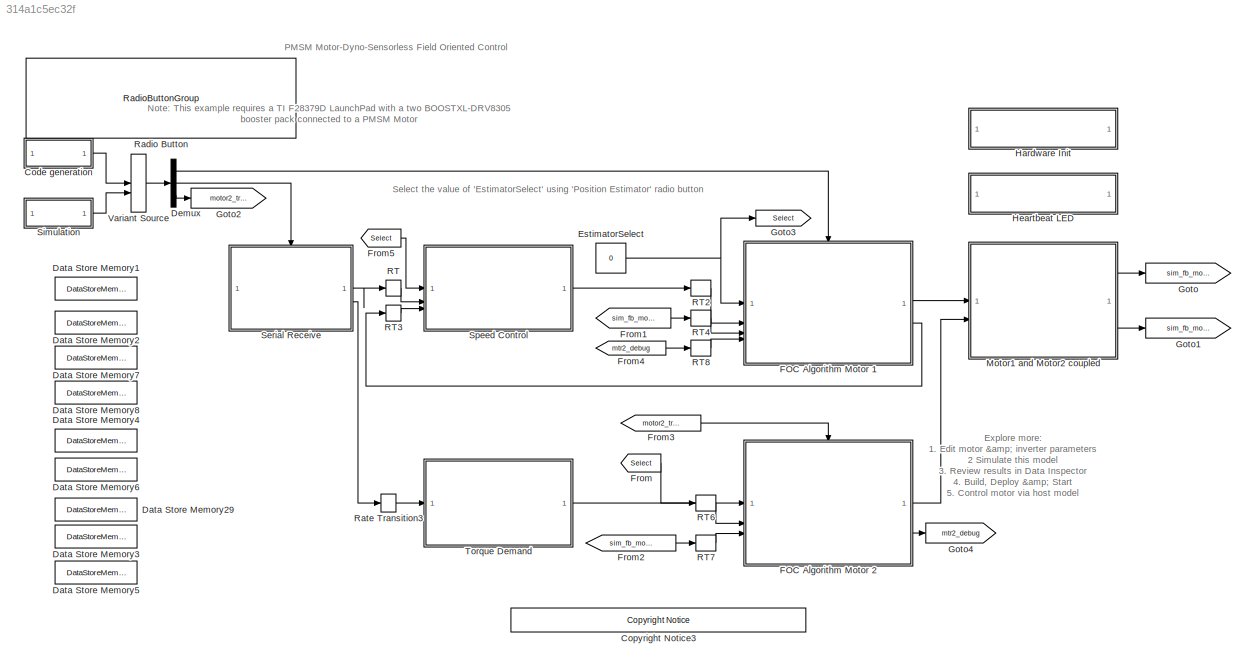
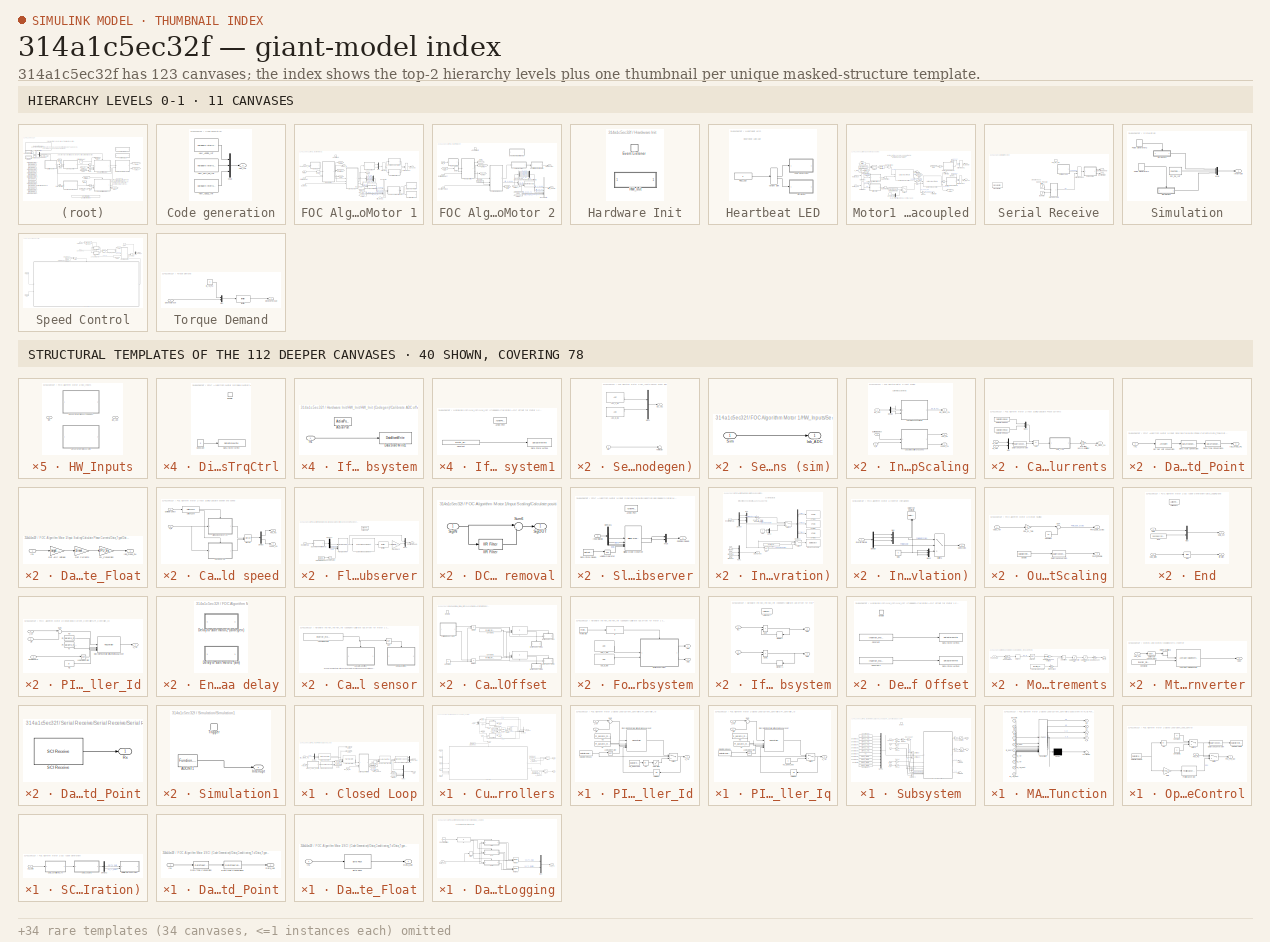
[diagram: thumbnail index - top-2 hierarchy levels (11 canvases) + 40 structural-template representatives of the remaining 112 canvases]
MODEL slx_314a1c5ec32f
KIND model
CONFIG AbsTol = auto
CONFIG EnableMultiTasking = on
CONFIG FixedStep = auto
CONFIG InitFcn = mcb_pmsm_foc_sensorless_dyno_f28379d_datascript;
CONFIG MaxStep = auto
CONFIG MinStep = auto
CONFIG RelTol = 1e-3
CONFIG SampleTimeConstraint = Unconstrained
CONFIG SolverName = FixedStepDiscrete
CONFIG StartTime = 0.0
CONFIG StopTime = 6
WORKSPACE source: mxarray member
WORKSPACE encoderResolution = 2000
WORKSPACE hallOffset = '0.5'
WORKSPACE indexOffset = 850
WORKSPACE polePairs = '4'
BLOCK [SubSystem] Code generation
BLOCK [Reference] Code generation/HWI_ADCB1_INT  REF=svdschedulerlib/Hardware Interrupt v2
  LibrarySourceBlock = c2000lib/Scheduling/Hardware Interrupt
  SourceBlock = svdschedulerlib/Hardware Interrupt v2
  SourceType = HardwareInterrupt
  UserDataPersistent = on
BLOCK [Reference] Code generation/HWI_ADCC1_INT  REF=svdschedulerlib/Hardware Interrupt v2
  LibrarySourceBlock = c2000lib/Scheduling/Hardware Interrupt
  SourceBlock = svdschedulerlib/Hardware Interrupt v2
  SourceType = HardwareInterrupt
  UserDataPersistent = on
BLOCK [Reference] Code generation/HWI_SCIA_RX_INT  REF=svdschedulerlib/Hardware Interrupt v2
  LibrarySourceBlock = c2000lib/Scheduling/Hardware Interrupt
  SourceBlock = svdschedulerlib/Hardware Interrupt v2
  SourceType = HardwareInterrupt
  UserDataPersistent = on
BLOCK [Outport] Code generation/HW_INT
BLOCK [Mux] Code generation/Mux
  DisplayOption = bar
  Inputs = 3
BLOCK [Reference] <copyright redacted>
  SourceBlock = demo_controls/<copyright redacted>
  SourceType = <copyright redacted>
BLOCK [DataStoreMemory] Data Store Memory1
  DataStoreName = IaOffset_motor1
  InitialValue = inverter_motor1.CtSensAOffset
  OutDataTypeStr = uint16
  ReadBeforeWriteMsg = warning
  ShowAdditionalParam = off
  WriteAfterReadMsg = warning
  WriteAfterWriteMsg = warning
BLOCK [DataStoreMemory] Data Store Memory2
  DataStoreName = IbOffset_motor1
  InitialValue = inverter_motor1.CtSensBOffset
  OutDataTypeStr = uint16
  ReadBeforeWriteMsg = warning
  ShowAdditionalParam = off
  WriteAfterReadMsg = warning
  WriteAfterWriteMsg = warning
BLOCK [DataStoreMemory] Data Store Memory29
  DataStoreName = Enable
  OutDataTypeStr = boolean
  ReadBeforeWriteMsg = warning
  ShowAdditionalParam = off
  WriteAfterReadMsg = warning
  WriteAfterWriteMsg = warning
BLOCK [DataStoreMemory] Data Store Memory3
  DataStoreName = EnClosedLoop
  OutDataTypeStr = boolean
  ReadBeforeWriteMsg = warning
  ShowAdditionalParam = off
  WriteAfterReadMsg = warning
  WriteAfterWriteMsg = warning
BLOCK [DataStoreMemory] Data Store Memory4
  DataStoreName = SpeedRef
  InitialValue = 0.1
  ShowAdditionalParam = off
BLOCK [DataStoreMemory] Data Store Memory5
  DataStoreName = EnMtr2TrqCtrl
  OutDataTypeStr = boolean
  ReadBeforeWriteMsg = warning
  ShowAdditionalParam = off
  WriteAfterReadMsg = warning
  WriteAfterWriteMsg = warning
BLOCK [DataStoreMemory] Data Store Memory6
  DataStoreName = Debug_signals
  InitialValue = 5
  OutDataTypeStr = uint16
  ReadBeforeWriteMsg = warning
  ShowAdditionalParam = off
  WriteAfterReadMsg = warning
  WriteAfterWriteMsg = warning
BLOCK [DataStoreMemory] Data Store Memory7
  DataStoreName = IbOffset_motor2
  InitialValue = inverter_motor2.CtSensBOffset
  OutDataTypeStr = uint16
  ReadBeforeWriteMsg = warning
  ShowAdditionalParam = off
  WriteAfterReadMsg = warning
  WriteAfterWriteMsg = warning
BLOCK [DataStoreMemory] Data Store Memory8
  DataStoreName = IaOffset_motor2
  InitialValue = inverter_motor2.CtSensBOffset
  OutDataTypeStr = uint16
  ReadBeforeWriteMsg = warning
  ShowAdditionalParam = off
  WriteAfterReadMsg = warning
  WriteAfterWriteMsg = warning
BLOCK [Demux] Demux
  Outputs = 3
BLOCK [Constant] EstimatorSelect
  Value = 0
BLOCK [SubSystem] FOC Algorithm Motor 1
  RTWMemSecFuncExecute = code_ramfuncs
  RTWSystemCode = Nonreusable function
BLOCK [TriggerPort] FOC Algorithm Motor 1/ADC Interrupt1
  PortDimensions = 1
  StatesWhenEnabling = held
  TriggerType = function-call
  VariantControl = Variant
BLOCK [BusCreator] FOC Algorithm Motor 1/Bus Creator
  DisplayOption = bar
  InheritFromInputs = on
  Inputs = 6
BLOCK [BusSelector] FOC Algorithm Motor 1/Bus Selector
  OutputSignals = Id_fb,Iq_fb
BLOCK [BusSelector] FOC Algorithm Motor 1/Bus Selector1
  OutputSignals = Id_Ref,Id_fb,Vd_ref,Iq_Ref,Iq_fb,Vq_ref
BLOCK [SubSystem] FOC Algorithm Motor 1/Closed Loop
BLOCK [Reference] FOC Algorithm Motor 1/Closed Loop/Clarke Transform  REF=mcbcontrolslib/Clarke Transform
  SourceBlock = mcbcontrolslib/Clarke Transform
  SourceType = Clarke Transform
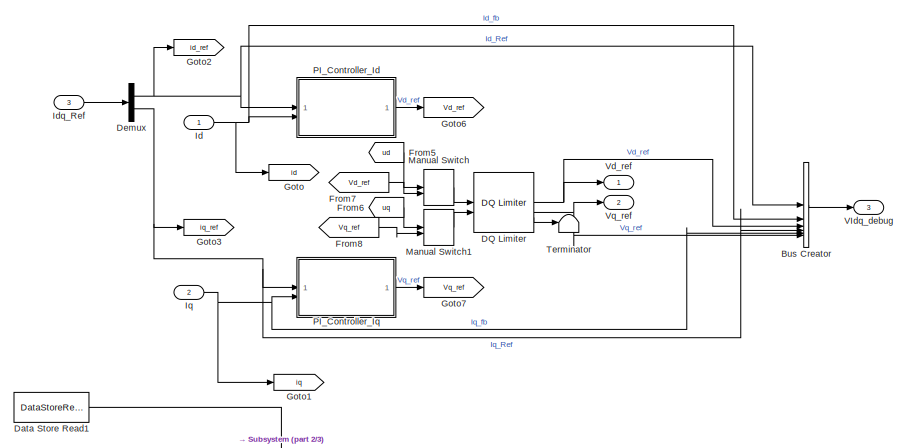
[diagram: FOC Algorithm Motor 1/Closed Loop/Current_Controllers - part 1/3, top center region]
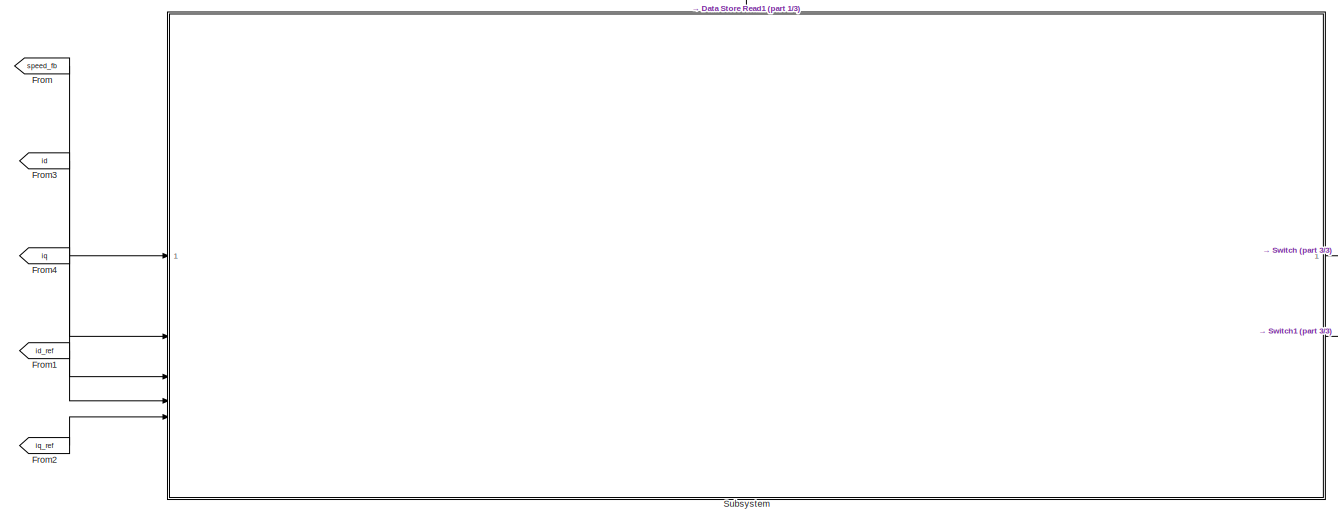
[diagram: FOC Algorithm Motor 1/Closed Loop/Current_Controllers - part 2/3, full width, bottom band]
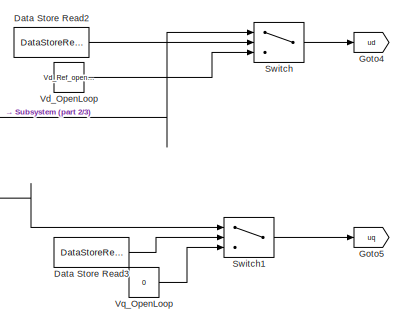
[diagram: FOC Algorithm Motor 1/Closed Loop/Current_Controllers - part 3/3, bottom right region]
BLOCK [SubSystem] FOC Algorithm Motor 1/Closed Loop/Current_Controllers
BLOCK [BusCreator] FOC Algorithm Motor 1/Closed Loop/Current_Controllers/Bus Creator
  DisplayOption = bar
  InheritFromInputs = on
  Inputs = 6
BLOCK [Reference] FOC Algorithm Motor 1/Closed Loop/Current_Controllers/DQ Limiter  REF=mcbcontrolslib/DQ Limiter
  SourceBlock = mcbcontrolslib/DQ Limiter
  SourceType = DQ Limiter
BLOCK [DataStoreRead] FOC Algorithm Motor 1/Closed Loop/Current_Controllers/Data Store Read1
  DataStoreName = EnClosedLoop
  IndexOptions = Index vector (dialog)
  Indices = 1
  OutputSizes = 1
BLOCK [DataStoreRead] FOC Algorithm Motor 1/Closed Loop/Current_Controllers/Data Store Read2
  DataStoreName = EnClosedLoop
  IndexOptions = Index vector (dialog)
  Indices = 1
  OutputSizes = 1
BLOCK [DataStoreRead] FOC Algorithm Motor 1/Closed Loop/Current_Controllers/Data Store Read3
  DataStoreName = EnClosedLoop
  IndexOptions = Index vector (dialog)
  Indices = 1
  OutputSizes = 1
BLOCK [Demux] FOC Algorithm Motor 1/Closed Loop/Current_Controllers/Demux
  Outputs = 2
BLOCK [From] FOC Algorithm Motor 1/Closed Loop/Current_Controllers/From
  GotoTag = speed_fb
  TagVisibility = global
BLOCK [From] FOC Algorithm Motor 1/Closed Loop/Current_Controllers/From1
  GotoTag = id_ref
BLOCK [From] FOC Algorithm Motor 1/Closed Loop/Current_Controllers/From2
  GotoTag = iq_ref
BLOCK [From] FOC Algorithm Motor 1/Closed Loop/Current_Controllers/From3
  GotoTag = id
BLOCK [From] FOC Algorithm Motor 1/Closed Loop/Current_Controllers/From4
  GotoTag = iq
BLOCK [From] FOC Algorithm Motor 1/Closed Loop/Current_Controllers/From5
  GotoTag = ud
BLOCK [From] FOC Algorithm Motor 1/Closed Loop/Current_Controllers/From6
  GotoTag = uq
BLOCK [From] FOC Algorithm Motor 1/Closed Loop/Current_Controllers/From7
  GotoTag = Vd_ref
BLOCK [From] FOC Algorithm Motor 1/Closed Loop/Current_Controllers/From8
  GotoTag = Vq_ref
BLOCK [Goto] FOC Algorithm Motor 1/Closed Loop/Current_Controllers/Goto
  GotoTag = id
BLOCK [Goto] FOC Algorithm Motor 1/Closed Loop/Current_Controllers/Goto1
  GotoTag = iq
BLOCK [Goto] FOC Algorithm Motor 1/Closed Loop/Current_Controllers/Goto2
  GotoTag = id_ref
BLOCK [Goto] FOC Algorithm Motor 1/Closed Loop/Current_Controllers/Goto3
  GotoTag = iq_ref
BLOCK [Goto] FOC Algorithm Motor 1/Closed Loop/Current_Controllers/Goto4
  GotoTag = ud
BLOCK [Goto] FOC Algorithm Motor 1/Closed Loop/Current_Controllers/Goto5
  GotoTag = uq
BLOCK [Goto] FOC Algorithm Motor 1/Closed Loop/Current_Controllers/Goto6
  GotoTag = Vd_ref
BLOCK [Goto] FOC Algorithm Motor 1/Closed Loop/Current_Controllers/Goto7
  GotoTag = Vq_ref
BLOCK [Inport] FOC Algorithm Motor 1/Closed Loop/Current_Controllers/Id
BLOCK [Inport] FOC Algorithm Motor 1/Closed Loop/Current_Controllers/Idq_Ref
  Port = 3
BLOCK [Inport] FOC Algorithm Motor 1/Closed Loop/Current_Controllers/Iq
  Port = 2
BLOCK [ManualSwitch] FOC Algorithm Motor 1/Closed Loop/Current_Controllers/Manual Switch
BLOCK [ManualSwitch] FOC Algorithm Motor 1/Closed Loop/Current_Controllers/Manual Switch1
BLOCK [SubSystem] FOC Algorithm Motor 1/Closed Loop/Current_Controllers/PI_Controller_Id
  NameLocation = top
BLOCK [Abs] FOC Algorithm Motor 1/Closed Loop/Current_Controllers/PI_Controller_Id/Abs
  RndMeth = Simplest
  SaturateOnIntegerOverflow = off
BLOCK [DataStoreRead] FOC Algorithm Motor 1/Closed Loop/Current_Controllers/PI_Controller_Id/Data Store Read1
  DataStoreName = EnClosedLoop
  IndexOptions = Index vector (dialog)
  Indices = 1
  OutputSizes = 1
BLOCK [Reference] FOC Algorithm Motor 1/Closed Loop/Current_Controllers/PI_Controller_Id/Discrete PI Controller with anti-windup & reset  REF=slpidlib/PID Controller
  SourceBlock = slpidlib/PID Controller
  SourceType = PID 1dof
BLOCK [Inport] FOC Algorithm Motor 1/Closed Loop/Current_Controllers/PI_Controller_Id/I_fb
  Port = 2
BLOCK [Inport] FOC Algorithm Motor 1/Closed Loop/Current_Controllers/PI_Controller_Id/I_ref
BLOCK [Constant] FOC Algorithm Motor 1/Closed Loop/Current_Controllers/PI_Controller_Id/Ki
  OutDataTypeStr = dataType
  SampleTime = -1
  Value = PI_params_motor1.Ki_i*Ts
BLOCK [Constant] FOC Algorithm Motor 1/Closed Loop/Current_Controllers/PI_Controller_Id/Kp
  NameLocation = top
  OutDataTypeStr = dataType
  SampleTime = -1
  Value = PI_params_motor1.Kp_i
BLOCK [Logic] FOC Algorithm Motor 1/Closed Loop/Current_Controllers/PI_Controller_Id/Logical Operator
  AllPortsSameDT = off
  IconShape = distinctive
  Operator = NOT
  OutDataTypeStr = boolean
BLOCK [Saturate] FOC Algorithm Motor 1/Closed Loop/Current_Controllers/PI_Controller_Id/Saturation
  LowerLimit = 0.15
  RndMeth = Simplest
BLOCK [Sum] FOC Algorithm Motor 1/Closed Loop/Current_Controllers/PI_Controller_Id/Sum
  AccumDataTypeStr = Inherit: Same as first input
  Inputs = |+-
  OutDataTypeStr = Inherit: Same as first input
BLOCK [Switch] FOC Algorithm Motor 1/Closed Loop/Current_Controllers/PI_Controller_Id/Switch
  Criteria = u2 ~= 0
  InputSameDT = off
  RndMeth = Simplest
  SaturateOnIntegerOverflow = off
BLOCK [UnitDelay] FOC Algorithm Motor 1/Closed Loop/Current_Controllers/PI_Controller_Id/Unit Delay
  HasFrameUpgradeWarning = on
  NameLocation = top
  SampleTime = -1
BLOCK [Outport] FOC Algorithm Motor 1/Closed Loop/Current_Controllers/PI_Controller_Id/V_ref
  VectorParamsAs1DForOutWhenUnconnected = off
BLOCK [DataStoreRead] FOC Algorithm Motor 1/Closed Loop/Current_Controllers/PI_Controller_Id/Vd_OpenLoop
  DataStoreName = SpeedRef
  IndexOptions = Index vector (dialog)
  Indices = 1
  OutputSizes = 1
BLOCK [SubSystem] FOC Algorithm Motor 1/Closed Loop/Current_Controllers/PI_Controller_Iq
  NameLocation = top
BLOCK [DataStoreRead] FOC Algorithm Motor 1/Closed Loop/Current_Controllers/PI_Controller_Iq/Data Store Read1
  DataStoreName = EnClosedLoop
  IndexOptions = Index vector (dialog)
  Indices = 1
  OutputSizes = 1
BLOCK [Reference] FOC Algorithm Motor 1/Closed Loop/Current_Controllers/PI_Controller_Iq/Discrete PI Controller with anti-windup & reset  REF=slpidlib/PID Controller
  SourceBlock = slpidlib/PID Controller
  SourceType = PID 1dof
BLOCK [Inport] FOC Algorithm Motor 1/Closed Loop/Current_Controllers/PI_Controller_Iq/I_fb
  Port = 2
BLOCK [Inport] FOC Algorithm Motor 1/Closed Loop/Current_Controllers/PI_Controller_Iq/I_ref
BLOCK [Constant] FOC Algorithm Motor 1/Closed Loop/Current_Controllers/PI_Controller_Iq/Ki
  OutDataTypeStr = dataType
  SampleTime = -1
  Value = PI_params_motor1.Ki_i*Ts
BLOCK [Constant] FOC Algorithm Motor 1/Closed Loop/Current_Controllers/PI_Controller_Iq/Kp
  NameLocation = top
  OutDataTypeStr = dataType
  SampleTime = -1
  Value = PI_params_motor1.Kp_i
BLOCK [Logic] FOC Algorithm Motor 1/Closed Loop/Current_Controllers/PI_Controller_Iq/Logical Operator
  AllPortsSameDT = off
  IconShape = distinctive
  Operator = NOT
  OutDataTypeStr = boolean
BLOCK [Sum] FOC Algorithm Motor 1/Closed Loop/Current_Controllers/PI_Controller_Iq/Sum
  AccumDataTypeStr = Inherit: Same as first input
  Inputs = |+-
  OutDataTypeStr = Inherit: Same as first input
BLOCK [Switch] FOC Algorithm Motor 1/Closed Loop/Current_Controllers/PI_Controller_Iq/Switch
  Criteria = u2 ~= 0
  InputSameDT = off
  RndMeth = Simplest
  SaturateOnIntegerOverflow = off
BLOCK [UnitDelay] FOC Algorithm Motor 1/Closed Loop/Current_Controllers/PI_Controller_Iq/Unit Delay
  HasFrameUpgradeWarning = on
  NameLocation = top
  SampleTime = -1
BLOCK [Outport] FOC Algorithm Motor 1/Closed Loop/Current_Controllers/PI_Controller_Iq/V_ref
  VectorParamsAs1DForOutWhenUnconnected = off
BLOCK [Constant] FOC Algorithm Motor 1/Closed Loop/Current_Controllers/PI_Controller_Iq/Vq_OpenLoop
  OutDataTypeStr = dataType
  SampleTime = -1
  Value = 0
BLOCK [SubSystem] FOC Algorithm Motor 1/Closed Loop/Current_Controllers/Subsystem
BLOCK [Constant] FOC Algorithm Motor 1/Closed Loop/Current_Controllers/Subsystem/Constant1
  Value = pmsm_motor1.Lq
BLOCK [Constant] FOC Algorithm Motor 1/Closed Loop/Current_Controllers/Subsystem/Constant161
  Value = SlidFCS_params.lamq
BLOCK [Constant] FOC Algorithm Motor 1/Closed Loop/Current_Controllers/Subsystem/Constant163
  Value = SlidFCS_params.ad
BLOCK [Constant] FOC Algorithm Motor 1/Closed Loop/Current_Controllers/Subsystem/Constant164
  Value = SlidFCS_params.aq
BLOCK [Constant] FOC Algorithm Motor 1/Closed Loop/Current_Controllers/Subsystem/Constant165
  Value = SlidFCS_params.rd
BLOCK [Constant] FOC Algorithm Motor 1/Closed Loop/Current_Controllers/Subsystem/Constant166
  Value = SlidFCS_params.rq
BLOCK [Constant] FOC Algorithm Motor 1/Closed Loop/Current_Controllers/Subsystem/Constant167
  Value = Ts
BLOCK [Constant] FOC Algorithm Motor 1/Closed Loop/Current_Controllers/Subsystem/Constant168
  Value = pmsm_motor1.Rs
BLOCK [Constant] FOC Algorithm Motor 1/Closed Loop/Current_Controllers/Subsystem/Constant169
  Value = pmsm_motor1.Ld
BLOCK [Constant] FOC Algorithm Motor 1/Closed Loop/Current_Controllers/Subsystem/Constant170
  Value = pmsm_motor1.FluxPM
BLOCK [Constant] FOC Algorithm Motor 1/Closed Loop/Current_Controllers/Subsystem/Constant181
  Value = SlidFCS_params.lamd
BLOCK [EnablePort] FOC Algorithm Motor 1/Closed Loop/Current_Controllers/Subsystem/Enable
BLOCK [SubSystem] FOC Algorithm Motor 1/Closed Loop/Current_Controllers/Subsystem/MATLAB Function
  ErrorFcn = Stateflow.Translate.translate
  PermitHierarchicalResolution = ExplicitOnly
  SFBlockType = MATLAB Function
  TreatAsAtomicUnit = on
BLOCK [Demux] FOC Algorithm Motor 1/Closed Loop/Current_Controllers/Subsystem/MATLAB Function/ Demux 
  Outputs = 1
BLOCK [S-Function] FOC Algorithm Motor 1/Closed Loop/Current_Controllers/Subsystem/MATLAB Function/ SFunction 
  EnableBusSupport = on
  FunctionName = sf_sfun
  PortCounts = [10 5]
  SFcnIsStateOwnerBlock = off
  SFunctionDeploymentMode = off
  Tag = Stateflow S-Function 11
BLOCK [Terminator] FOC Algorithm Motor 1/Closed Loop/Current_Controllers/Subsystem/MATLAB Function/ Terminator 
BLOCK [Inport] FOC Algorithm Motor 1/Closed Loop/Current_Controllers/Subsystem/MATLAB Function/id
  Port = 3
BLOCK [Inport] FOC Algorithm Motor 1/Closed Loop/Current_Controllers/Subsystem/MATLAB Function/id_past
  Port = 5
BLOCK [Inport] FOC Algorithm Motor 1/Closed Loop/Current_Controllers/Subsystem/MATLAB Function/id_ref
  Port = 7
BLOCK [Inport] FOC Algorithm Motor 1/Closed Loop/Current_Controllers/Subsystem/MATLAB Function/id_ref_past
  Port = 9
BLOCK [Inport] FOC Algorithm Motor 1/Closed Loop/Current_Controllers/Subsystem/MATLAB Function/iq
  Port = 4
BLOCK [Inport] FOC Algorithm Motor 1/Closed Loop/Current_Controllers/Subsystem/MATLAB Function/iq_past
  Port = 6
BLOCK [Inport] FOC Algorithm Motor 1/Closed Loop/Current_Controllers/Subsystem/MATLAB Function/iq_ref
  Port = 8
BLOCK [Inport] FOC Algorithm Motor 1/Closed Loop/Current_Controllers/Subsystem/MATLAB Function/iq_ref_past
  Port = 10
BLOCK [Inport] FOC Algorithm Motor 1/Closed Loop/Current_Controllers/Subsystem/MATLAB Function/params
BLOCK [Outport] FOC Algorithm Motor 1/Closed Loop/Current_Controllers/Subsystem/MATLAB Function/s_d
  Port = 3
BLOCK [Outport] FOC Algorithm Motor 1/Closed Loop/Current_Controllers/Subsystem/MATLAB Function/s_q
  Port = 4
BLOCK [Outport] FOC Algorithm Motor 1/Closed Loop/Current_Controllers/Subsystem/MATLAB Function/ud
BLOCK [Outport] FOC Algorithm Motor 1/Closed Loop/Current_Controllers/Subsystem/MATLAB Function/uq
  Port = 2
BLOCK [Inport] FOC Algorithm Motor 1/Closed Loop/Current_Controllers/Subsystem/MATLAB Function/we
  Port = 2
BLOCK [Mux] FOC Algorithm Motor 1/Closed Loop/Current_Controllers/Subsystem/Mux10
  DisplayOption = bar
  Inputs = 11
BLOCK [Gain] FOC Algorithm Motor 1/Closed Loop/Current_Controllers/Subsystem/PU2A
  Gain = PU_System_motor1.I_base
  OutDataTypeStr = Inherit: Same as input
  RndMeth = Simplest
BLOCK [Gain] FOC Algorithm Motor 1/Closed Loop/Current_Controllers/Subsystem/PU2A1
  Gain = PU_System_motor1.I_base
  OutDataTypeStr = Inherit: Same as input
  RndMeth = Simplest
BLOCK [Gain] FOC Algorithm Motor 1/Closed Loop/Current_Controllers/Subsystem/PU2A2
  Gain = PU_System_motor1.I_base
  OutDataTypeStr = Inherit: Same as input
  RndMeth = Simplest
BLOCK [Gain] FOC Algorithm Motor 1/Closed Loop/Current_Controllers/Subsystem/PU2A3
  Gain = PU_System_motor1.I_base
  OutDataTypeStr = Inherit: Same as input
  RndMeth = Simplest
BLOCK [Gain] FOC Algorithm Motor 1/Closed Loop/Current_Controllers/Subsystem/PU2rpm
  Gain = PU_System_motor1.N_base
  OutDataTypeStr = Inherit: Same as input
  RndMeth = Simplest
BLOCK [Saturate] FOC Algorithm Motor 1/Closed Loop/Current_Controllers/Subsystem/Saturation
  LowerLimit = -1
  UpperLimit = 1
BLOCK [Saturate] FOC Algorithm Motor 1/Closed Loop/Current_Controllers/Subsystem/Saturation1
  LowerLimit = -1
  UpperLimit = 1
BLOCK [Terminator] FOC Algorithm Motor 1/Closed Loop/Current_Controllers/Subsystem/Terminator1
BLOCK [Terminator] FOC Algorithm Motor 1/Closed Loop/Current_Controllers/Subsystem/Terminator2
BLOCK [UnitDelay] FOC Algorithm Motor 1/Closed Loop/Current_Controllers/Subsystem/Unit Delay
  HasFrameUpgradeWarning = on
  SampleTime = -1
BLOCK [UnitDelay] FOC Algorithm Motor 1/Closed Loop/Current_Controllers/Subsystem/Unit Delay1
  HasFrameUpgradeWarning = on
  SampleTime = -1
BLOCK [UnitDelay] FOC Algorithm Motor 1/Closed Loop/Current_Controllers/Subsystem/Unit Delay2
  HasFrameUpgradeWarning = on
  SampleTime = -1
BLOCK [UnitDelay] FOC Algorithm Motor 1/Closed Loop/Current_Controllers/Subsystem/Unit Delay3
  HasFrameUpgradeWarning = on
  SampleTime = -1
BLOCK [Gain] FOC Algorithm Motor 1/Closed Loop/Current_Controllers/Subsystem/V2PU
  Gain = 1/PU_System_motor1.V_base
  OutDataTypeStr = Inherit: Same as input
  RndMeth = Simplest
BLOCK [Gain] FOC Algorithm Motor 1/Closed Loop/Current_Controllers/Subsystem/V2PU1
  Gain = 1/PU_System_motor1.V_base
  OutDataTypeStr = Inherit: Same as input
  RndMeth = Simplest
BLOCK [Inport] FOC Algorithm Motor 1/Closed Loop/Current_Controllers/Subsystem/id
  Port = 2
BLOCK [Inport] FOC Algorithm Motor 1/Closed Loop/Current_Controllers/Subsystem/id_ref
  Port = 4
BLOCK [Inport] FOC Algorithm Motor 1/Closed Loop/Current_Controllers/Subsystem/iq
  Port = 3
BLOCK [Inport] FOC Algorithm Motor 1/Closed Loop/Current_Controllers/Subsystem/iq_ref
  Port = 5
BLOCK [Gain] FOC Algorithm Motor 1/Closed Loop/Current_Controllers/Subsystem/mech2elect
  Gain = pmsm_motor1.p
BLOCK [Gain] FOC Algorithm Motor 1/Closed Loop/Current_Controllers/Subsystem/rpm2rad
  Gain = pi/30
  OutDataTypeStr = Inherit: Same as input
  RndMeth = Simplest
BLOCK [Inport] FOC Algorithm Motor 1/Closed Loop/Current_Controllers/Subsystem/speed_fb
BLOCK [Outport] FOC Algorithm Motor 1/Closed Loop/Current_Controllers/Subsystem/ud
BLOCK [Outport] FOC Algorithm Motor 1/Closed Loop/Current_Controllers/Subsystem/uq
  Port = 2
BLOCK [Switch] FOC Algorithm Motor 1/Closed Loop/Current_Controllers/Switch
  Criteria = u2 ~= 0
  InputSameDT = off
  RndMeth = Simplest
  SaturateOnIntegerOverflow = off
BLOCK [Switch] FOC Algorithm Motor 1/Closed Loop/Current_Controllers/Switch1
  Criteria = u2 ~= 0
  InputSameDT = off
  RndMeth = Simplest
  SaturateOnIntegerOverflow = off
BLOCK [Terminator] FOC Algorithm Motor 1/Closed Loop/Current_Controllers/Terminator
BLOCK [Outport] FOC Algorithm Motor 1/Closed Loop/Current_Controllers/VIdq_debug
  Port = 3
  VectorParamsAs1DForOutWhenUnconnected = off
BLOCK [Constant] FOC Algorithm Motor 1/Closed Loop/Current_Controllers/Vd_OpenLoop
  OutDataTypeStr = dataType
  SampleTime = -1
  Value = Vd_Ref_openLoop_PU
BLOCK [Outport] FOC Algorithm Motor 1/Closed Loop/Current_Controllers/Vd_ref
  NameLocation = top
  VectorParamsAs1DForOutWhenUnconnected = off
BLOCK [Constant] FOC Algorithm Motor 1/Closed Loop/Current_Controllers/Vq_OpenLoop
  OutDataTypeStr = dataType
  SampleTime = -1
  Value = 0
BLOCK [Outport] FOC Algorithm Motor 1/Closed Loop/Current_Controllers/Vq_ref
  Port = 2
  VectorParamsAs1DForOutWhenUnconnected = off
BLOCK [Demux] FOC Algorithm Motor 1/Closed Loop/Demux
  Outputs = 2
BLOCK [Outport] FOC Algorithm Motor 1/Closed Loop/Duty Cycles
  VectorParamsAs1DForOutWhenUnconnected = off
BLOCK [From] FOC Algorithm Motor 1/Closed Loop/From
  GotoTag = sinTheta
BLOCK [From] FOC Algorithm Motor 1/Closed Loop/From1
  GotoTag = cosTheta
BLOCK [From] FOC Algorithm Motor 1/Closed Loop/From4
  GotoTag = I_alpha
BLOCK [From] FOC Algorithm Motor 1/Closed Loop/From5
  GotoTag = I_beta
BLOCK [Goto] FOC Algorithm Motor 1/Closed Loop/Goto
  GotoTag = sinTheta
BLOCK [Goto] FOC Algorithm Motor 1/Closed Loop/Goto1
  GotoTag = cosTheta
BLOCK [Goto] FOC Algorithm Motor 1/Closed Loop/Goto2
  GotoTag = I_alpha
BLOCK [Goto] FOC Algorithm Motor 1/Closed Loop/Goto3
  GotoTag = I_beta
BLOCK [Inport] FOC Algorithm Motor 1/Closed Loop/Iab_meas_PU
BLOCK [Inport] FOC Algorithm Motor 1/Closed Loop/Idq_ref_PU
  Port = 3
BLOCK [Reference] FOC Algorithm Motor 1/Closed Loop/Inverse Park Transform  REF=mcbcontrolslib/Inverse Park Transform
  SourceBlock = mcbcontrolslib/Inverse Park Transform
  SourceType = Inverse Park Transform
BLOCK [Mux] FOC Algorithm Motor 1/Closed Loop/Mux1
  DisplayOption = bar
  Inputs = 3
BLOCK [Mux] FOC Algorithm Motor 1/Closed Loop/Mux2
  DisplayOption = bar
BLOCK [SubSystem] FOC Algorithm Motor 1/Closed Loop/Open_Loop_Control
BLOCK [Abs] FOC Algorithm Motor 1/Closed Loop/Open_Loop_Control/Abs
  SaturateOnIntegerOverflow = off
BLOCK [Constant] FOC Algorithm Motor 1/Closed Loop/Open_Loop_Control/Constant
  OutDataTypeStr = uint16
BLOCK [Constant] FOC Algorithm Motor 1/Closed Loop/Open_Loop_Control/Constant1
  OutDataTypeStr = uint16
  Value = 0
BLOCK [DataStoreRead] FOC Algorithm Motor 1/Closed Loop/Open_Loop_Control/Data Store Read
  DataStoreName = SpeedRef
  IndexOptions = Index vector (dialog)
  Indices = 1
  OutputSizes = 1
BLOCK [DataStoreWrite] FOC Algorithm Motor 1/Closed Loop/Open_Loop_Control/Data Store Write
  DataStoreName = EnClosedLoop
  IndexOptions = Index vector (dialog)
  Indices = 1
  OutputSizes = 1
BLOCK [DataTypeConversion] FOC Algorithm Motor 1/Closed Loop/Open_Loop_Control/Data Type Conversion
  OutDataTypeStr = boolean
  RndMeth = Simplest
  SaturateOnIntegerOverflow = off
BLOCK [Gain] FOC Algorithm Motor 1/Closed Loop/Open_Loop_Control/Gain
  Gain = Ts*PU_System_motor1.N_base*pmsm_motor1.p/60
  OutDataTypeStr = Inherit: Same as input
  ParamDataTypeStr = Inherit: Same as input
BLOCK [Inport] FOC Algorithm Motor 1/Closed Loop/Open_Loop_Control/Pos_PU
BLOCK [Outport] FOC Algorithm Motor 1/Closed Loop/Open_Loop_Control/Pos_PU_Out
BLOCK [Reference] FOC Algorithm Motor 1/Closed Loop/Open_Loop_Control/Position Generator  REF=mcbcontrolslib/Position Generator
  SourceBlock = mcbcontrolslib/Position Generator
  SourceType = Position Generator
BLOCK [Switch] FOC Algorithm Motor 1/Closed Loop/Open_Loop_Control/Switch
  Criteria = u2 ~= 0
  InputSameDT = off
  SaturateOnIntegerOverflow = off
  Threshold = 0.1
BLOCK [Switch] FOC Algorithm Motor 1/Closed Loop/Open_Loop_Control/Switch2
  Criteria = u2 > Threshold
  InputSameDT = off
  SaturateOnIntegerOverflow = off
  Threshold = Speed_openLoop_PU
BLOCK [Reference] FOC Algorithm Motor 1/Closed Loop/Park Transform  REF=mcbcontrolslib/Park Transform
  SourceBlock = mcbcontrolslib/Park Transform
  SourceType = Park Transform
BLOCK [Inport] FOC Algorithm Motor 1/Closed Loop/Pos_PU
  Port = 2
BLOCK [Reference] FOC Algorithm Motor 1/Closed Loop/Sine-Cosine Lookup  REF=mcbcontrolslib/SinCos Embedded Optimized
  SourceBlock = mcbcontrolslib/SinCos Embedded Optimized
  SourceType = SinCos Embedded Optimized
BLOCK [Reference] FOC Algorithm Motor 1/Closed Loop/Space Vector Generator  REF=mcbcontrolslib/PWM Reference Generator
  SourceBlock = mcbcontrolslib/PWM Reference Generator
  SourceType = PWM Modulation
BLOCK [Outport] FOC Algorithm Motor 1/Closed Loop/VI_fb
  Port = 2
  VectorParamsAs1DForOutWhenUnconnected = off
BLOCK [Outport] FOC Algorithm Motor 1/Closed Loop/VIdq_debug
  Port = 3
  VectorParamsAs1DForOutWhenUnconnected = off
BLOCK [Delay] FOC Algorithm Motor 1/Delay5
  DelayLength = 1
  InputPortMap = u0
BLOCK [Outport] FOC Algorithm Motor 1/Duty Cycles
  InitialOutput = 0
  VectorParamsAs1DForOutWhenUnconnected = off
BLOCK [Inport] FOC Algorithm Motor 1/EstimatorSelect
BLOCK [Inport] FOC Algorithm Motor 1/Feedbacks_sim
  Port = 3
BLOCK [From] FOC Algorithm Motor 1/From1
  GotoTag = speed_fb
  TagVisibility = global
BLOCK [From] FOC Algorithm Motor 1/From2
  GotoTag = Iab_meas_PU
BLOCK [From] FOC Algorithm Motor 1/From3
  GotoTag = VI_fb
BLOCK [From] FOC Algorithm Motor 1/From4
  GotoTag = Pos_PU
BLOCK [Goto] FOC Algorithm Motor 1/Goto
  GotoTag = speed_fb
  TagVisibility = global
BLOCK [Goto] FOC Algorithm Motor 1/Goto1
  GotoTag = Iab_meas_PU
BLOCK [Goto] FOC Algorithm Motor 1/Goto2
  GotoTag = Pos_PU
BLOCK [Goto] FOC Algorithm Motor 1/Goto3
  GotoTag = VI_fb
BLOCK [SubSystem] FOC Algorithm Motor 1/HW_Inputs
  Variant = on
  VariantControlMode = sim codegen switching
BLOCK [Outport] FOC Algorithm Motor 1/HW_Inputs/Iab_ADC
BLOCK [SubSystem] FOC Algorithm Motor 1/HW_Inputs/Sensor Driver Blocks (codegen)
  VariantControl = (codegen)
BLOCK [Reference] FOC Algorithm Motor 1/HW_Inputs/Sensor Driver Blocks (codegen)/ADC_B_IN2  REF=c2802xlib/ADC
  SourceBlock = c2802xlib/ADC
  SourceType = ADC Type 3-5
  UserDataPersistent = on
BLOCK [Reference] FOC Algorithm Motor 1/HW_Inputs/Sensor Driver Blocks (codegen)/ADC_C_IN2  REF=c2802xlib/ADC
  SourceBlock = c2802xlib/ADC
  SourceType = ADC Type 3-5
  UserDataPersistent = on
BLOCK [Outport] FOC Algorithm Motor 1/HW_Inputs/Sensor Driver Blocks (codegen)/Iab_ADC
BLOCK [Mux] FOC Algorithm Motor 1/HW_Inputs/Sensor Driver Blocks (codegen)/Mux1
  DisplayOption = bar
  Inputs = 2
BLOCK [Inport] FOC Algorithm Motor 1/HW_Inputs/Sensor Driver Blocks (codegen)/Sim
BLOCK [Terminator] FOC Algorithm Motor 1/HW_Inputs/Sensor Driver Blocks (codegen)/Terminator
BLOCK [SubSystem] FOC Algorithm Motor 1/HW_Inputs/Sensor Driver Blocks (sim)
  VariantControl = (sim)
BLOCK [Outport] FOC Algorithm Motor 1/HW_Inputs/Sensor Driver Blocks (sim)/Iab_ADC
BLOCK [Inport] FOC Algorithm Motor 1/HW_Inputs/Sensor Driver Blocks (sim)/Sim
BLOCK [Inport] FOC Algorithm Motor 1/HW_Inputs/Sim
BLOCK [Inport] FOC Algorithm Motor 1/Idq_ref_PU
  Port = 2
BLOCK [SubSystem] FOC Algorithm Motor 1/Input Scaling
BLOCK [SubSystem] FOC Algorithm Motor 1/Input Scaling/Calculate Phase Currents
BLOCK [Sum] FOC Algorithm Motor 1/Input Scaling/Calculate Phase Currents/Add
  IconShape = rectangular
  Inputs = -+
BLOCK [DataStoreRead] FOC Algorithm Motor 1/Input Scaling/Calculate Phase Currents/Data Store Read1
  DataStoreName = IaOffset_motor1
  IndexOptions = Index vector (dialog)
  Indices = 1
  OutputSizes = 1
BLOCK [DataStoreRead] FOC Algorithm Motor 1/Input Scaling/Calculate Phase Currents/Data Store Read2
  DataStoreName = IbOffset_motor1
  IndexOptions = Index vector (dialog)
  Indices = 1
  OutputSizes = 1
BLOCK [DataTypeConversion] FOC Algorithm Motor 1/Input Scaling/Calculate Phase Currents/Data Type Conversion
  ConvertRealWorld = Stored Integer (SI)
  OutDataTypeStr = int32
  RndMeth = Simplest
  SaturateOnIntegerOverflow = off
BLOCK [SubSystem] FOC Algorithm Motor 1/Input Scaling/Calculate Phase Currents/Data_Type
  Variant = on
BLOCK [SubSystem] FOC Algorithm Motor 1/Input Scaling/Calculate Phase Currents/Data_Type/Data_Type_Fixed_Point
  VariantControl = ~isequal(dataType,'single')
BLOCK [DataTypeConversion] FOC Algorithm Motor 1/Input Scaling/Calculate Phase Currents/Data_Type/Data_Type_Fixed_Point/Data Type Conversion
  ConvertRealWorld = Stored Integer (SI)
  OutDataTypeStr = fixdt(1,32,17)
  RndMeth = Simplest
  SaturateOnIntegerOverflow = off
BLOCK [DataTypeConversion] FOC Algorithm Motor 1/Input Scaling/Calculate Phase Currents/Data_Type/Data_Type_Fixed_Point/Data Type Conversion1
  OutDataTypeStr = dataType
  RndMeth = Simplest
  SaturateOnIntegerOverflow = off
BLOCK [Outport] FOC Algorithm Motor 1/Input Scaling/Calculate Phase Currents/Data_Type/Data_Type_Fixed_Point/Iab_meas_PU
BLOCK [Inport] FOC Algorithm Motor 1/Input Scaling/Calculate Phase Currents/Data_Type/Data_Type_Fixed_Point/In1
BLOCK [ArithShift] FOC Algorithm Motor 1/Input Scaling/Calculate Phase Currents/Data_Type/Data_Type_Fixed_Point/Q17 per unit conversion
  BitShiftNumber = -6
  InputPortMap = u0
BLOCK [SubSystem] FOC Algorithm Motor 1/Input Scaling/Calculate Phase Currents/Data_Type/Data_Type_Float
  VariantControl = isequal(dataType,'single')
BLOCK [Gain] FOC Algorithm Motor 1/Input Scaling/Calculate Phase Currents/Data_Type/Data_Type_Float/Get ADC Voltage
  Gain = target.ADC_Vref /target.ADC_MaxCount
  OutDataTypeStr = dataType
  RndMeth = Simplest
BLOCK [Gain] FOC Algorithm Motor 1/Input Scaling/Calculate Phase Currents/Data_Type/Data_Type_Float/Get Currents
  Gain = 1/inverter_motor1.ISenseVoltPerAmp
  OutDataTypeStr = Inherit: Same as input
  RndMeth = Simplest
BLOCK [Outport] FOC Algorithm Motor 1/Input Scaling/Calculate Phase Currents/Data_Type/Data_Type_Float/Iab_meas_PU
BLOCK [Inport] FOC Algorithm Motor 1/Input Scaling/Calculate Phase Currents/Data_Type/Data_Type_Float/In1
BLOCK [Gain] FOC Algorithm Motor 1/Input Scaling/Calculate Phase Currents/Data_Type/Data_Type_Float/PU_Conversion
  Gain = 1/PU_System_motor1.I_base
  OutDataTypeStr = Inherit: Same as input
  RndMeth = Simplest
BLOCK [Outport] FOC Algorithm Motor 1/Input Scaling/Calculate Phase Currents/Data_Type/Iab_meas_PU
BLOCK [Inport] FOC Algorithm Motor 1/Input Scaling/Calculate Phase Currents/Data_Type/In1
BLOCK [Inport] FOC Algorithm Motor 1/Input Scaling/Calculate Phase Currents/Ia_ADC
BLOCK [Outport] FOC Algorithm Motor 1/Input Scaling/Calculate Phase Currents/Iab_meas_PU
  VectorParamsAs1DForOutWhenUnconnected = off
BLOCK [Inport] FOC Algorithm Motor 1/Input Scaling/Calculate Phase Currents/Ib_ADC
  Port = 2
BLOCK [Gain] FOC Algorithm Motor 1/Input Scaling/Calculate Phase Currents/Inverting // Non-inverting Current measurement amplifieer
  Gain = inverter_motor1.invertingAmp
  OutDataTypeStr = Inherit: Same as input
  RndMeth = Simplest
BLOCK [Mux] FOC Algorithm Motor 1/Input Scaling/Calculate Phase Currents/Mux
  DisplayOption = bar
  Inputs = 2
BLOCK [Mux] FOC Algorithm Motor 1/Input Scaling/Calculate Phase Currents/Mux1
  DisplayOption = bar
  Inputs = 2
BLOCK [SubSystem] FOC Algorithm Motor 1/Input Scaling/Calculate position and speed
BLOCK [Demux] FOC Algorithm Motor 1/Input Scaling/Calculate position and speed/Demux
  Outputs = 2
BLOCK [Inport] FOC Algorithm Motor 1/Input Scaling/Calculate position and speed/EstimatorSelect
BLOCK [SubSystem] FOC Algorithm Motor 1/Input Scaling/Calculate position and speed/Flux Observer
BLOCK [ActionPort] FOC Algorithm Motor 1/Input Scaling/Calculate position and speed/Flux Observer/Action Port
  ActionPortLabel = case [ 1 ]:
BLOCK [SubSystem] FOC Algorithm Motor 1/Input Scaling/Calculate position and speed/Flux Observer/DC component removal
BLOCK [Reference] FOC Algorithm Motor 1/Input Scaling/Calculate position and speed/Flux Observer/DC component removal/IIR Filter  REF=mcbcontrolslib/IIR Filter
  SourceBlock = mcbcontrolslib/IIR Filter
  SourceType = IIR Filter
BLOCK [Inport] FOC Algorithm Motor 1/Input Scaling/Calculate position and speed/Flux Observer/DC component removal/SigIN
BLOCK [Outport] FOC Algorithm Motor 1/Input Scaling/Calculate position and speed/Flux Observer/DC component removal/SigOUT
BLOCK [Sum] FOC Algorithm Motor 1/Input Scaling/Calculate position and speed/Flux Observer/DC component removal/Sum6
  AccumDataTypeStr = Inherit: Same as first input
  Inputs = |+-
  OutDataTypeStr = Inherit: Same as first input
  RndMeth = Simplest
BLOCK [DataStoreRead] FOC Algorithm Motor 1/Input Scaling/Calculate position and speed/Flux Observer/Data Store Read1
  DataStoreName = Enable
  IndexOptions = Index vector (dialog)
  Indices = 1
  OutputSizes = 1
BLOCK [Demux] FOC Algorithm Motor 1/Input Scaling/Calculate position and speed/Flux Observer/Demux2
BLOCK [Reference] FOC Algorithm Motor 1/Input Scaling/Calculate position and speed/Flux Observer/Flux Observer  REF=mcbpositiondecoderlib/Flux Observer
  SourceBlock = mcbpositiondecoderlib/Flux Observer
  SourceType = Flux Observer
BLOCK [Reference] FOC Algorithm Motor 1/Input Scaling/Calculate position and speed/Flux Observer/IIR Filter  REF=mcbcontrolslib/IIR Filter
  SourceBlock = mcbcontrolslib/IIR Filter
  SourceType = IIR Filter
BLOCK [Inport] FOC Algorithm Motor 1/Input Scaling/Calculate position and speed/Flux Observer/InputSignals
BLOCK [Logic] FOC Algorithm Motor 1/Input Scaling/Calculate position and speed/Flux Observer/Logical Operator
  AllPortsSameDT = off
  IconShape = distinctive
  Operator = NOT
  OutDataTypeStr = boolean
BLOCK [Mux] FOC Algorithm Motor 1/Input Scaling/Calculate position and speed/Flux Observer/Mux2
  DisplayOption = bar
  Inputs = 2
BLOCK [Outport] FOC Algorithm Motor 1/Input Scaling/Calculate position and speed/Flux Observer/Position//Speed
BLOCK [Reference] FOC Algorithm Motor 1/Input Scaling/Calculate position and speed/Flux Observer/Speed Measurement  REF=mcbpositiondecoderlib/Speed Measurement
  SourceBlock = mcbpositiondecoderlib/Speed Measurement
  SourceType = Speed Measurement
BLOCK [Gain] FOC Algorithm Motor 1/Input Scaling/Calculate position and speed/Flux Observer/elect2mech
  Gain = 1/pmsm_motor1.p
  OutDataTypeStr = Inherit: Same as input
  RndMeth = Simplest
BLOCK [Merge] FOC Algorithm Motor 1/Input Scaling/Calculate position and speed/Merge
BLOCK [Outport] FOC Algorithm Motor 1/Input Scaling/Calculate position and speed/Pos_PU
BLOCK [SubSystem] FOC Algorithm Motor 1/Input Scaling/Calculate position and speed/Sliding Mode Observer
BLOCK [ActionPort] FOC Algorithm Motor 1/Input Scaling/Calculate position and speed/Sliding Mode Observer/Action Port
  ActionPortLabel = case [ 0 ]:
BLOCK [DataStoreRead] FOC Algorithm Motor 1/Input Scaling/Calculate position and speed/Sliding Mode Observer/Data Store Read1
  DataStoreName = Enable
  IndexOptions = Index vector (dialog)
  Indices = 1
  OutputSizes = 1
BLOCK [Demux] FOC Algorithm Motor 1/Input Scaling/Calculate position and speed/Sliding Mode Observer/Demux1
BLOCK [Inport] FOC Algorithm Motor 1/Input Scaling/Calculate position and speed/Sliding Mode Observer/InputSignals
BLOCK [Logic] FOC Algorithm Motor 1/Input Scaling/Calculate position and speed/Sliding Mode Observer/Logical Operator
  AllPortsSameDT = off
  IconShape = distinctive
  Operator = NOT
  OutDataTypeStr = boolean
BLOCK [Mux] FOC Algorithm Motor 1/Input Scaling/Calculate position and speed/Sliding Mode Observer/Mux
  DisplayOption = bar
  Inputs = 2
BLOCK [Outport] FOC Algorithm Motor 1/Input Scaling/Calculate position and speed/Sliding Mode Observer/Position//Speed
BLOCK [Reference] FOC Algorithm Motor 1/Input Scaling/Calculate position and speed/Sliding Mode Observer/Sliding Mode Observer  REF=mcbsensorlessestimatorlib/Sliding Mode Observer
  SourceBlock = mcbsensorlessestimatorlib/Sliding Mode Observer
  SourceType = Sliding Mode Observer
BLOCK [SwitchCase] FOC Algorithm Motor 1/Input Scaling/Calculate position and speed/Switch Case
  CaseConditions = {0,1}
  ShowDefaultCase = off
BLOCK [Inport] FOC Algorithm Motor 1/Input Scaling/Calculate position and speed/VI_fb
  Port = 2
BLOCK [Outport] FOC Algorithm Motor 1/Input Scaling/Calculate position and speed/speed_PU
  Port = 2
BLOCK [Demux] FOC Algorithm Motor 1/Input Scaling/Demux
  Outputs = 2
BLOCK [Inport] FOC Algorithm Motor 1/Input Scaling/EstimatorSelect
  Port = 3
BLOCK [Inport] FOC Algorithm Motor 1/Input Scaling/Iab_ADC
BLOCK [Outport] FOC Algorithm Motor 1/Input Scaling/Iab_meas_PU
  Port = 2
BLOCK [Outport] FOC Algorithm Motor 1/Input Scaling/Pos_PU
  Port = 3
BLOCK [Inport] FOC Algorithm Motor 1/Input Scaling/VI_fb
  Port = 2
BLOCK [Outport] FOC Algorithm Motor 1/Input Scaling/speed_PU
BLOCK [SubSystem] FOC Algorithm Motor 1/Inverter (Code Generation)
BLOCK [Constant] FOC Algorithm Motor 1/Inverter (Code Generation)/Constant
  Value = inverter_motor1.EnableLogic
BLOCK [Reference] FOC Algorithm Motor 1/Inverter (Code Generation)/DRV830x Enable  REF=c2837xDlib/Digital Output
  SourceBlock = c2837xDlib/Digital Output
  SourceType = F2837x GPIO Digital Output
  UserDataPersistent = on
BLOCK [Demux] FOC Algorithm Motor 1/Inverter (Code Generation)/Demux
BLOCK [Demux] FOC Algorithm Motor 1/Inverter (Code Generation)/Demux1
  Outputs = 3
BLOCK [Outport] FOC Algorithm Motor 1/Inverter (Code Generation)/DutyCycles
  VectorParamsAs1DForOutWhenUnconnected = off
BLOCK [Ground] FOC Algorithm Motor 1/Inverter (Code Generation)/Ground
BLOCK [Ground] FOC Algorithm Motor 1/Inverter (Code Generation)/Ground1
BLOCK [Ground] FOC Algorithm Motor 1/Inverter (Code Generation)/Ground2
BLOCK [Inport] FOC Algorithm Motor 1/Inverter (Code Generation)/Inverter Signals
BLOCK [Mux] FOC Algorithm Motor 1/Inverter (Code Generation)/Mux
  DisplayOption = bar
  Inputs = 3
BLOCK [Mux] FOC Algorithm Motor 1/Inverter (Code Generation)/Mux1
  DisplayOption = bar
  Inputs = 3
BLOCK [Mux] FOC Algorithm Motor 1/Inverter (Code Generation)/Mux2
  DisplayOption = bar
  Inputs = 3
BLOCK [Logic] FOC Algorithm Motor 1/Inverter (Code Generation)/NOT
  AllPortsSameDT = off
  IconShape = distinctive
  Operator = NOT
  OutDataTypeStr = boolean
BLOCK [Gain] FOC Algorithm Motor 1/Inverter (Code Generation)/Scale_to_PWM_Counter_PRD
  Gain = target.PWM_Counter_Period
  OutDataTypeStr = uint16
  RndMeth = Simplest
BLOCK [Switch] FOC Algorithm Motor 1/Inverter (Code Generation)/Switch
  Criteria = u2 > Threshold
  InputSameDT = off
  SaturateOnIntegerOverflow = off
BLOCK [Switch] FOC Algorithm Motor 1/Inverter (Code Generation)/Switch1
  InputSameDT = off
  SaturateOnIntegerOverflow = off
  Threshold = 0.5
BLOCK [Reference] FOC Algorithm Motor 1/Inverter (Code Generation)/ePWM1  REF=c2802xlib/ePWM
  SourceBlock = c2802xlib/ePWM
  SourceType = ePWM Type 1-4
  UserDataPersistent = on
BLOCK [Reference] FOC Algorithm Motor 1/Inverter (Code Generation)/ePWM2  REF=c2802xlib/ePWM
  SourceBlock = c2802xlib/ePWM
  SourceType = ePWM Type 1-4
  UserDataPersistent = on
BLOCK [Reference] FOC Algorithm Motor 1/Inverter (Code Generation)/ePWM3  REF=c2802xlib/ePWM
  SourceBlock = c2802xlib/ePWM
  SourceType = ePWM Type 1-4
  UserDataPersistent = on
BLOCK [Constant] FOC Algorithm Motor 1/Inverter (Code Generation)/stop
  OutDataTypeStr = uint16
  Value = 0
BLOCK [SubSystem] FOC Algorithm Motor 1/Inverter (Simulation)
BLOCK [DataTypeDuplicate] FOC Algorithm Motor 1/Inverter (Simulation)/Data Type Duplicate
BLOCK [Demux] FOC Algorithm Motor 1/Inverter (Simulation)/Demux
BLOCK [Outport] FOC Algorithm Motor 1/Inverter (Simulation)/DutyCycles
  VectorParamsAs1DForOutWhenUnconnected = off
BLOCK [Inport] FOC Algorithm Motor 1/Inverter (Simulation)/Inverter Signals
BLOCK [Mux] FOC Algorithm Motor 1/Inverter (Simulation)/Mux
  DisplayOption = bar
  Inputs = 3
BLOCK [Mux] FOC Algorithm Motor 1/Inverter (Simulation)/Mux2
  DisplayOption = bar
  Inputs = 3
BLOCK [Switch] FOC Algorithm Motor 1/Inverter (Simulation)/Switch1
  InputSameDT = off
  RndMeth = Simplest
  SaturateOnIntegerOverflow = off
  Threshold = 0.5
BLOCK [Constant] FOC Algorithm Motor 1/Inverter (Simulation)/stop
  OutDataTypeStr = Inherit: Inherit via back propagation
  Value = 0
BLOCK [Mux] FOC Algorithm Motor 1/Mux
  DisplayOption = bar
  Inputs = 2
BLOCK [Mux] FOC Algorithm Motor 1/Mux2
  DisplayOption = bar
  Inputs = 6
BLOCK [SubSystem] FOC Algorithm Motor 1/Output Scaling
BLOCK [Constant] FOC Algorithm Motor 1/Output Scaling/Constant
  OutDataTypeStr = dataType
  SampleTime = -1
  Value = 0.5
BLOCK [DataTypeConversion] FOC Algorithm Motor 1/Output Scaling/Data Type Conversion
  OutDataTypeStr = dataType
  RndMeth = Floor
  SaturateOnIntegerOverflow = off
BLOCK [DataStoreRead] FOC Algorithm Motor 1/Output Scaling/Enable
  DataStoreName = Enable
  IndexOptions = Index vector (dialog)
  Indices = 1
  OutputSizes = 1
BLOCK [Gain] FOC Algorithm Motor 1/Output Scaling/One_by_Two
  Gain = 0.5
  OutDataTypeStr = Inherit: Same as input
  RndMeth = Simplest
BLOCK [Outport] FOC Algorithm Motor 1/Output Scaling/PWM_Duty_Cycles
BLOCK [Outport] FOC Algorithm Motor 1/Output Scaling/PWM_Enable
  Port = 2
BLOCK [Sum] FOC Algorithm Motor 1/Output Scaling/Sum
  AccumDataTypeStr = Inherit: Same as first input
  Inputs = |++
BLOCK [Inport] FOC Algorithm Motor 1/Output Scaling/Vabc_ref
BLOCK [Reference] FOC Algorithm Motor 1/PMSM Torque Estimator1  REF=mcbpmsmnonlinearlib/PMSM Torque Estimator
  SourceBlock = mcbpmsmnonlinearlib/PMSM Torque Estimator
  SourceType = PMSM Torque Estimator
BLOCK [SubSystem] FOC Algorithm Motor 1/SCI (Code Generation)
BLOCK [SubSystem] FOC Algorithm Motor 1/SCI (Code Generation)/Data_Conditioning_Tx
  Variant = on
BLOCK [Outport] FOC Algorithm Motor 1/SCI (Code Generation)/Data_Conditioning_Tx/Data_Log
BLOCK [SubSystem] FOC Algorithm Motor 1/SCI (Code Generation)/Data_Conditioning_Tx/Data_Type_Fixed_Point
  VariantControl = ~isequal(dataType,'single')
BLOCK [DataTypeConversion] FOC Algorithm Motor 1/SCI (Code Generation)/Data_Conditioning_Tx/Data_Type_Fixed_Point/Data Type Conversion
  OutDataTypeStr = fixdt(1,32,28)
  RndMeth = Simplest
  SaturateOnIntegerOverflow = off
BLOCK [DataTypeConversion] FOC Algorithm Motor 1/SCI (Code Generation)/Data_Conditioning_Tx/Data_Type_Fixed_Point/Data Type Conversion3
  ConvertRealWorld = Stored Integer (SI)
  OutDataTypeStr = uint32
  RndMeth = Simplest
  SaturateOnIntegerOverflow = off
BLOCK [Outport] FOC Algorithm Motor 1/SCI (Code Generation)/Data_Conditioning_Tx/Data_Type_Fixed_Point/Data_Log
BLOCK [Inport] FOC Algorithm Motor 1/SCI (Code Generation)/Data_Conditioning_Tx/Data_Type_Fixed_Point/In1
BLOCK [SubSystem] FOC Algorithm Motor 1/SCI (Code Generation)/Data_Conditioning_Tx/Data_Type_Float
  VariantControl = isequal(dataType, 'single')
BLOCK [Reference] FOC Algorithm Motor 1/SCI (Code Generation)/Data_Conditioning_Tx/Data_Type_Float/Byte Pack  REF=svdutilitieslib/Byte Pack
  SourceBlock = svdutilitieslib/Byte Pack
  SourceType = Byte pack
BLOCK [Outport] FOC Algorithm Motor 1/SCI (Code Generation)/Data_Conditioning_Tx/Data_Type_Float/Data_Log
BLOCK [Inport] FOC Algorithm Motor 1/SCI (Code Generation)/Data_Conditioning_Tx/Data_Type_Float/In1
BLOCK [Inport] FOC Algorithm Motor 1/SCI (Code Generation)/Data_Conditioning_Tx/In1
BLOCK [SubSystem] FOC Algorithm Motor 1/SCI (Code Generation)/Data_Logging
BLOCK [Reference] FOC Algorithm Motor 1/SCI (Code Generation)/Data_Logging/Counter Limited  REF=simulink/Sources/Counter
Limited
  SourceBlock = simulink/Sources/Counter\nLimited
  SourceType = Counter Limited
BLOCK [SubSystem] FOC Algorithm Motor 1/SCI (Code Generation)/Data_Logging/Data
  TreatAsAtomicUnit = on
BLOCK [ActionPort] FOC Algorithm Motor 1/SCI (Code Generation)/Data_Logging/Data/Action Port
  ActionPortLabel = else
BLOCK [Inport] FOC Algorithm Motor 1/SCI (Code Generation)/Data_Logging/Data/Data
BLOCK [Outport] FOC Algorithm Motor 1/SCI (Code Generation)/Data_Logging/Data/Data_out
  VectorParamsAs1DForOutWhenUnconnected = off
BLOCK [Inport] FOC Algorithm Motor 1/SCI (Code Generation)/Data_Logging/Data/Data_width
  Port = 2
BLOCK [Constant] FOC Algorithm Motor 1/SCI (Code Generation)/Data_Logging/Data/Dummy
  OutDataTypeStr = uint32
  Value = hex2dec('0000')
BLOCK [Outport] FOC Algorithm Motor 1/SCI (Code Generation)/Data_Logging/Data/Iteration
  Port = 2
  VectorParamsAs1DForOutWhenUnconnected = off
BLOCK [Mux] FOC Algorithm Motor 1/SCI (Code Generation)/Data_Logging/Data/Mux
  DisplayOption = bar
  Inputs = 2
BLOCK [Inport] FOC Algorithm Motor 1/SCI (Code Generation)/Data_Logging/Data_Log
BLOCK [SubSystem] FOC Algorithm Motor 1/SCI (Code Generation)/Data_Logging/End
  TreatAsAtomicUnit = on
BLOCK [ActionPort] FOC Algorithm Motor 1/SCI (Code Generation)/Data_Logging/End/Action Port
  ActionPortLabel = elseif(u1 == 599)
BLOCK [Bias] FOC Algorithm Motor 1/SCI (Code Generation)/Data_Logging/End/Bias
  Bias = 1
  SaturateOnIntegerOverflow = off
BLOCK [Inport] FOC Algorithm Motor 1/SCI (Code Generation)/Data_Logging/End/Data
BLOCK [Outport] FOC Algorithm Motor 1/SCI (Code Generation)/Data_Logging/End/Data_out
  VectorParamsAs1DForOutWhenUnconnected = off
BLOCK [Inport] FOC Algorithm Motor 1/SCI (Code Generation)/Data_Logging/End/Data_width
  Port = 2
BLOCK [Constant] FOC Algorithm Motor 1/SCI (Code Generation)/Data_Logging/End/End
  OutDataTypeStr = uint32
  Value = hex2dec('45454545')
BLOCK [Outport] FOC Algorithm Motor 1/SCI (Code Generation)/Data_Logging/End/Iteration
  Port = 2
  VectorParamsAs1DForOutWhenUnconnected = off
BLOCK [Mux] FOC Algorithm Motor 1/SCI (Code Generation)/Data_Logging/End/Mux
  DisplayOption = bar
  Inputs = 2
BLOCK [If] FOC Algorithm Motor 1/SCI (Code Generation)/Data_Logging/If
  ElseIfExpressions = u1 == 599
  IfExpression = u1 == 0
BLOCK [Merge] FOC Algorithm Motor 1/SCI (Code Generation)/Data_Logging/Merge
  Inputs = 3
BLOCK [Merge] FOC Algorithm Motor 1/SCI (Code Generation)/Data_Logging/Merge1
  Inputs = 3
BLOCK [Mux] FOC Algorithm Motor 1/SCI (Code Generation)/Data_Logging/Mux
  DisplayOption = bar
  Inputs = 2
BLOCK [Outport] FOC Algorithm Motor 1/SCI (Code Generation)/Data_Logging/SCI_Tx
BLOCK [SubSystem] FOC Algorithm Motor 1/SCI (Code Generation)/Data_Logging/Start
  TreatAsAtomicUnit = on
BLOCK [ActionPort] FOC Algorithm Motor 1/SCI (Code Generation)/Data_Logging/Start/Action Port
  ActionPortLabel = if(u1 == 0)
BLOCK [Bias] FOC Algorithm Motor 1/SCI (Code Generation)/Data_Logging/Start/Bias
  Bias = 1
  SaturateOnIntegerOverflow = off
BLOCK [Inport] FOC Algorithm Motor 1/SCI (Code Generation)/Data_Logging/Start/Data
BLOCK [Outport] FOC Algorithm Motor 1/SCI (Code Generation)/Data_Logging/Start/Data_out
  VectorParamsAs1DForOutWhenUnconnected = off
BLOCK [Inport] FOC Algorithm Motor 1/SCI (Code Generation)/Data_Logging/Start/Data_width
  Port = 2
BLOCK [Outport] FOC Algorithm Motor 1/SCI (Code Generation)/Data_Logging/Start/Iteration
  Port = 2
  VectorParamsAs1DForOutWhenUnconnected = off
BLOCK [Mux] FOC Algorithm Motor 1/SCI (Code Generation)/Data_Logging/Start/Mux
  DisplayOption = bar
  Inputs = 2
BLOCK [Constant] FOC Algorithm Motor 1/SCI (Code Generation)/Data_Logging/Start/Start
  OutDataTypeStr = uint32
  Value = hex2dec('53535353')
BLOCK [Width] FOC Algorithm Motor 1/SCI (Code Generation)/Data_Logging/Width
  DataType = uint16
  OutDataTypeMode = All ports same datatype
BLOCK [Demux] FOC Algorithm Motor 1/SCI (Code Generation)/Demux2
  Outputs = 2
BLOCK [Inport] FOC Algorithm Motor 1/SCI (Code Generation)/SCI_Data
BLOCK [SubSystem] FOC Algorithm Motor 1/SCI (Code Generation)/While Iterator Subsystem
  TreatAsAtomicUnit = on
BLOCK [Sum] FOC Algorithm Motor 1/SCI (Code Generation)/While Iterator Subsystem/Add
  IconShape = rectangular
  Inputs = +-
  OutDataTypeStr = Inherit: Same as first input
BLOCK [Inport] FOC Algorithm Motor 1/SCI (Code Generation)/While Iterator Subsystem/Data
BLOCK [MultiPortSwitch] FOC Algorithm Motor 1/SCI (Code Generation)/While Iterator Subsystem/Index Vector
  InputSameDT = off
  Inputs = 1
  SaturateOnIntegerOverflow = off
BLOCK [Inport] FOC Algorithm Motor 1/SCI (Code Generation)/While Iterator Subsystem/Iteration
  Port = 2
BLOCK [Reference] FOC Algorithm Motor 1/SCI (Code Generation)/While Iterator Subsystem/SCI Transmit  REF=c280xlib/SCI Transmit
  SourceBlock = c280xlib/SCI Transmit
  SourceType = C28x SCI Transmit
BLOCK [WhileIterator] FOC Algorithm Motor 1/SCI (Code Generation)/While Iterator Subsystem/While Iterator
  MaxIters = -1
  OutputDataType = int16
  ShowIterationPort = on
  WhileBlockType = do-while
BLOCK [SubSystem] FOC Algorithm Motor 1/SCI (Simulation)
BLOCK [Demux] FOC Algorithm Motor 1/SCI (Simulation)/Demux
  Outputs = 2
BLOCK [Inport] FOC Algorithm Motor 1/SCI (Simulation)/SCI_Data
BLOCK [Terminator] FOC Algorithm Motor 1/SCI (Simulation)/Terminator1
BLOCK [Terminator] FOC Algorithm Motor 1/SCI (Simulation)/Terminator2
BLOCK [Outport] FOC Algorithm Motor 1/Speed_fb
  InitialOutput = 0
  Port = 2
  VectorParamsAs1DForOutWhenUnconnected = off
BLOCK [SubSystem] FOC Algorithm Motor 1/Subsystem
BLOCK [BusSelector] FOC Algorithm Motor 1/Subsystem/Bus Selector
  OutputSignals = mtr1_VI_debug,mtr1_Te_PU,mtr1_Pm_PU,mtr1_Speed_PU,mtr1_Iab_meas_PU,mtr1_Pos_PU
BLOCK [BusSelector] FOC Algorithm Motor 1/Subsystem/Bus Selector1
  OutputSignals = mtr2_VI_debug,mtr2_Te_PU,mtr2_Pm_PU,mtr2_Speed_PU,mtr2_Iab_meas_PU,mtr2_Pos_PU
BLOCK [DataStoreRead] FOC Algorithm Motor 1/Subsystem/Data Store Read
  DataStoreName = SpeedRef
  IndexOptions = Index vector (dialog)
  Indices = 1
  OutputSizes = 1
BLOCK [DataStoreRead] FOC Algorithm Motor 1/Subsystem/Data Store Read1
  DataStoreName = Debug_signals
  IndexOptions = Index vector (dialog)
  Indices = 1
  OutputSizes = 1
BLOCK [Demux] FOC Algorithm Motor 1/Subsystem/Demux
  Outputs = 6
BLOCK [Demux] FOC Algorithm Motor 1/Subsystem/Demux1
  Outputs = 6
BLOCK [Demux] FOC Algorithm Motor 1/Subsystem/Demux2
  Outputs = 2
BLOCK [Demux] FOC Algorithm Motor 1/Subsystem/Demux3
  Outputs = 2
BLOCK [MultiPortSwitch] FOC Algorithm Motor 1/Subsystem/Multiport Switch
  DataPortOrder = Zero-based contiguous
  DiagnosticForDefault = Warning
  InputSameDT = off
  Inputs = 16
  OutDataTypeStr = uint16
  RndMeth = Simplest
  SaturateOnIntegerOverflow = off
  zeroidx = on
BLOCK [Mux] FOC Algorithm Motor 1/Subsystem/Mux
  DisplayOption = bar
  Inputs = 25
BLOCK [Outport] FOC Algorithm Motor 1/Subsystem/Selected Signal
BLOCK [Selector] FOC Algorithm Motor 1/Subsystem/Selector
  IndexOptions = Index vector (port)
  Indices = [1 3]
  InputPortWidth = 25
  OutputSizes = 1
BLOCK [Inport] FOC Algorithm Motor 1/Subsystem/mtr1_debug
BLOCK [Inport] FOC Algorithm Motor 1/Subsystem/mtr2_debug
  Port = 2
BLOCK [Constant] FOC Algorithm Motor 1/Subsystem/speed_motor1
  OutDataTypeStr = uint16
  SampleTime = -1
  Value = [25 9]
BLOCK [Constant] FOC Algorithm Motor 1/Subsystem/speed_motor10
  OutDataTypeStr = uint16
  SampleTime = -1
  Value = [22 23]
BLOCK [Constant] FOC Algorithm Motor 1/Subsystem/speed_motor11
  OutDataTypeStr = uint16
  SampleTime = -1
  Value = [20 19]
BLOCK [Constant] FOC Algorithm Motor 1/Subsystem/speed_motor12
  OutDataTypeStr = uint16
  SampleTime = -1
  Value = [8 20]
BLOCK [Constant] FOC Algorithm Motor 1/Subsystem/speed_motor13
  OutDataTypeStr = uint16
  SampleTime = -1
  Value = [7 19]
BLOCK [Constant] FOC Algorithm Motor 1/Subsystem/speed_motor14
  OutDataTypeStr = uint16
  SampleTime = -1
  Value = [12 24]
BLOCK [Constant] FOC Algorithm Motor 1/Subsystem/speed_motor15
  OutDataTypeStr = uint16
  SampleTime = -1
  Value = [10 22]
BLOCK [Constant] FOC Algorithm Motor 1/Subsystem/speed_motor16
  OutDataTypeStr = uint16
  SampleTime = -1
  Value = [25 21]
BLOCK [Constant] FOC Algorithm Motor 1/Subsystem/speed_motor2
  OutDataTypeStr = uint16
  SampleTime = -1
  Value = [1 2]
BLOCK [Constant] FOC Algorithm Motor 1/Subsystem/speed_motor3
  OutDataTypeStr = uint16
  SampleTime = -1
  Value = [4 5]
BLOCK [Constant] FOC Algorithm Motor 1/Subsystem/speed_motor4
  OutDataTypeStr = uint16
  SampleTime = -1
  Value = [3 6]
BLOCK [Constant] FOC Algorithm Motor 1/Subsystem/speed_motor5
  OutDataTypeStr = uint16
  SampleTime = -1
  Value = [10 11]
BLOCK [Constant] FOC Algorithm Motor 1/Subsystem/speed_motor6
  OutDataTypeStr = uint16
  SampleTime = -1
  Value = [8 7]
BLOCK [Constant] FOC Algorithm Motor 1/Subsystem/speed_motor7
  OutDataTypeStr = uint16
  SampleTime = -1
  Value = [13 14]
BLOCK [Constant] FOC Algorithm Motor 1/Subsystem/speed_motor8
  OutDataTypeStr = uint16
  SampleTime = -1
  Value = [16 17]
BLOCK [Constant] FOC Algorithm Motor 1/Subsystem/speed_motor9
  OutDataTypeStr = uint16
  SampleTime = -1
  Value = [15 18]
BLOCK [VariantSink] FOC Algorithm Motor 1/Variant Sink
  VariantControlMode = sim codegen switching
BLOCK [VariantSink] FOC Algorithm Motor 1/Variant Sink2
  VariantControlMode = sim codegen switching
BLOCK [VariantSource] FOC Algorithm Motor 1/Variant Source1
  VariantControlMode = sim codegen switching
BLOCK [Inport] FOC Algorithm Motor 1/mtr2_debug
  Port = 4
BLOCK [SubSystem] FOC Algorithm Motor 2
  RTWMemSecFuncExecute = code_ramfuncs
  RTWSystemCode = Nonreusable function
BLOCK [TriggerPort] FOC Algorithm Motor 2/ADC Interrupt2
  StatesWhenEnabling = held
  TriggerType = function-call
  VariantControl = Variant
BLOCK [BusCreator] FOC Algorithm Motor 2/Bus Creator
  DisplayOption = bar
  InheritFromInputs = on
  Inputs = 6
BLOCK [BusSelector] FOC Algorithm Motor 2/Bus Selector
  OutputSignals = Id_fb,Iq_fb
BLOCK [BusSelector] FOC Algorithm Motor 2/Bus Selector1
  OutputSignals = Id_Ref,Id_fb,Vd_ref,Iq_Ref,Iq_fb,Vq_ref
BLOCK [SubSystem] FOC Algorithm Motor 2/Closed loop
BLOCK [Reference] FOC Algorithm Motor 2/Closed loop/Clarke Transform  REF=mcbcontrolslib/Clarke Transform
  SourceBlock = mcbcontrolslib/Clarke Transform
  SourceType = Clarke Transform
BLOCK [SubSystem] FOC Algorithm Motor 2/Closed loop/Current_Controllers
BLOCK [BusCreator] FOC Algorithm Motor 2/Closed loop/Current_Controllers/Bus Creator
  DisplayOption = bar
  InheritFromInputs = on
  Inputs = 6
BLOCK [Reference] FOC Algorithm Motor 2/Closed loop/Current_Controllers/DQ Limiter  REF=mcbcontrolslib/DQ Limiter
  SourceBlock = mcbcontrolslib/DQ Limiter
  SourceType = DQ Limiter
BLOCK [Demux] FOC Algorithm Motor 2/Closed loop/Current_Controllers/Demux
  Outputs = 2
BLOCK [Inport] FOC Algorithm Motor 2/Closed loop/Current_Controllers/EnablePWM
  Port = 4
BLOCK [Inport] FOC Algorithm Motor 2/Closed loop/Current_Controllers/Id
BLOCK [Inport] FOC Algorithm Motor 2/Closed loop/Current_Controllers/Idq_ref_PU
  Port = 3
BLOCK [Inport] FOC Algorithm Motor 2/Closed loop/Current_Controllers/Iq
  Port = 2
BLOCK [SubSystem] FOC Algorithm Motor 2/Closed loop/Current_Controllers/PI_Controller_Id
  NameLocation = top
BLOCK [Reference] FOC Algorithm Motor 2/Closed loop/Current_Controllers/PI_Controller_Id/Discrete PI Controller with anti-windup & reset  REF=slpidlib/PID Controller
  SourceBlock = slpidlib/PID Controller
  SourceType = PID 1dof
BLOCK [Inport] FOC Algorithm Motor 2/Closed loop/Current_Controllers/PI_Controller_Id/EnablePWM
  Port = 3
BLOCK [Inport] FOC Algorithm Motor 2/Closed loop/Current_Controllers/PI_Controller_Id/I_fb
  Port = 2
BLOCK [Inport] FOC Algorithm Motor 2/Closed loop/Current_Controllers/PI_Controller_Id/I_ref
BLOCK [Constant] FOC Algorithm Motor 2/Closed loop/Current_Controllers/PI_Controller_Id/Ki
  OutDataTypeStr = dataType
  SampleTime = -1
  Value = PI_params_motor2.Ki_i*Ts
BLOCK [Constant] FOC Algorithm Motor 2/Closed loop/Current_Controllers/PI_Controller_Id/Ki1
  NameLocation = top
  OutDataTypeStr = dataType
  SampleTime = -1
  Value = 0
BLOCK [Constant] FOC Algorithm Motor 2/Closed loop/Current_Controllers/PI_Controller_Id/Kp
  NameLocation = top
  OutDataTypeStr = dataType
  SampleTime = -1
  Value = PI_params_motor2.Kp_i
BLOCK [Logic] FOC Algorithm Motor 2/Closed loop/Current_Controllers/PI_Controller_Id/Logical Operator
  AllPortsSameDT = off
  IconShape = distinctive
  Operator = NOT
  OutDataTypeStr = boolean
BLOCK [Sum] FOC Algorithm Motor 2/Closed loop/Current_Controllers/PI_Controller_Id/Sum
  AccumDataTypeStr = Inherit: Same as first input
  Inputs = |+-
  OutDataTypeStr = Inherit: Same as first input
BLOCK [Outport] FOC Algorithm Motor 2/Closed loop/Current_Controllers/PI_Controller_Id/V_ref
  VectorParamsAs1DForOutWhenUnconnected = off
BLOCK [SubSystem] FOC Algorithm Motor 2/Closed loop/Current_Controllers/PI_Controller_Iq
  NameLocation = top
BLOCK [Reference] FOC Algorithm Motor 2/Closed loop/Current_Controllers/PI_Controller_Iq/Discrete PI Controller with anti-windup & reset  REF=slpidlib/PID Controller
  SourceBlock = slpidlib/PID Controller
  SourceType = PID 1dof
BLOCK [Inport] FOC Algorithm Motor 2/Closed loop/Current_Controllers/PI_Controller_Iq/EnablePWM
  Port = 3
BLOCK [Inport] FOC Algorithm Motor 2/Closed loop/Current_Controllers/PI_Controller_Iq/I_fb
  Port = 2
BLOCK [Inport] FOC Algorithm Motor 2/Closed loop/Current_Controllers/PI_Controller_Iq/I_ref
BLOCK [Constant] FOC Algorithm Motor 2/Closed loop/Current_Controllers/PI_Controller_Iq/Ki
  OutDataTypeStr = dataType
  SampleTime = -1
  Value = PI_params_motor2.Ki_i*Ts
BLOCK [Constant] FOC Algorithm Motor 2/Closed loop/Current_Controllers/PI_Controller_Iq/Kp
  NameLocation = top
  OutDataTypeStr = dataType
  SampleTime = -1
  Value = PI_params_motor2.Kp_i
BLOCK [Constant] FOC Algorithm Motor 2/Closed loop/Current_Controllers/PI_Controller_Iq/Kp1
  NameLocation = top
  OutDataTypeStr = dataType
  SampleTime = -1
  Value = 0
BLOCK [Logic] FOC Algorithm Motor 2/Closed loop/Current_Controllers/PI_Controller_Iq/Logical Operator
  AllPortsSameDT = off
  IconShape = distinctive
  Operator = NOT
  OutDataTypeStr = boolean
BLOCK [Sum] FOC Algorithm Motor 2/Closed loop/Current_Controllers/PI_Controller_Iq/Sum
  AccumDataTypeStr = Inherit: Same as first input
  Inputs = |+-
  OutDataTypeStr = Inherit: Same as first input
BLOCK [Outport] FOC Algorithm Motor 2/Closed loop/Current_Controllers/PI_Controller_Iq/V_ref
  VectorParamsAs1DForOutWhenUnconnected = off
BLOCK [Terminator] FOC Algorithm Motor 2/Closed loop/Current_Controllers/Terminator
BLOCK [Outport] FOC Algorithm Motor 2/Closed loop/Current_Controllers/VIdq
  Port = 3
  VectorParamsAs1DForOutWhenUnconnected = off
BLOCK [Outport] FOC Algorithm Motor 2/Closed loop/Current_Controllers/Vd_ref
  VectorParamsAs1DForOutWhenUnconnected = off
BLOCK [Outport] FOC Algorithm Motor 2/Closed loop/Current_Controllers/Vq_ref
  Port = 2
  VectorParamsAs1DForOutWhenUnconnected = off
BLOCK [Demux] FOC Algorithm Motor 2/Closed loop/Demux
  Outputs = 2
BLOCK [Inport] FOC Algorithm Motor 2/Closed loop/EnablePWM
  Port = 3
BLOCK [From] FOC Algorithm Motor 2/Closed loop/From4
  GotoTag = sinTheta
BLOCK [From] FOC Algorithm Motor 2/Closed loop/From5
  GotoTag = cosTheta
BLOCK [From] FOC Algorithm Motor 2/Closed loop/From6
  GotoTag = Valpha
BLOCK [From] FOC Algorithm Motor 2/Closed loop/From7
  GotoTag = Vbeta
BLOCK [From] FOC Algorithm Motor 2/Closed loop/From8
  GotoTag = Ialpha
BLOCK [From] FOC Algorithm Motor 2/Closed loop/From9
  GotoTag = Ibeta
BLOCK [Goto] FOC Algorithm Motor 2/Closed loop/Goto4
  GotoTag = sinTheta
BLOCK [Goto] FOC Algorithm Motor 2/Closed loop/Goto5
  GotoTag = cosTheta
BLOCK [Goto] FOC Algorithm Motor 2/Closed loop/Goto6
  GotoTag = Ialpha
BLOCK [Goto] FOC Algorithm Motor 2/Closed loop/Goto7
  GotoTag = Ibeta
BLOCK [Goto] FOC Algorithm Motor 2/Closed loop/Goto8
  GotoTag = Valpha
BLOCK [Goto] FOC Algorithm Motor 2/Closed loop/Goto9
  GotoTag = Vbeta
BLOCK [Inport] FOC Algorithm Motor 2/Closed loop/Iab_meas_PU
BLOCK [Inport] FOC Algorithm Motor 2/Closed loop/Idq_ref_PU
  Port = 4
BLOCK [Reference] FOC Algorithm Motor 2/Closed loop/Inverse Park Transform  REF=mcbcontrolslib/Inverse Park Transform
  SourceBlock = mcbcontrolslib/Inverse Park Transform
  SourceType = Inverse Park Transform
BLOCK [Mux] FOC Algorithm Motor 2/Closed loop/Mux1
  DisplayOption = bar
BLOCK [Mux] FOC Algorithm Motor 2/Closed loop/Mux2
  DisplayOption = bar
  Inputs = 3
BLOCK [Reference] FOC Algorithm Motor 2/Closed loop/Park Transform  REF=mcbcontrolslib/Park Transform
  SourceBlock = mcbcontrolslib/Park Transform
  SourceType = Park Transform
BLOCK [Inport] FOC Algorithm Motor 2/Closed loop/Pos_PU
  Port = 2
BLOCK [Reference] FOC Algorithm Motor 2/Closed loop/Sine-Cosine Lookup  REF=mcbcontrolslib/SinCos Embedded Optimized
  SourceBlock = mcbcontrolslib/SinCos Embedded Optimized
  SourceType = SinCos Embedded Optimized
BLOCK [Reference] FOC Algorithm Motor 2/Closed loop/Space Vector Generator  REF=mcbcontrolslib/PWM Reference Generator
  SourceBlock = mcbcontrolslib/PWM Reference Generator
  SourceType = PWM Modulation
BLOCK [Outport] FOC Algorithm Motor 2/Closed loop/VI_fb
  Port = 3
BLOCK [Outport] FOC Algorithm Motor 2/Closed loop/VIdq_debug
  Port = 2
  VectorParamsAs1DForOutWhenUnconnected = off
BLOCK [Outport] FOC Algorithm Motor 2/Closed loop/Vabc in PU
  VectorParamsAs1DForOutWhenUnconnected = off
BLOCK [Delay] FOC Algorithm Motor 2/Delay
  DelayLength = 1
  InputPortMap = u0
BLOCK [Inport] FOC Algorithm Motor 2/Desired Torque
  Port = 2
BLOCK [Outport] FOC Algorithm Motor 2/Duty Cycles
BLOCK [DataStoreRead] FOC Algorithm Motor 2/Enable
  DataStoreName = EnMtr2TrqCtrl
  IndexOptions = Index vector (dialog)
  Indices = 1
  OutputSizes = 1
BLOCK [SubSystem] FOC Algorithm Motor 2/Enable Motor2 after a delay
  Priority = 10
  Variant = on
  VariantControlMode = sim codegen switching
BLOCK [SubSystem] FOC Algorithm Motor 2/Enable Motor2 after a delay/Delay to start motor2 (codegen)
  TreatAsAtomicUnit = on
  VariantControl = (codegen)
BLOCK [Logic] FOC Algorithm Motor 2/Enable Motor2 after a delay/Delay to start motor2 (codegen)/AND
  AllPortsSameDT = off
  IconShape = distinctive
  OutDataTypeStr = boolean
BLOCK [DataStoreRead] FOC Algorithm Motor 2/Enable Motor2 after a delay/Delay to start motor2 (codegen)/Data Store Read1
  DataStoreName = Enable
  IndexOptions = Index vector (dialog)
  Indices = 1
  OutputSizes = 1
BLOCK [DataStoreRead] FOC Algorithm Motor 2/Enable Motor2 after a delay/Delay to start motor2 (codegen)/Data Store Read2
  DataStoreName = EnClosedLoop
  IndexOptions = Index vector (dialog)
  Indices = 1
  OutputSizes = 1
BLOCK [SubSystem] FOC Algorithm Motor 2/Enable Motor2 after a delay/Delay to start motor2 (codegen)/Disable EnMtr2TrqCtrl
  TreatAsAtomicUnit = on
BLOCK [Constant] FOC Algorithm Motor 2/Enable Motor2 after a delay/Delay to start motor2 (codegen)/Disable EnMtr2TrqCtrl/Constant
  OutDataTypeStr = boolean
  Value = 0
BLOCK [DataStoreWrite] FOC Algorithm Motor 2/Enable Motor2 after a delay/Delay to start motor2 (codegen)/Disable EnMtr2TrqCtrl/Data Store Write
  DataStoreName = EnMtr2TrqCtrl
  IndexOptions = Index vector (dialog)
  Indices = 1
  OutputSizes = 1
BLOCK [EnablePort] FOC Algorithm Motor 2/Enable Motor2 after a delay/Delay to start motor2 (codegen)/Disable EnMtr2TrqCtrl/Enable
  StatesWhenEnabling = reset
BLOCK [SubSystem] FOC Algorithm Motor 2/Enable Motor2 after a delay/Delay to start motor2 (codegen)/Enable EnMtr2TrqCtrl after 2 sec delay
  TreatAsAtomicUnit = on
BLOCK [Sum] FOC Algorithm Motor 2/Enable Motor2 after a delay/Delay to start motor2 (codegen)/Enable EnMtr2TrqCtrl after 2 sec delay/Add
  IconShape = rectangular
BLOCK [Constant] FOC Algorithm Motor 2/Enable Motor2 after a delay/Delay to start motor2 (codegen)/Enable EnMtr2TrqCtrl after 2 sec delay/Constant
  OutDataTypeStr = boolean
BLOCK [Constant] FOC Algorithm Motor 2/Enable Motor2 after a delay/Delay to start motor2 (codegen)/Enable EnMtr2TrqCtrl after 2 sec delay/Constant1
  OutDataTypeStr = boolean
  Value = 0
BLOCK [Constant] FOC Algorithm Motor 2/Enable Motor2 after a delay/Delay to start motor2 (codegen)/Enable EnMtr2TrqCtrl after 2 sec delay/Constant2
  OutDataTypeStr = uint32
BLOCK [EnablePort] FOC Algorithm Motor 2/Enable Motor2 after a delay/Delay to start motor2 (codegen)/Enable EnMtr2TrqCtrl after 2 sec delay/Enable
  StatesWhenEnabling = reset
BLOCK [SubSystem] FOC Algorithm Motor 2/Enable Motor2 after a delay/Delay to start motor2 (codegen)/Enable EnMtr2TrqCtrl after 2 sec delay/Enable EnMtr2TrqCtrl
  TreatAsAtomicUnit = on
BLOCK [Constant] FOC Algorithm Motor 2/Enable Motor2 after a delay/Delay to start motor2 (codegen)/Enable EnMtr2TrqCtrl after 2 sec delay/Enable EnMtr2TrqCtrl/Constant
  OutDataTypeStr = boolean
BLOCK [DataStoreWrite] FOC Algorithm Motor 2/Enable Motor2 after a delay/Delay to start motor2 (codegen)/Enable EnMtr2TrqCtrl after 2 sec delay/Enable EnMtr2TrqCtrl/Data Store Write
  DataStoreName = EnMtr2TrqCtrl
  IndexOptions = Index vector (dialog)
  Indices = 1
  OutputSizes = 1
BLOCK [EnablePort] FOC Algorithm Motor 2/Enable Motor2 after a delay/Delay to start motor2 (codegen)/Enable EnMtr2TrqCtrl after 2 sec delay/Enable EnMtr2TrqCtrl/Enable
  StatesWhenEnabling = reset
BLOCK [Switch] FOC Algorithm Motor 2/Enable Motor2 after a delay/Delay to start motor2 (codegen)/Enable EnMtr2TrqCtrl after 2 sec delay/Switch
  Criteria = u2 > Threshold
  InputSameDT = off
  SaturateOnIntegerOverflow = off
  Threshold = 2*PWM_frequency
BLOCK [UnitDelay] FOC Algorithm Motor 2/Enable Motor2 after a delay/Delay to start motor2 (codegen)/Enable EnMtr2TrqCtrl after 2 sec delay/Unit Delay
  HasFrameUpgradeWarning = on
  NameLocation = top
  SampleTime = -1
BLOCK [Logic] FOC Algorithm Motor 2/Enable Motor2 after a delay/Delay to start motor2 (codegen)/NOT
  AllPortsSameDT = off
  IconShape = distinctive
  Operator = NOT
  OutDataTypeStr = boolean
BLOCK [SubSystem] FOC Algorithm Motor 2/Enable Motor2 after a delay/Delay to start motor2 (sim)
  VariantControl = (sim)
BLOCK [Logic] FOC Algorithm Motor 2/Enable Motor2 after a delay/Delay to start motor2 (sim)/AND1
  AllPortsSameDT = off
  IconShape = distinctive
  OutDataTypeStr = boolean
BLOCK [DataStoreRead] FOC Algorithm Motor 2/Enable Motor2 after a delay/Delay to start motor2 (sim)/Data Store Read3
  DataStoreName = Enable
  IndexOptions = Index vector (dialog)
  Indices = 1
  OutputSizes = 1
BLOCK [DataStoreRead] FOC Algorithm Motor 2/Enable Motor2 after a delay/Delay to start motor2 (sim)/Data Store Read4
  DataStoreName = EnClosedLoop
  IndexOptions = Index vector (dialog)
  Indices = 1
  OutputSizes = 1
BLOCK [SubSystem] FOC Algorithm Motor 2/Enable Motor2 after a delay/Delay to start motor2 (sim)/Delay 0.5 sec
  TreatAsAtomicUnit = on
BLOCK [Sum] FOC Algorithm Motor 2/Enable Motor2 after a delay/Delay to start motor2 (sim)/Delay 0.5 sec/Add
  IconShape = rectangular
BLOCK [Constant] FOC Algorithm Motor 2/Enable Motor2 after a delay/Delay to start motor2 (sim)/Delay 0.5 sec/Constant
  OutDataTypeStr = boolean
BLOCK [Constant] FOC Algorithm Motor 2/Enable Motor2 after a delay/Delay to start motor2 (sim)/Delay 0.5 sec/Constant1
  OutDataTypeStr = boolean
  Value = 0
BLOCK [Constant] FOC Algorithm Motor 2/Enable Motor2 after a delay/Delay to start motor2 (sim)/Delay 0.5 sec/Constant2
  OutDataTypeStr = uint32
BLOCK [EnablePort] FOC Algorithm Motor 2/Enable Motor2 after a delay/Delay to start motor2 (sim)/Delay 0.5 sec/Enable
  StatesWhenEnabling = reset
BLOCK [Outport] FOC Algorithm Motor 2/Enable Motor2 after a delay/Delay to start motor2 (sim)/Delay 0.5 sec/Out1
BLOCK [Switch] FOC Algorithm Motor 2/Enable Motor2 after a delay/Delay to start motor2 (sim)/Delay 0.5 sec/Switch
  Criteria = u2 > Threshold
  InputSameDT = off
  SaturateOnIntegerOverflow = off
  Threshold = PWM_frequency/2
BLOCK [UnitDelay] FOC Algorithm Motor 2/Enable Motor2 after a delay/Delay to start motor2 (sim)/Delay 0.5 sec/Unit Delay
  HasFrameUpgradeWarning = on
  NameLocation = top
  SampleTime = -1
BLOCK [SubSystem] FOC Algorithm Motor 2/Enable Motor2 after a delay/Delay to start motor2 (sim)/Enabled Subsystem
  TreatAsAtomicUnit = on
BLOCK [Constant] FOC Algorithm Motor 2/Enable Motor2 after a delay/Delay to start motor2 (sim)/Enabled Subsystem/Constant
  OutDataTypeStr = boolean
BLOCK [DataStoreWrite] FOC Algorithm Motor 2/Enable Motor2 after a delay/Delay to start motor2 (sim)/Enabled Subsystem/Data Store Write
  DataStoreName = EnMtr2TrqCtrl
  IndexOptions = Index vector (dialog)
  Indices = 1
  OutputSizes = 1
BLOCK [EnablePort] FOC Algorithm Motor 2/Enable Motor2 after a delay/Delay to start motor2 (sim)/Enabled Subsystem/Enable
BLOCK [SubSystem] FOC Algorithm Motor 2/Enable Motor2 after a delay/Delay to start motor2 (sim)/Enabled Subsystem2
  TreatAsAtomicUnit = on
BLOCK [Constant] FOC Algorithm Motor 2/Enable Motor2 after a delay/Delay to start motor2 (sim)/Enabled Subsystem2/Constant
  OutDataTypeStr = boolean
  Value = 0
BLOCK [DataStoreWrite] FOC Algorithm Motor 2/Enable Motor2 after a delay/Delay to start motor2 (sim)/Enabled Subsystem2/Data Store Write
  DataStoreName = EnMtr2TrqCtrl
  IndexOptions = Index vector (dialog)
  Indices = 1
  OutputSizes = 1
BLOCK [EnablePort] FOC Algorithm Motor 2/Enable Motor2 after a delay/Delay to start motor2 (sim)/Enabled Subsystem2/Enable
BLOCK [Logic] FOC Algorithm Motor 2/Enable Motor2 after a delay/Delay to start motor2 (sim)/NOT
  AllPortsSameDT = off
  IconShape = distinctive
  Operator = NOT
  OutDataTypeStr = boolean
BLOCK [Inport] FOC Algorithm Motor 2/EstimatorSelect
BLOCK [From] FOC Algorithm Motor 2/From
  GotoTag = VI_FB2
BLOCK [From] FOC Algorithm Motor 2/From1
  GotoTag = Iab_meas_PU
BLOCK [From] FOC Algorithm Motor 2/From2
  GotoTag = Pos_PU
BLOCK [From] FOC Algorithm Motor 2/From3
  GotoTag = Speed_pu
BLOCK [Goto] FOC Algorithm Motor 2/Goto
  GotoTag = VI_FB2
BLOCK [Goto] FOC Algorithm Motor 2/Goto1
  GotoTag = Speed_pu
BLOCK [Goto] FOC Algorithm Motor 2/Goto2
  GotoTag = Iab_meas_PU
BLOCK [Goto] FOC Algorithm Motor 2/Goto3
  GotoTag = Pos_PU
BLOCK [SubSystem] FOC Algorithm Motor 2/HW_Inputs
  Variant = on
  VariantControlMode = sim codegen switching
BLOCK [Outport] FOC Algorithm Motor 2/HW_Inputs/Iab_ADC
BLOCK [SubSystem] FOC Algorithm Motor 2/HW_Inputs/Sensor Driver Blocks (codegen)
  VariantControl = (codegen)
BLOCK [Reference] FOC Algorithm Motor 2/HW_Inputs/Sensor Driver Blocks (codegen)/ADC_B_IN4  REF=c2802xlib/ADC
  SourceBlock = c2802xlib/ADC
  SourceType = ADC Type 3-5
  UserDataPersistent = on
BLOCK [Reference] FOC Algorithm Motor 2/HW_Inputs/Sensor Driver Blocks (codegen)/ADC_C_IN4  REF=c2802xlib/ADC
  SourceBlock = c2802xlib/ADC
  SourceType = ADC Type 3-5
  UserDataPersistent = on
BLOCK [Outport] FOC Algorithm Motor 2/HW_Inputs/Sensor Driver Blocks (codegen)/Iab_ADC
BLOCK [Mux] FOC Algorithm Motor 2/HW_Inputs/Sensor Driver Blocks (codegen)/Mux2
  DisplayOption = bar
  Inputs = 2
BLOCK [Inport] FOC Algorithm Motor 2/HW_Inputs/Sensor Driver Blocks (codegen)/Sim
BLOCK [Terminator] FOC Algorithm Motor 2/HW_Inputs/Sensor Driver Blocks (codegen)/Terminator
BLOCK [SubSystem] FOC Algorithm Motor 2/HW_Inputs/Sensor Driver Blocks (sim)
  VariantControl = (sim)
BLOCK [Outport] FOC Algorithm Motor 2/HW_Inputs/Sensor Driver Blocks (sim)/Iab_ADC
BLOCK [Inport] FOC Algorithm Motor 2/HW_Inputs/Sensor Driver Blocks (sim)/Sim
BLOCK [Inport] FOC Algorithm Motor 2/HW_Inputs/Sim
BLOCK [SubSystem] FOC Algorithm Motor 2/Input Scaling
BLOCK [SubSystem] FOC Algorithm Motor 2/Input Scaling/Calculate Phase Currents
BLOCK [Sum] FOC Algorithm Motor 2/Input Scaling/Calculate Phase Currents/Add
  IconShape = rectangular
  Inputs = -+
BLOCK [DataStoreRead] FOC Algorithm Motor 2/Input Scaling/Calculate Phase Currents/Data Store Read1
  DataStoreName = IaOffset_motor2
  IndexOptions = Index vector (dialog)
  Indices = 1
  OutputSizes = 1
BLOCK [DataStoreRead] FOC Algorithm Motor 2/Input Scaling/Calculate Phase Currents/Data Store Read2
  DataStoreName = IbOffset_motor2
  IndexOptions = Index vector (dialog)
  Indices = 1
  OutputSizes = 1
BLOCK [DataTypeConversion] FOC Algorithm Motor 2/Input Scaling/Calculate Phase Currents/Data Type Conversion
  ConvertRealWorld = Stored Integer (SI)
  OutDataTypeStr = int32
  RndMeth = Simplest
  SaturateOnIntegerOverflow = off
BLOCK [SubSystem] FOC Algorithm Motor 2/Input Scaling/Calculate Phase Currents/Data_Type
  Variant = on
BLOCK [SubSystem] FOC Algorithm Motor 2/Input Scaling/Calculate Phase Currents/Data_Type/Data_Type_Fixed_Point
  VariantControl = ~isequal(dataType,'single')
BLOCK [DataTypeConversion] FOC Algorithm Motor 2/Input Scaling/Calculate Phase Currents/Data_Type/Data_Type_Fixed_Point/Data Type Conversion
  ConvertRealWorld = Stored Integer (SI)
  OutDataTypeStr = fixdt(1,32,17)
  RndMeth = Simplest
  SaturateOnIntegerOverflow = off
BLOCK [DataTypeConversion] FOC Algorithm Motor 2/Input Scaling/Calculate Phase Currents/Data_Type/Data_Type_Fixed_Point/Data Type Conversion1
  OutDataTypeStr = dataType
  RndMeth = Simplest
  SaturateOnIntegerOverflow = off
BLOCK [Outport] FOC Algorithm Motor 2/Input Scaling/Calculate Phase Currents/Data_Type/Data_Type_Fixed_Point/Iab_meas_PU
BLOCK [Inport] FOC Algorithm Motor 2/Input Scaling/Calculate Phase Currents/Data_Type/Data_Type_Fixed_Point/In1
BLOCK [ArithShift] FOC Algorithm Motor 2/Input Scaling/Calculate Phase Currents/Data_Type/Data_Type_Fixed_Point/Q17 per unit conversion
  BitShiftNumber = -6
  InputPortMap = u0
BLOCK [SubSystem] FOC Algorithm Motor 2/Input Scaling/Calculate Phase Currents/Data_Type/Data_Type_Float
  VariantControl = isequal(dataType,'single')
BLOCK [Gain] FOC Algorithm Motor 2/Input Scaling/Calculate Phase Currents/Data_Type/Data_Type_Float/Get ADC Voltage
  Gain = target.ADC_Vref /target.ADC_MaxCount
  OutDataTypeStr = dataType
  RndMeth = Simplest
BLOCK [Gain] FOC Algorithm Motor 2/Input Scaling/Calculate Phase Currents/Data_Type/Data_Type_Float/Get Currents
  Gain = 1/inverter_motor2.ISenseVoltPerAmp
  OutDataTypeStr = Inherit: Same as input
  RndMeth = Simplest
BLOCK [Outport] FOC Algorithm Motor 2/Input Scaling/Calculate Phase Currents/Data_Type/Data_Type_Float/Iab_meas_PU
BLOCK [Inport] FOC Algorithm Motor 2/Input Scaling/Calculate Phase Currents/Data_Type/Data_Type_Float/In1
BLOCK [Gain] FOC Algorithm Motor 2/Input Scaling/Calculate Phase Currents/Data_Type/Data_Type_Float/PU_Conversion
  Gain = 1/PU_System_motor2.I_base
  OutDataTypeStr = Inherit: Same as input
  RndMeth = Simplest
BLOCK [Outport] FOC Algorithm Motor 2/Input Scaling/Calculate Phase Currents/Data_Type/Iab_meas_PU
BLOCK [Inport] FOC Algorithm Motor 2/Input Scaling/Calculate Phase Currents/Data_Type/In1
BLOCK [Inport] FOC Algorithm Motor 2/Input Scaling/Calculate Phase Currents/Ia_ADC
BLOCK [Outport] FOC Algorithm Motor 2/Input Scaling/Calculate Phase Currents/Iab_meas_PU
  VectorParamsAs1DForOutWhenUnconnected = off
BLOCK [Inport] FOC Algorithm Motor 2/Input Scaling/Calculate Phase Currents/Ib_ADC
  Port = 2
BLOCK [Gain] FOC Algorithm Motor 2/Input Scaling/Calculate Phase Currents/Inverting // Non-inverting Current measurement amplifieer
  Gain = inverter_motor2.invertingAmp
  OutDataTypeStr = Inherit: Same as input
  RndMeth = Simplest
BLOCK [Mux] FOC Algorithm Motor 2/Input Scaling/Calculate Phase Currents/Mux
  DisplayOption = bar
  Inputs = 2
BLOCK [Mux] FOC Algorithm Motor 2/Input Scaling/Calculate Phase Currents/Mux1
  DisplayOption = bar
  Inputs = 2
BLOCK [SubSystem] FOC Algorithm Motor 2/Input Scaling/Calculate position and speed
BLOCK [Demux] FOC Algorithm Motor 2/Input Scaling/Calculate position and speed/Demux
  Outputs = 2
BLOCK [Inport] FOC Algorithm Motor 2/Input Scaling/Calculate position and speed/EstimatorSelect
BLOCK [SubSystem] FOC Algorithm Motor 2/Input Scaling/Calculate position and speed/Flux Observer
BLOCK [ActionPort] FOC Algorithm Motor 2/Input Scaling/Calculate position and speed/Flux Observer/Action Port
  ActionPortLabel = case [ 1 ]:
BLOCK [SubSystem] FOC Algorithm Motor 2/Input Scaling/Calculate position and speed/Flux Observer/DC component removal
BLOCK [Reference] FOC Algorithm Motor 2/Input Scaling/Calculate position and speed/Flux Observer/DC component removal/IIR Filter  REF=mcbcontrolslib/IIR Filter
  SourceBlock = mcbcontrolslib/IIR Filter
  SourceType = IIR Filter
BLOCK [Inport] FOC Algorithm Motor 2/Input Scaling/Calculate position and speed/Flux Observer/DC component removal/SigIN
BLOCK [Outport] FOC Algorithm Motor 2/Input Scaling/Calculate position and speed/Flux Observer/DC component removal/SigOUT
BLOCK [Sum] FOC Algorithm Motor 2/Input Scaling/Calculate position and speed/Flux Observer/DC component removal/Sum6
  AccumDataTypeStr = Inherit: Same as first input
  Inputs = |+-
  OutDataTypeStr = Inherit: Same as first input
  RndMeth = Simplest
BLOCK [DataStoreRead] FOC Algorithm Motor 2/Input Scaling/Calculate position and speed/Flux Observer/Data Store Read1
  DataStoreName = Enable
  IndexOptions = Index vector (dialog)
  Indices = 1
  OutputSizes = 1
BLOCK [Demux] FOC Algorithm Motor 2/Input Scaling/Calculate position and speed/Flux Observer/Demux2
BLOCK [Reference] FOC Algorithm Motor 2/Input Scaling/Calculate position and speed/Flux Observer/Flux Observer  REF=mcbpositiondecoderlib/Flux Observer
  SourceBlock = mcbpositiondecoderlib/Flux Observer
  SourceType = Flux Observer
BLOCK [Reference] FOC Algorithm Motor 2/Input Scaling/Calculate position and speed/Flux Observer/IIR Filter  REF=mcbcontrolslib/IIR Filter
  SourceBlock = mcbcontrolslib/IIR Filter
  SourceType = IIR Filter
BLOCK [Inport] FOC Algorithm Motor 2/Input Scaling/Calculate position and speed/Flux Observer/InputSignals
BLOCK [Logic] FOC Algorithm Motor 2/Input Scaling/Calculate position and speed/Flux Observer/Logical Operator
  AllPortsSameDT = off
  IconShape = distinctive
  Operator = NOT
  OutDataTypeStr = boolean
BLOCK [Mux] FOC Algorithm Motor 2/Input Scaling/Calculate position and speed/Flux Observer/Mux2
  DisplayOption = bar
  Inputs = 2
BLOCK [Outport] FOC Algorithm Motor 2/Input Scaling/Calculate position and speed/Flux Observer/Position//Speed
BLOCK [Reference] FOC Algorithm Motor 2/Input Scaling/Calculate position and speed/Flux Observer/Speed Measurement  REF=mcbpositiondecoderlib/Speed Measurement
  SourceBlock = mcbpositiondecoderlib/Speed Measurement
  SourceType = Speed Measurement
BLOCK [Gain] FOC Algorithm Motor 2/Input Scaling/Calculate position and speed/Flux Observer/elect2mech
  Gain = 1/pmsm_motor2.p
  OutDataTypeStr = Inherit: Same as input
  RndMeth = Simplest
BLOCK [Merge] FOC Algorithm Motor 2/Input Scaling/Calculate position and speed/Merge
BLOCK [Outport] FOC Algorithm Motor 2/Input Scaling/Calculate position and speed/Pos_PU
BLOCK [SubSystem] FOC Algorithm Motor 2/Input Scaling/Calculate position and speed/Sliding Mode Observer
BLOCK [ActionPort] FOC Algorithm Motor 2/Input Scaling/Calculate position and speed/Sliding Mode Observer/Action Port
  ActionPortLabel = case [ 0 ]:
BLOCK [DataStoreRead] FOC Algorithm Motor 2/Input Scaling/Calculate position and speed/Sliding Mode Observer/Data Store Read1
  DataStoreName = Enable
  IndexOptions = Index vector (dialog)
  Indices = 1
  OutputSizes = 1
BLOCK [Demux] FOC Algorithm Motor 2/Input Scaling/Calculate position and speed/Sliding Mode Observer/Demux1
BLOCK [Inport] FOC Algorithm Motor 2/Input Scaling/Calculate position and speed/Sliding Mode Observer/InputSignals
BLOCK [Logic] FOC Algorithm Motor 2/Input Scaling/Calculate position and speed/Sliding Mode Observer/Logical Operator
  AllPortsSameDT = off
  IconShape = distinctive
  Operator = NOT
  OutDataTypeStr = boolean
BLOCK [Mux] FOC Algorithm Motor 2/Input Scaling/Calculate position and speed/Sliding Mode Observer/Mux
  DisplayOption = bar
  Inputs = 2
BLOCK [Outport] FOC Algorithm Motor 2/Input Scaling/Calculate position and speed/Sliding Mode Observer/Position//Speed
BLOCK [Reference] FOC Algorithm Motor 2/Input Scaling/Calculate position and speed/Sliding Mode Observer/Sliding Mode Observer  REF=mcbsensorlessestimatorlib/Sliding Mode Observer
  SourceBlock = mcbsensorlessestimatorlib/Sliding Mode Observer
  SourceType = Sliding Mode Observer
BLOCK [SwitchCase] FOC Algorithm Motor 2/Input Scaling/Calculate position and speed/Switch Case
  CaseConditions = {0,1}
  ShowDefaultCase = off
BLOCK [Inport] FOC Algorithm Motor 2/Input Scaling/Calculate position and speed/VI_fb
  Port = 2
BLOCK [Outport] FOC Algorithm Motor 2/Input Scaling/Calculate position and speed/speed_PU
  Port = 2
BLOCK [Demux] FOC Algorithm Motor 2/Input Scaling/Demux
  Outputs = 2
BLOCK [Inport] FOC Algorithm Motor 2/Input Scaling/EstimatorSelect
  Port = 3
BLOCK [Inport] FOC Algorithm Motor 2/Input Scaling/Iab_ADC
BLOCK [Outport] FOC Algorithm Motor 2/Input Scaling/Iab_meas_PU
  Port = 2
BLOCK [Outport] FOC Algorithm Motor 2/Input Scaling/Pos_PU
  Port = 3
BLOCK [Inport] FOC Algorithm Motor 2/Input Scaling/VI_fb
  Port = 2
BLOCK [Outport] FOC Algorithm Motor 2/Input Scaling/speed_PU
BLOCK [SubSystem] FOC Algorithm Motor 2/Inverter Driver Peripherals
BLOCK [Inport] FOC Algorithm Motor 2/Inverter Driver Peripherals/Duty
BLOCK [Outport] FOC Algorithm Motor 2/Inverter Driver Peripherals/Duty Cycles
  InitialOutput = 0
  VectorParamsAs1DForOutWhenUnconnected = off
BLOCK [SubSystem] FOC Algorithm Motor 2/Inverter Driver Peripherals/Inverter (Code Generation)
BLOCK [Reference] FOC Algorithm Motor 2/Inverter Driver Peripherals/Inverter (Code Generation)/Bottom DRV8305 EN  REF=c2837xDlib/Digital Output
  SourceBlock = c2837xDlib/Digital Output
  SourceType = F2837x GPIO Digital Output
  UserDataPersistent = on
BLOCK [Constant] FOC Algorithm Motor 2/Inverter Driver Peripherals/Inverter (Code Generation)/Constant
  Value = inverter_motor2.EnableLogic
BLOCK [Demux] FOC Algorithm Motor 2/Inverter Driver Peripherals/Inverter (Code Generation)/Demux
BLOCK [Demux] FOC Algorithm Motor 2/Inverter Driver Peripherals/Inverter (Code Generation)/Demux1
  Outputs = 3
BLOCK [Ground] FOC Algorithm Motor 2/Inverter Driver Peripherals/Inverter (Code Generation)/Ground
BLOCK [Ground] FOC Algorithm Motor 2/Inverter Driver Peripherals/Inverter (Code Generation)/Ground1
BLOCK [Ground] FOC Algorithm Motor 2/Inverter Driver Peripherals/Inverter (Code Generation)/Ground2
BLOCK [Inport] FOC Algorithm Motor 2/Inverter Driver Peripherals/Inverter (Code Generation)/Inverter Signals
BLOCK [Mux] FOC Algorithm Motor 2/Inverter Driver Peripherals/Inverter (Code Generation)/Mux
  DisplayOption = bar
  Inputs = 3
BLOCK [Mux] FOC Algorithm Motor 2/Inverter Driver Peripherals/Inverter (Code Generation)/Mux1
  DisplayOption = bar
  Inputs = 3
BLOCK [Mux] FOC Algorithm Motor 2/Inverter Driver Peripherals/Inverter (Code Generation)/Mux2
  DisplayOption = bar
  Inputs = 3
BLOCK [Logic] FOC Algorithm Motor 2/Inverter Driver Peripherals/Inverter (Code Generation)/NOT
  AllPortsSameDT = off
  IconShape = distinctive
  Operator = NOT
  OutDataTypeStr = boolean
BLOCK [Gain] FOC Algorithm Motor 2/Inverter Driver Peripherals/Inverter (Code Generation)/Scale_to_PWM_Counter_PRD
  Gain = target.PWM_Counter_Period
  OutDataTypeStr = uint16
  RndMeth = Simplest
BLOCK [Switch] FOC Algorithm Motor 2/Inverter Driver Peripherals/Inverter (Code Generation)/Switch
  Criteria = u2 > Threshold
  InputSameDT = off
  SaturateOnIntegerOverflow = off
BLOCK [Switch] FOC Algorithm Motor 2/Inverter Driver Peripherals/Inverter (Code Generation)/Switch1
  InputSameDT = off
  SaturateOnIntegerOverflow = off
  Threshold = 0.5
BLOCK [Reference] FOC Algorithm Motor 2/Inverter Driver Peripherals/Inverter (Code Generation)/ePWM4  REF=c2802xlib/ePWM
  SourceBlock = c2802xlib/ePWM
  SourceType = ePWM Type 1-4
  UserDataPersistent = on
BLOCK [Reference] FOC Algorithm Motor 2/Inverter Driver Peripherals/Inverter (Code Generation)/ePWM5  REF=c2802xlib/ePWM
  SourceBlock = c2802xlib/ePWM
  SourceType = ePWM Type 1-4
  UserDataPersistent = on
BLOCK [Reference] FOC Algorithm Motor 2/Inverter Driver Peripherals/Inverter (Code Generation)/ePWM6  REF=c2802xlib/ePWM
  SourceBlock = c2802xlib/ePWM
  SourceType = ePWM Type 1-4
  UserDataPersistent = on
BLOCK [Outport] FOC Algorithm Motor 2/Inverter Driver Peripherals/Inverter (Code Generation)/sim_duty
  VectorParamsAs1DForOutWhenUnconnected = off
BLOCK [Constant] FOC Algorithm Motor 2/Inverter Driver Peripherals/Inverter (Code Generation)/stop
  OutDataTypeStr = uint16
  Value = 0
BLOCK [SubSystem] FOC Algorithm Motor 2/Inverter Driver Peripherals/Inverter (Simulation)
  VariantControl = (sim)
BLOCK [DataTypeDuplicate] FOC Algorithm Motor 2/Inverter Driver Peripherals/Inverter (Simulation)/Data Type Duplicate
BLOCK [Demux] FOC Algorithm Motor 2/Inverter Driver Peripherals/Inverter (Simulation)/Demux
BLOCK [Inport] FOC Algorithm Motor 2/Inverter Driver Peripherals/Inverter (Simulation)/Inverter Signals
BLOCK [Mux] FOC Algorithm Motor 2/Inverter Driver Peripherals/Inverter (Simulation)/Mux
  DisplayOption = bar
  Inputs = 3
BLOCK [Mux] FOC Algorithm Motor 2/Inverter Driver Peripherals/Inverter (Simulation)/Mux2
  DisplayOption = bar
  Inputs = 3
BLOCK [Switch] FOC Algorithm Motor 2/Inverter Driver Peripherals/Inverter (Simulation)/Switch1
  InputSameDT = off
  RndMeth = Simplest
  SaturateOnIntegerOverflow = off
  Threshold = 0.5
BLOCK [Outport] FOC Algorithm Motor 2/Inverter Driver Peripherals/Inverter (Simulation)/sim_duty
  VectorParamsAs1DForOutWhenUnconnected = off
BLOCK [Constant] FOC Algorithm Motor 2/Inverter Driver Peripherals/Inverter (Simulation)/stop
  OutDataTypeStr = Inherit: Inherit via back propagation
  Value = 0
BLOCK [Mux] FOC Algorithm Motor 2/Inverter Driver Peripherals/Mux
  DisplayOption = bar
  Inputs = 2
BLOCK [Inport] FOC Algorithm Motor 2/Inverter Driver Peripherals/PWM_Enable
  Port = 2
BLOCK [VariantSink] FOC Algorithm Motor 2/Inverter Driver Peripherals/Variant Sink1
  VariantControlMode = sim codegen switching
BLOCK [VariantSource] FOC Algorithm Motor 2/Inverter Driver Peripherals/Variant Source
  VariantControlMode = sim codegen switching
BLOCK [Mux] FOC Algorithm Motor 2/Mux
  DisplayOption = bar
  Inputs = 6
BLOCK [SubSystem] FOC Algorithm Motor 2/Output Scaling
BLOCK [Constant] FOC Algorithm Motor 2/Output Scaling/Constant
  OutDataTypeStr = dataType
  Value = 0.5
BLOCK [DataTypeConversion] FOC Algorithm Motor 2/Output Scaling/Data Type Conversion
  OutDataTypeStr = dataType
  RndMeth = Floor
  SaturateOnIntegerOverflow = off
BLOCK [DataStoreRead] FOC Algorithm Motor 2/Output Scaling/Enable
  DataStoreName = EnMtr2TrqCtrl
  IndexOptions = Index vector (dialog)
  Indices = 1
  OutputSizes = 1
BLOCK [Gain] FOC Algorithm Motor 2/Output Scaling/Gain
  Gain = 0.5
  OutDataTypeStr = Inherit: Same as input
BLOCK [Inport] FOC Algorithm Motor 2/Output Scaling/PWM_Duty
BLOCK [Outport] FOC Algorithm Motor 2/Output Scaling/PWM_Duty_Cycles
BLOCK [Outport] FOC Algorithm Motor 2/Output Scaling/PWM_Enable
  Port = 2
BLOCK [Sum] FOC Algorithm Motor 2/Output Scaling/Sum
  AccumDataTypeStr = Inherit: Same as first input
  Inputs = |++
BLOCK [Reference] FOC Algorithm Motor 2/PMSM Torque Estimator1  REF=mcbpmsmnonlinearlib/PMSM Torque Estimator
  SourceBlock = mcbpmsmnonlinearlib/PMSM Torque Estimator
  SourceType = PMSM Torque Estimator
BLOCK [Outport] FOC Algorithm Motor 2/mtr2_debug
  Port = 2
  VectorParamsAs1DForOutWhenUnconnected = off
BLOCK [Inport] FOC Algorithm Motor 2/sim_fb
  Port = 3
BLOCK [From] From
  GotoTag = Select
BLOCK [From] From1
  GotoTag = sim_fb_motor1
BLOCK [From] From2
  GotoTag = sim_fb_motor2
BLOCK [From] From3
  GotoTag = motor2_trig
BLOCK [From] From4
  GotoTag = mtr2_debug
BLOCK [From] From5
  GotoTag = Select
BLOCK [Goto] Goto
  GotoTag = sim_fb_motor1
BLOCK [Goto] Goto1
  GotoTag = sim_fb_motor2
BLOCK [Goto] Goto2
  GotoTag = motor2_trig
BLOCK [Goto] Goto3
  GotoTag = Select
BLOCK [Goto] Goto4
  GotoTag = mtr2_debug
BLOCK [SubSystem] Hardware Init
  TreatAsAtomicUnit = on
BLOCK [EventListener] Hardware Init/Event Listener
  DisableCoverage = on
  EventName = reset
BLOCK [SubSystem] Hardware Init/HW_Init
  Variant = on
  VariantControlMode = sim codegen switching
BLOCK [SubSystem] Hardware Init/HW_Init/HW_Init (Codegen)
  VariantControl = (codegen)
BLOCK [SubSystem] Hardware Init/HW_Init/HW_Init (Codegen)/Calibrate ADC offset for motor 1 current sensor
  Priority = 11
  TreatAsAtomicUnit = on
BLOCK [Constant] Hardware Init/HW_Init/HW_Init (Codegen)/Calibrate ADC offset for motor 1 current sensor/ADC Calib Enable
  OutDataTypeStr = Inherit: Inherit via back propagation
  Value = inverter_motor1.ADCOffsetCalibEnable
BLOCK [SubSystem] Hardware Init/HW_Init/HW_Init (Codegen)/Calibrate ADC offset for motor 1 current sensor/Calculate ADC Offset 
  Priority = 1001
  TreatAsAtomicUnit = on
BLOCK [Constant] Hardware Init/HW_Init/HW_Init (Codegen)/Calibrate ADC offset for motor 1 current sensor/Calculate ADC Offset /Constant
  Value = 8
BLOCK [Constant] Hardware Init/HW_Init/HW_Init (Codegen)/Calibrate ADC offset for motor 1 current sensor/Calculate ADC Offset /Constant1
  OutDataTypeStr = Inherit: Inherit via back propagation
  Value = inverter_motor1.CtSensOffsetMax
BLOCK [Constant] Hardware Init/HW_Init/HW_Init (Codegen)/Calibrate ADC offset for motor 1 current sensor/Calculate ADC Offset /Constant2
  OutDataTypeStr = Inherit: Inherit via back propagation
  Value = inverter_motor1.CtSensOffsetMin
BLOCK [Product] Hardware Init/HW_Init/HW_Init (Codegen)/Calibrate ADC offset for motor 1 current sensor/Calculate ADC Offset /Divide
  Inputs = */
  OutDataTypeStr = uint16
BLOCK [Product] Hardware Init/HW_Init/HW_Init (Codegen)/Calibrate ADC offset for motor 1 current sensor/Calculate ADC Offset /Divide1
  Inputs = */
  OutDataTypeStr = uint16
BLOCK [EnablePort] Hardware Init/HW_Init/HW_Init (Codegen)/Calibrate ADC offset for motor 1 current sensor/Calculate ADC Offset /Enable
BLOCK [SubSystem] Hardware Init/HW_Init/HW_Init (Codegen)/Calibrate ADC offset for motor 1 current sensor/Calculate ADC Offset /For Iterator Subsystem
  TreatAsAtomicUnit = on
BLOCK [Reference] Hardware Init/HW_Init/HW_Init (Codegen)/Calibrate ADC offset for motor 1 current sensor/Calculate ADC Offset /For Iterator Subsystem/ADC_A_IN0  REF=c2802xlib/ADC
  Priority = 20
  SourceBlock = c2802xlib/ADC
  SourceType = ADC Type 3-5
  UserDataPersistent = on
BLOCK [Reference] Hardware Init/HW_Init/HW_Init (Codegen)/Calibrate ADC offset for motor 1 current sensor/Calculate ADC Offset /For Iterator Subsystem/ADC_B_IN0  REF=c2802xlib/ADC
  Priority = 20
  SourceBlock = c2802xlib/ADC
  SourceType = ADC Type 3-5
  UserDataPersistent = on
BLOCK [ForIterator] Hardware Init/HW_Init/HW_Init (Codegen)/Calibrate ADC offset for motor 1 current sensor/Calculate ADC Offset /For Iterator Subsystem/For Iterator
  IterationLimit = 16
  IterationVariableDataType = uint16
BLOCK [If] Hardware Init/HW_Init/HW_Init (Codegen)/Calibrate ADC offset for motor 1 current sensor/Calculate ADC Offset /For Iterator Subsystem/If
  IfExpression = u1 > 8
  ShowElse = off
BLOCK [SubSystem] Hardware Init/HW_Init/HW_Init (Codegen)/Calibrate ADC offset for motor 1 current sensor/Calculate ADC Offset /For Iterator Subsystem/If Action Subsystem
  TreatAsAtomicUnit = on
BLOCK [ActionPort] Hardware Init/HW_Init/HW_Init (Codegen)/Calibrate ADC offset for motor 1 current sensor/Calculate ADC Offset /For Iterator Subsystem/If Action Subsystem/Action Port
  ActionPortLabel = if(u1 > 8)
BLOCK [Inport] Hardware Init/HW_Init/HW_Init (Codegen)/Calibrate ADC offset for motor 1 current sensor/Calculate ADC Offset /For Iterator Subsystem/If Action Subsystem/In1
BLOCK [Inport] Hardware Init/HW_Init/HW_Init (Codegen)/Calibrate ADC offset for motor 1 current sensor/Calculate ADC Offset /For Iterator Subsystem/If Action Subsystem/In2
  Port = 2
BLOCK [Memory] Hardware Init/HW_Init/HW_Init (Codegen)/Calibrate ADC offset for motor 1 current sensor/Calculate ADC Offset /For Iterator Subsystem/If Action Subsystem/Memory
  InheritSampleTime = on
  NameLocation = top
BLOCK [Memory] Hardware Init/HW_Init/HW_Init (Codegen)/Calibrate ADC offset for motor 1 current sensor/Calculate ADC Offset /For Iterator Subsystem/If Action Subsystem/Memory1
  InheritSampleTime = on
  NameLocation = top
BLOCK [Outport] Hardware Init/HW_Init/HW_Init (Codegen)/Calibrate ADC offset for motor 1 current sensor/Calculate ADC Offset /For Iterator Subsystem/If Action Subsystem/Out1
BLOCK [Outport] Hardware Init/HW_Init/HW_Init (Codegen)/Calibrate ADC offset for motor 1 current sensor/Calculate ADC Offset /For Iterator Subsystem/If Action Subsystem/Out2
  Port = 2
BLOCK [Sum] Hardware Init/HW_Init/HW_Init (Codegen)/Calibrate ADC offset for motor 1 current sensor/Calculate ADC Offset /For Iterator Subsystem/If Action Subsystem/Sum
  IconShape = rectangular
BLOCK [Sum] Hardware Init/HW_Init/HW_Init (Codegen)/Calibrate ADC offset for motor 1 current sensor/Calculate ADC Offset /For Iterator Subsystem/If Action Subsystem/Sum1
  IconShape = rectangular
BLOCK [Outport] Hardware Init/HW_Init/HW_Init (Codegen)/Calibrate ADC offset for motor 1 current sensor/Calculate ADC Offset /For Iterator Subsystem/Out1
BLOCK [Outport] Hardware Init/HW_Init/HW_Init (Codegen)/Calibrate ADC offset for motor 1 current sensor/Calculate ADC Offset /For Iterator Subsystem/Out2
  Port = 2
BLOCK [If] Hardware Init/HW_Init/HW_Init (Codegen)/Calibrate ADC offset for motor 1 current sensor/Calculate ADC Offset /If
  IfExpression = u1 > u3 & u1 < u2
  NumInputs = 3
BLOCK [SubSystem] Hardware Init/HW_Init/HW_Init (Codegen)/Calibrate ADC offset for motor 1 current sensor/Calculate ADC Offset /If Action Subsystem
  TreatAsAtomicUnit = on
BLOCK [ActionPort] Hardware Init/HW_Init/HW_Init (Codegen)/Calibrate ADC offset for motor 1 current sensor/Calculate ADC Offset /If Action Subsystem/Action Port
  ActionPortLabel = if(u1 > u3 & u1 < u2)
BLOCK [DataStoreWrite] Hardware Init/HW_Init/HW_Init (Codegen)/Calibrate ADC offset for motor 1 current sensor/Calculate ADC Offset /If Action Subsystem/Data Store Write1
  DataStoreName = IaOffset_motor1
  IndexOptions = Index vector (dialog)
  Indices = 1
  OutputSizes = 1
BLOCK [Inport] Hardware Init/HW_Init/HW_Init (Codegen)/Calibrate ADC offset for motor 1 current sensor/Calculate ADC Offset /If Action Subsystem/In1
BLOCK [SubSystem] Hardware Init/HW_Init/HW_Init (Codegen)/Calibrate ADC offset for motor 1 current sensor/Calculate ADC Offset /If Action Subsystem1
  TreatAsAtomicUnit = on
BLOCK [ActionPort] Hardware Init/HW_Init/HW_Init (Codegen)/Calibrate ADC offset for motor 1 current sensor/Calculate ADC Offset /If Action Subsystem1/Action Port
  ActionPortLabel = else
BLOCK [Constant] Hardware Init/HW_Init/HW_Init (Codegen)/Calibrate ADC offset for motor 1 current sensor/Calculate ADC Offset /If Action Subsystem1/Constant
  OutDataTypeStr = Inherit: Inherit via back propagation
  Value = inverter_motor1.CtSensAOffset
BLOCK [DataStoreWrite] Hardware Init/HW_Init/HW_Init (Codegen)/Calibrate ADC offset for motor 1 current sensor/Calculate ADC Offset /If Action Subsystem1/Data Store Write1
  DataStoreName = IaOffset_motor1
  IndexOptions = Index vector (dialog)
  Indices = 1
  OutputSizes = 1
BLOCK [SubSystem] Hardware Init/HW_Init/HW_Init (Codegen)/Calibrate ADC offset for motor 1 current sensor/Calculate ADC Offset /If Action Subsystem2
  TreatAsAtomicUnit = on
BLOCK [ActionPort] Hardware Init/HW_Init/HW_Init (Codegen)/Calibrate ADC offset for motor 1 current sensor/Calculate ADC Offset /If Action Subsystem2/Action Port
  ActionPortLabel = if(u1 > u3 & u1 < u2)
BLOCK [DataStoreWrite] Hardware Init/HW_Init/HW_Init (Codegen)/Calibrate ADC offset for motor 1 current sensor/Calculate ADC Offset /If Action Subsystem2/Data Store Write2
  DataStoreName = IbOffset_motor1
  IndexOptions = Index vector (dialog)
  Indices = 1
  OutputSizes = 1
BLOCK [Inport] Hardware Init/HW_Init/HW_Init (Codegen)/Calibrate ADC offset for motor 1 current sensor/Calculate ADC Offset /If Action Subsystem2/In1
BLOCK [SubSystem] Hardware Init/HW_Init/HW_Init (Codegen)/Calibrate ADC offset for motor 1 current sensor/Calculate ADC Offset /If Action Subsystem3
  TreatAsAtomicUnit = on
BLOCK [ActionPort] Hardware Init/HW_Init/HW_Init (Codegen)/Calibrate ADC offset for motor 1 current sensor/Calculate ADC Offset /If Action Subsystem3/Action Port
  ActionPortLabel = else
BLOCK [Constant] Hardware Init/HW_Init/HW_Init (Codegen)/Calibrate ADC offset for motor 1 current sensor/Calculate ADC Offset /If Action Subsystem3/Constant1
  OutDataTypeStr = Inherit: Inherit via back propagation
  Value = inverter_motor1.CtSensBOffset
BLOCK [DataStoreWrite] Hardware Init/HW_Init/HW_Init (Codegen)/Calibrate ADC offset for motor 1 current sensor/Calculate ADC Offset /If Action Subsystem3/Data Store Write2
  DataStoreName = IbOffset_motor1
  IndexOptions = Index vector (dialog)
  Indices = 1
  OutputSizes = 1
BLOCK [If] Hardware Init/HW_Init/HW_Init (Codegen)/Calibrate ADC offset for motor 1 current sensor/Calculate ADC Offset /If1
  IfExpression = u1 > u3 & u1 < u2
  NumInputs = 3
BLOCK [SubSystem] Hardware Init/HW_Init/HW_Init (Codegen)/Calibrate ADC offset for motor 1 current sensor/Default ADC Offset
  Priority = 1001
  TreatAsAtomicUnit = on
BLOCK [Constant] Hardware Init/HW_Init/HW_Init (Codegen)/Calibrate ADC offset for motor 1 current sensor/Default ADC Offset/Constant
  OutDataTypeStr = Inherit: Inherit via back propagation
  Value = inverter_motor1.CtSensAOffset
BLOCK [Constant] Hardware Init/HW_Init/HW_Init (Codegen)/Calibrate ADC offset for motor 1 current sensor/Default ADC Offset/Constant1
  OutDataTypeStr = Inherit: Inherit via back propagation
  Value = inverter_motor1.CtSensBOffset
BLOCK [DataStoreWrite] Hardware Init/HW_Init/HW_Init (Codegen)/Calibrate ADC offset for motor 1 current sensor/Default ADC Offset/Data Store Write1
  DataStoreName = IaOffset_motor1
  IndexOptions = Index vector (dialog)
  Indices = 1
  OutputSizes = 1
BLOCK [DataStoreWrite] Hardware Init/HW_Init/HW_Init (Codegen)/Calibrate ADC offset for motor 1 current sensor/Default ADC Offset/Data Store Write2
  DataStoreName = IbOffset_motor1
  IndexOptions = Index vector (dialog)
  Indices = 1
  OutputSizes = 1
BLOCK [EnablePort] Hardware Init/HW_Init/HW_Init (Codegen)/Calibrate ADC offset for motor 1 current sensor/Default ADC Offset/Enable
BLOCK [Logic] Hardware Init/HW_Init/HW_Init (Codegen)/Calibrate ADC offset for motor 1 current sensor/NOT
  AllPortsSameDT = off
  IconShape = distinctive
  Operator = NOT
  OutDataTypeStr = boolean
BLOCK [SubSystem] Hardware Init/HW_Init/HW_Init (Codegen)/Calibrate ADC offset for motor 2 current sensor
  Priority = 12
  TreatAsAtomicUnit = on
BLOCK [Constant] Hardware Init/HW_Init/HW_Init (Codegen)/Calibrate ADC offset for motor 2 current sensor/ADC Calib Enable
  OutDataTypeStr = Inherit: Inherit via back propagation
  Value = inverter_motor2.ADCOffsetCalibEnable
BLOCK [SubSystem] Hardware Init/HW_Init/HW_Init (Codegen)/Calibrate ADC offset for motor 2 current sensor/Calculate ADC Offset
  Priority = 1001
  TreatAsAtomicUnit = on
BLOCK [Constant] Hardware Init/HW_Init/HW_Init (Codegen)/Calibrate ADC offset for motor 2 current sensor/Calculate ADC Offset/Constant1
  Value = 8
BLOCK [Constant] Hardware Init/HW_Init/HW_Init (Codegen)/Calibrate ADC offset for motor 2 current sensor/Calculate ADC Offset/Constant2
  OutDataTypeStr = Inherit: Inherit via back propagation
  Value = inverter_motor2.CtSensOffsetMax
BLOCK [Constant] Hardware Init/HW_Init/HW_Init (Codegen)/Calibrate ADC offset for motor 2 current sensor/Calculate ADC Offset/Constant3
  OutDataTypeStr = Inherit: Inherit via back propagation
  Value = inverter_motor2.CtSensOffsetMin
BLOCK [Product] Hardware Init/HW_Init/HW_Init (Codegen)/Calibrate ADC offset for motor 2 current sensor/Calculate ADC Offset/Divide2
  Inputs = */
  OutDataTypeStr = uint16
BLOCK [Product] Hardware Init/HW_Init/HW_Init (Codegen)/Calibrate ADC offset for motor 2 current sensor/Calculate ADC Offset/Divide3
  Inputs = */
  OutDataTypeStr = uint16
BLOCK [EnablePort] Hardware Init/HW_Init/HW_Init (Codegen)/Calibrate ADC offset for motor 2 current sensor/Calculate ADC Offset/Enable
BLOCK [SubSystem] Hardware Init/HW_Init/HW_Init (Codegen)/Calibrate ADC offset for motor 2 current sensor/Calculate ADC Offset/For Iterator Subsystem
  TreatAsAtomicUnit = on
BLOCK [Reference] Hardware Init/HW_Init/HW_Init (Codegen)/Calibrate ADC offset for motor 2 current sensor/Calculate ADC Offset/For Iterator Subsystem/ADC_A_IN1  REF=c2802xlib/ADC
  Priority = 20
  SourceBlock = c2802xlib/ADC
  SourceType = ADC Type 3-5
  UserDataPersistent = on
BLOCK [Reference] Hardware Init/HW_Init/HW_Init (Codegen)/Calibrate ADC offset for motor 2 current sensor/Calculate ADC Offset/For Iterator Subsystem/ADC_B_IN1  REF=c2802xlib/ADC
  Priority = 20
  SourceBlock = c2802xlib/ADC
  SourceType = ADC Type 3-5
  UserDataPersistent = on
BLOCK [ForIterator] Hardware Init/HW_Init/HW_Init (Codegen)/Calibrate ADC offset for motor 2 current sensor/Calculate ADC Offset/For Iterator Subsystem/For Iterator
  IterationLimit = 16
  IterationVariableDataType = uint16
BLOCK [SubSystem] Hardware Init/HW_Init/HW_Init (Codegen)/Calibrate ADC offset for motor 2 current sensor/Calculate ADC Offset/For Iterator Subsystem/If Action Subsystem1
  TreatAsAtomicUnit = on
BLOCK [ActionPort] Hardware Init/HW_Init/HW_Init (Codegen)/Calibrate ADC offset for motor 2 current sensor/Calculate ADC Offset/For Iterator Subsystem/If Action Subsystem1/Action Port
  ActionPortLabel = if(u1 > 8)
BLOCK [Inport] Hardware Init/HW_Init/HW_Init (Codegen)/Calibrate ADC offset for motor 2 current sensor/Calculate ADC Offset/For Iterator Subsystem/If Action Subsystem1/In1
BLOCK [Inport] Hardware Init/HW_Init/HW_Init (Codegen)/Calibrate ADC offset for motor 2 current sensor/Calculate ADC Offset/For Iterator Subsystem/If Action Subsystem1/In2
  Port = 2
BLOCK [Memory] Hardware Init/HW_Init/HW_Init (Codegen)/Calibrate ADC offset for motor 2 current sensor/Calculate ADC Offset/For Iterator Subsystem/If Action Subsystem1/Memory
  InheritSampleTime = on
  NameLocation = top
BLOCK [Memory] Hardware Init/HW_Init/HW_Init (Codegen)/Calibrate ADC offset for motor 2 current sensor/Calculate ADC Offset/For Iterator Subsystem/If Action Subsystem1/Memory1
  InheritSampleTime = on
  NameLocation = top
BLOCK [Outport] Hardware Init/HW_Init/HW_Init (Codegen)/Calibrate ADC offset for motor 2 current sensor/Calculate ADC Offset/For Iterator Subsystem/If Action Subsystem1/Out1
BLOCK [Outport] Hardware Init/HW_Init/HW_Init (Codegen)/Calibrate ADC offset for motor 2 current sensor/Calculate ADC Offset/For Iterator Subsystem/If Action Subsystem1/Out2
  Port = 2
BLOCK [Sum] Hardware Init/HW_Init/HW_Init (Codegen)/Calibrate ADC offset for motor 2 current sensor/Calculate ADC Offset/For Iterator Subsystem/If Action Subsystem1/Sum
  IconShape = rectangular
BLOCK [Sum] Hardware Init/HW_Init/HW_Init (Codegen)/Calibrate ADC offset for motor 2 current sensor/Calculate ADC Offset/For Iterator Subsystem/If Action Subsystem1/Sum1
  IconShape = rectangular
BLOCK [If] Hardware Init/HW_Init/HW_Init (Codegen)/Calibrate ADC offset for motor 2 current sensor/Calculate ADC Offset/For Iterator Subsystem/If1
  IfExpression = u1 > 8
  ShowElse = off
BLOCK [Outport] Hardware Init/HW_Init/HW_Init (Codegen)/Calibrate ADC offset for motor 2 current sensor/Calculate ADC Offset/For Iterator Subsystem/Out3
BLOCK [Outport] Hardware Init/HW_Init/HW_Init (Codegen)/Calibrate ADC offset for motor 2 current sensor/Calculate ADC Offset/For Iterator Subsystem/Out4
  Port = 2
BLOCK [SubSystem] Hardware Init/HW_Init/HW_Init (Codegen)/Calibrate ADC offset for motor 2 current sensor/Calculate ADC Offset/If Action Subsystem4
  TreatAsAtomicUnit = on
BLOCK [ActionPort] Hardware Init/HW_Init/HW_Init (Codegen)/Calibrate ADC offset for motor 2 current sensor/Calculate ADC Offset/If Action Subsystem4/Action Port
  ActionPortLabel = if(u1 > u3 & u1 < u2)
BLOCK [DataStoreWrite] Hardware Init/HW_Init/HW_Init (Codegen)/Calibrate ADC offset for motor 2 current sensor/Calculate ADC Offset/If Action Subsystem4/Data Store Write1
  DataStoreName = IaOffset_motor2
  IndexOptions = Index vector (dialog)
  Indices = 1
  OutputSizes = 1
BLOCK [Inport] Hardware Init/HW_Init/HW_Init (Codegen)/Calibrate ADC offset for motor 2 current sensor/Calculate ADC Offset/If Action Subsystem4/In1
BLOCK [SubSystem] Hardware Init/HW_Init/HW_Init (Codegen)/Calibrate ADC offset for motor 2 current sensor/Calculate ADC Offset/If Action Subsystem5
  TreatAsAtomicUnit = on
BLOCK [ActionPort] Hardware Init/HW_Init/HW_Init (Codegen)/Calibrate ADC offset for motor 2 current sensor/Calculate ADC Offset/If Action Subsystem5/Action Port
  ActionPortLabel = else
BLOCK [Constant] Hardware Init/HW_Init/HW_Init (Codegen)/Calibrate ADC offset for motor 2 current sensor/Calculate ADC Offset/If Action Subsystem5/Constant
  OutDataTypeStr = Inherit: Inherit via back propagation
  Value = inverter_motor2.CtSensAOffset
BLOCK [DataStoreWrite] Hardware Init/HW_Init/HW_Init (Codegen)/Calibrate ADC offset for motor 2 current sensor/Calculate ADC Offset/If Action Subsystem5/Data Store Write1
  DataStoreName = IaOffset_motor2
  IndexOptions = Index vector (dialog)
  Indices = 1
  OutputSizes = 1
BLOCK [SubSystem] Hardware Init/HW_Init/HW_Init (Codegen)/Calibrate ADC offset for motor 2 current sensor/Calculate ADC Offset/If Action Subsystem6
  TreatAsAtomicUnit = on
BLOCK [ActionPort] Hardware Init/HW_Init/HW_Init (Codegen)/Calibrate ADC offset for motor 2 current sensor/Calculate ADC Offset/If Action Subsystem6/Action Port
  ActionPortLabel = if(u1 > u3 & u1 < u2)
BLOCK [DataStoreWrite] Hardware Init/HW_Init/HW_Init (Codegen)/Calibrate ADC offset for motor 2 current sensor/Calculate ADC Offset/If Action Subsystem6/Data Store Write2
  DataStoreName = IbOffset_motor2
  IndexOptions = Index vector (dialog)
  Indices = 1
  OutputSizes = 1
BLOCK [Inport] Hardware Init/HW_Init/HW_Init (Codegen)/Calibrate ADC offset for motor 2 current sensor/Calculate ADC Offset/If Action Subsystem6/In1
BLOCK [SubSystem] Hardware Init/HW_Init/HW_Init (Codegen)/Calibrate ADC offset for motor 2 current sensor/Calculate ADC Offset/If Action Subsystem7
  TreatAsAtomicUnit = on
BLOCK [ActionPort] Hardware Init/HW_Init/HW_Init (Codegen)/Calibrate ADC offset for motor 2 current sensor/Calculate ADC Offset/If Action Subsystem7/Action Port
  ActionPortLabel = else
BLOCK [Constant] Hardware Init/HW_Init/HW_Init (Codegen)/Calibrate ADC offset for motor 2 current sensor/Calculate ADC Offset/If Action Subsystem7/Constant1
  OutDataTypeStr = Inherit: Inherit via back propagation
  Value = inverter_motor2.CtSensBOffset
BLOCK [DataStoreWrite] Hardware Init/HW_Init/HW_Init (Codegen)/Calibrate ADC offset for motor 2 current sensor/Calculate ADC Offset/If Action Subsystem7/Data Store Write2
  DataStoreName = IbOffset_motor2
  IndexOptions = Index vector (dialog)
  Indices = 1
  OutputSizes = 1
BLOCK [If] Hardware Init/HW_Init/HW_Init (Codegen)/Calibrate ADC offset for motor 2 current sensor/Calculate ADC Offset/If2
  IfExpression = u1 > u3 & u1 < u2
  NumInputs = 3
BLOCK [If] Hardware Init/HW_Init/HW_Init (Codegen)/Calibrate ADC offset for motor 2 current sensor/Calculate ADC Offset/If3
  IfExpression = u1 > u3 & u1 < u2
  NumInputs = 3
BLOCK [SubSystem] Hardware Init/HW_Init/HW_Init (Codegen)/Calibrate ADC offset for motor 2 current sensor/Default ADC Offset
  Priority = 1001
  TreatAsAtomicUnit = on
BLOCK [Constant] Hardware Init/HW_Init/HW_Init (Codegen)/Calibrate ADC offset for motor 2 current sensor/Default ADC Offset/Constant2
  OutDataTypeStr = Inherit: Inherit via back propagation
  Value = inverter_motor2.CtSensAOffset
BLOCK [Constant] Hardware Init/HW_Init/HW_Init (Codegen)/Calibrate ADC offset for motor 2 current sensor/Default ADC Offset/Constant3
  OutDataTypeStr = Inherit: Inherit via back propagation
  Value = inverter_motor2.CtSensBOffset
BLOCK [DataStoreWrite] Hardware Init/HW_Init/HW_Init (Codegen)/Calibrate ADC offset for motor 2 current sensor/Default ADC Offset/Data Store Write3
  DataStoreName = IaOffset_motor2
  IndexOptions = Index vector (dialog)
  Indices = 1
  OutputSizes = 1
BLOCK [DataStoreWrite] Hardware Init/HW_Init/HW_Init (Codegen)/Calibrate ADC offset for motor 2 current sensor/Default ADC Offset/Data Store Write4
  DataStoreName = IbOffset_motor2
  IndexOptions = Index vector (dialog)
  Indices = 1
  OutputSizes = 1
BLOCK [EnablePort] Hardware Init/HW_Init/HW_Init (Codegen)/Calibrate ADC offset for motor 2 current sensor/Default ADC Offset/Enable
BLOCK [Logic] Hardware Init/HW_Init/HW_Init (Codegen)/Calibrate ADC offset for motor 2 current sensor/NOT
  AllPortsSameDT = off
  IconShape = distinctive
  Operator = NOT
  OutDataTypeStr = boolean
BLOCK [SubSystem] Hardware Init/HW_Init/HW_Init (Codegen)/Enable DRV8305 for motor 1 and motor 2
  Priority = 10
  TreatAsAtomicUnit = on
BLOCK [Constant] Hardware Init/HW_Init/HW_Init (Codegen)/Enable DRV8305 for motor 1 and motor 2/6PWM_Mode
  OutDataTypeStr = uint16
  Priority = 1000
  SampleTime = -1
  Value = 0x3A16
BLOCK [Constant] Hardware Init/HW_Init/HW_Init (Codegen)/Enable DRV8305 for motor 1 and motor 2/6PWM_Mode1
  OutDataTypeStr = uint16
  Priority = 1000
  SampleTime = -1
  Value = 0x3A16
BLOCK [Constant] Hardware Init/HW_Init/HW_Init (Codegen)/Enable DRV8305 for motor 1 and motor 2/ADC_Gain_Setting
  OutDataTypeStr = uint16
  Priority = 1000
  SampleTime = -1
  Value = inverter_motor1.SPI_Gain_Setting
BLOCK [Constant] Hardware Init/HW_Init/HW_Init (Codegen)/Enable DRV8305 for motor 1 and motor 2/ADC_Gain_Setting1
  OutDataTypeStr = uint16
  Priority = 1000
  SampleTime = -1
  Value = inverter_motor2.SPI_Gain_Setting
BLOCK [Reference] Hardware Init/HW_Init/HW_Init (Codegen)/Enable DRV8305 for motor 1 and motor 2/Bottom DRV8305 EN  REF=c2837xDlib/Digital Output
  SourceBlock = c2837xDlib/Digital Output
  SourceType = F2837x GPIO Digital Output
  UserDataPersistent = on
BLOCK [Constant] Hardware Init/HW_Init/HW_Init (Codegen)/Enable DRV8305 for motor 1 and motor 2/DRV830x Enable
  OutDataTypeStr = uint16
  SampleTime = -1
BLOCK [Constant] Hardware Init/HW_Init/HW_Init (Codegen)/Enable DRV8305 for motor 1 and motor 2/DRV830x Enable3
  OutDataTypeStr = uint16
  SampleTime = -1
BLOCK [Reference] Hardware Init/HW_Init/HW_Init (Codegen)/Enable DRV8305 for motor 1 and motor 2/Digital Output  REF=c2837xDlib/Digital Output
  Priority = 10
  SourceBlock = c2837xDlib/Digital Output
  SourceType = F2837x GPIO Digital Output
  UserDataPersistent = on
BLOCK [Display] Hardware Init/HW_Init/HW_Init (Codegen)/Enable DRV8305 for motor 1 and motor 2/Display
  Decimation = 1
  Format = hex (Stored Integer)
BLOCK [Display] Hardware Init/HW_Init/HW_Init (Codegen)/Enable DRV8305 for motor 1 and motor 2/Display1
  Decimation = 1
  Format = hex (Stored Integer)
BLOCK [Display] Hardware Init/HW_Init/HW_Init (Codegen)/Enable DRV8305 for motor 1 and motor 2/Display2
  Decimation = 1
  Format = hex (Stored Integer)
BLOCK [Display] Hardware Init/HW_Init/HW_Init (Codegen)/Enable DRV8305 for motor 1 and motor 2/Display3
  Decimation = 1
  Format = hex (Stored Integer)
BLOCK [Reference] Hardware Init/HW_Init/HW_Init (Codegen)/Enable DRV8305 for motor 1 and motor 2/SPI Master Transfer  REF=c280xlib/SPI Controller Transfer
  SourceBlock = c280xlib/SPI Controller Transfer
  SourceType = codertarget.tic2000.blocks.SPIMasterTransfer
BLOCK [Reference] Hardware Init/HW_Init/HW_Init (Codegen)/Enable DRV8305 for motor 1 and motor 2/SPI Master Transfer1  REF=c280xlib/SPI Controller Transfer
  SourceBlock = c280xlib/SPI Controller Transfer
  SourceType = codertarget.tic2000.blocks.SPIMasterTransfer
BLOCK [Reference] Hardware Init/HW_Init/HW_Init (Codegen)/Enable DRV8305 for motor 1 and motor 2/SPI Master Transfer2  REF=c280xlib/SPI Controller Transfer
  SourceBlock = c280xlib/SPI Controller Transfer
  SourceType = codertarget.tic2000.blocks.SPIMasterTransfer
BLOCK [Reference] Hardware Init/HW_Init/HW_Init (Codegen)/Enable DRV8305 for motor 1 and motor 2/SPI Master Transfer3  REF=c280xlib/SPI Controller Transfer
  SourceBlock = c280xlib/SPI Controller Transfer
  SourceType = codertarget.tic2000.blocks.SPIMasterTransfer
BLOCK [SubSystem] Hardware Init/HW_Init/HW_Init (sim)
  VariantControl = (sim)
BLOCK [SubSystem] Heartbeat LED
  TreatAsAtomicUnit = on
BLOCK [SubSystem] Heartbeat LED/Code generation
BLOCK [Reference] Heartbeat LED/Code generation/Digital Output  REF=c2837xDlib/Digital Output
  SourceBlock = c2837xDlib/Digital Output
  SourceType = F2837x GPIO Digital Output
  UserDataPersistent = on
BLOCK [Inport] Heartbeat LED/Code generation/In1
BLOCK [Constant] Heartbeat LED/RED_LED
  OutDataTypeStr = uint16
  SampleTime = 0.5
BLOCK [SubSystem] Heartbeat LED/Simulation
BLOCK [Inport] Heartbeat LED/Simulation/In1
BLOCK [Terminator] Heartbeat LED/Simulation/Simulation_Terminator
BLOCK [VariantSink] Heartbeat LED/Variant Sink
  VariantControlMode = sim codegen switching
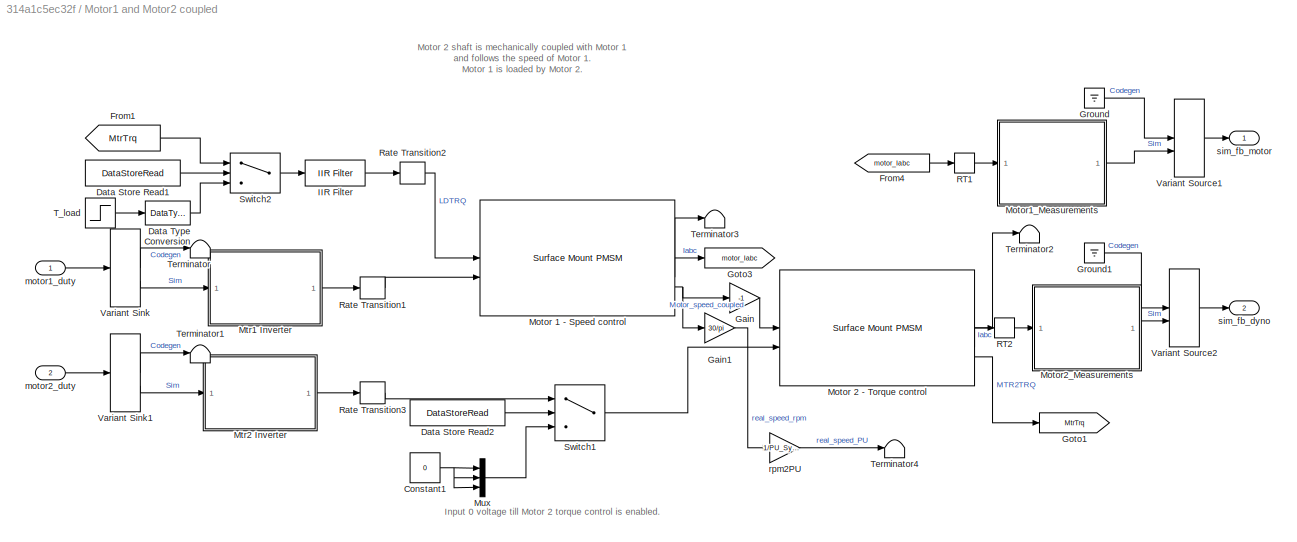
BLOCK [SubSystem] Motor1 and Motor2 coupled
  RTWSystemCode = Reusable function
BLOCK [Constant] Motor1 and Motor2 coupled/Constant1
  Value = 0
BLOCK [DataStoreRead] Motor1 and Motor2 coupled/Data Store Read1
  DataStoreName = EnMtr2TrqCtrl
  IndexOptions = Index vector (dialog)
  Indices = 1
  OutputSizes = 1
BLOCK [DataStoreRead] Motor1 and Motor2 coupled/Data Store Read2
  DataStoreName = EnMtr2TrqCtrl
  IndexOptions = Index vector (dialog)
  Indices = 1
  OutputSizes = 1
BLOCK [DataTypeConversion] Motor1 and Motor2 coupled/Data Type Conversion
  OutDataTypeStr = single
  RndMeth = Floor
  SaturateOnIntegerOverflow = off
BLOCK [From] Motor1 and Motor2 coupled/From1
  GotoTag = MtrTrq
BLOCK [From] Motor1 and Motor2 coupled/From4
  GotoTag = motor_Iabc
BLOCK [Gain] Motor1 and Motor2 coupled/Gain
  Gain = -1
BLOCK [Gain] Motor1 and Motor2 coupled/Gain1
  Gain = 30/pi
BLOCK [Goto] Motor1 and Motor2 coupled/Goto1
  GotoTag = MtrTrq
BLOCK [Goto] Motor1 and Motor2 coupled/Goto3
  GotoTag = motor_Iabc
BLOCK [Ground] Motor1 and Motor2 coupled/Ground
BLOCK [Ground] Motor1 and Motor2 coupled/Ground1
BLOCK [Reference] Motor1 and Motor2 coupled/IIR Filter  REF=mcbcontrolslib/IIR Filter
  SourceBlock = mcbcontrolslib/IIR Filter
  SourceType = IIR Filter
BLOCK [Reference] Motor1 and Motor2 coupled/Motor 1 - Speed control  REF=autolibpmsmexterior/Surface Mount PMSM
  LibrarySourceBlock = mcblib/Electrical Systems/Motors/Surface Mount PMSM
  SourceBlock = autolibpmsmexterior/Surface Mount PMSM
  SourceType = Surface Mount PMSM
BLOCK [Reference] Motor1 and Motor2 coupled/Motor 2 - Torque control  REF=autolibpmsmexterior/Surface Mount PMSM
  LibrarySourceBlock = mcblib/Electrical Systems/Motors/Surface Mount PMSM
  SourceBlock = autolibpmsmexterior/Surface Mount PMSM
  SourceType = Surface Mount PMSM
BLOCK [SubSystem] Motor1 and Motor2 coupled/Motor1_Measurements
BLOCK [Sum] Motor1 and Motor2 coupled/Motor1_Measurements/Add Offset
  IconShape = rectangular
  RndMeth = Simplest
BLOCK [DataTypeConversion] Motor1 and Motor2 coupled/Motor1_Measurements/Data Type Conversion4
  OutDataTypeStr = single
  RndMeth = Simplest
  SaturateOnIntegerOverflow = off
BLOCK [Delay] Motor1 and Motor2 coupled/Motor1_Measurements/Delay1
  DelayLength = PI_params_motor1.delay_Currents
  InputPortMap = u0
BLOCK [Gain] Motor1 and Motor2 coupled/Motor1_Measurements/Get ADC Count
  Gain = target.ADC_MaxCount/target.ADC_Vref
  OutDataTypeStr = uint16
  OutMax = target.ADC_MaxCount
  OutMin = 0
  RndMeth = Simplest
BLOCK [Gain] Motor1 and Motor2 coupled/Motor1_Measurements/Get Current Sense Voltage
  Gain = inverter_motor1.ISenseVoltPerAmp * inverter_motor1.invertingAmp
  OutDataTypeStr = Inherit: Same as input
  RndMeth = Simplest
BLOCK [Gain] Motor1 and Motor2 coupled/Motor1_Measurements/Offset voltage
  Gain = target.ADC_Vref / target.ADC_MaxCount
  RndMeth = Simplest
BLOCK [Inport] Motor1 and Motor2 coupled/Motor1_Measurements/PhaseCurr
BLOCK [Saturate] Motor1 and Motor2 coupled/Motor1_Measurements/Saturate at ADC Vref
  LowerLimit = 0
  UpperLimit = target.ADC_Vref
BLOCK [Saturate] Motor1 and Motor2 coupled/Motor1_Measurements/Saturate at inverter Vref
  LowerLimit = 0
  UpperLimit = inverter_motor1.ISenseVref
BLOCK [Selector] Motor1 and Motor2 coupled/Motor1_Measurements/Selector
  IndexOptions = Index vector (dialog)
  Indices = [1 2]
  InputPortWidth = 3
  OutputSizes = 1
BLOCK [Outport] Motor1 and Motor2 coupled/Motor1_Measurements/Sim_fb
  NameLocation = top
  VectorParamsAs1DForOutWhenUnconnected = off
BLOCK [Constant] Motor1 and Motor2 coupled/Motor1_Measurements/~1.65V in ADC counts
  OutDataTypeStr = uint16
  SampleTime = -1
  Value = [inverter_motor1.CtSensAOffset inverter_motor1.CtSensBOffset]
BLOCK [SubSystem] Motor1 and Motor2 coupled/Motor2_Measurements
BLOCK [Sum] Motor1 and Motor2 coupled/Motor2_Measurements/Add Offset
  IconShape = rectangular
  RndMeth = Simplest
BLOCK [DataTypeConversion] Motor1 and Motor2 coupled/Motor2_Measurements/Data Type Conversion4
  OutDataTypeStr = single
  RndMeth = Simplest
  SaturateOnIntegerOverflow = off
BLOCK [Delay] Motor1 and Motor2 coupled/Motor2_Measurements/Delay1
  DelayLength = PI_params_motor2.delay_Currents
  InputPortMap = u0
BLOCK [Gain] Motor1 and Motor2 coupled/Motor2_Measurements/Get ADC Count
  Gain = target.ADC_MaxCount/target.ADC_Vref
  OutDataTypeStr = uint16
  OutMax = target.ADC_MaxCount
  OutMin = 0
  RndMeth = Simplest
BLOCK [Gain] Motor1 and Motor2 coupled/Motor2_Measurements/Get Current Sense Voltage
  Gain = inverter_motor2.ISenseVoltPerAmp * inverter_motor2.invertingAmp
  OutDataTypeStr = Inherit: Same as input
  RndMeth = Simplest
BLOCK [Gain] Motor1 and Motor2 coupled/Motor2_Measurements/Offset voltage
  Gain = target.ADC_Vref / target.ADC_MaxCount
  RndMeth = Simplest
BLOCK [Inport] Motor1 and Motor2 coupled/Motor2_Measurements/PhaseCurr
BLOCK [Saturate] Motor1 and Motor2 coupled/Motor2_Measurements/Saturate at ADC Vref
  LowerLimit = 0
  UpperLimit = target.ADC_Vref
BLOCK [Saturate] Motor1 and Motor2 coupled/Motor2_Measurements/Saturate at inverter Vref
  LowerLimit = 0
  UpperLimit = inverter_motor2.ISenseVref
BLOCK [Selector] Motor1 and Motor2 coupled/Motor2_Measurements/Selector
  IndexOptions = Index vector (dialog)
  Indices = [1 2]
  InputPortWidth = 3
  OutputSizes = 1
BLOCK [Outport] Motor1 and Motor2 coupled/Motor2_Measurements/Sim_fb
  VectorParamsAs1DForOutWhenUnconnected = off
BLOCK [Constant] Motor1 and Motor2 coupled/Motor2_Measurements/~1.65V in ADC counts
  OutDataTypeStr = uint16
  SampleTime = -1
  Value = [inverter_motor2.CtSensAOffset inverter_motor2.CtSensBOffset]
BLOCK [SubSystem] Motor1 and Motor2 coupled/Mtr1 Inverter
BLOCK [Reference] Motor1 and Motor2 coupled/Mtr1 Inverter/Average-Value Inverter  REF=mcbplantlib/Average-Value Inverter
  SourceBlock = mcbplantlib/Average-Value Inverter
  SourceType = Average Value Inverter
BLOCK [Constant] Motor1 and Motor2 coupled/Mtr1 Inverter/Constant2
  OutDataTypeStr = single
  Value = inverter_motor1.V_dc
BLOCK [DataTypeConversion] Motor1 and Motor2 coupled/Mtr1 Inverter/Data Type Conversion1
  OutDataTypeStr = single
  RndMeth = Simplest
  SaturateOnIntegerOverflow = off
BLOCK [Inport] Motor1 and Motor2 coupled/Mtr1 Inverter/Duty_abc
BLOCK [RateTransition] Motor1 and Motor2 coupled/Mtr1 Inverter/Rate Transition3
  Integrity = off
  OutPortSampleTime = Ts_inverter
BLOCK [Outport] Motor1 and Motor2 coupled/Mtr1 Inverter/Vabc
  VectorParamsAs1DForOutWhenUnconnected = off
BLOCK [SubSystem] Motor1 and Motor2 coupled/Mtr2 Inverter
BLOCK [Reference] Motor1 and Motor2 coupled/Mtr2 Inverter/Average-Value Inverter  REF=mcbplantlib/Average-Value Inverter
  SourceBlock = mcbplantlib/Average-Value Inverter
  SourceType = Average Value Inverter
BLOCK [Constant] Motor1 and Motor2 coupled/Mtr2 Inverter/Constant2
  OutDataTypeStr = single
  Value = inverter_motor2.V_dc
BLOCK [DataTypeConversion] Motor1 and Motor2 coupled/Mtr2 Inverter/Data Type Conversion1
  OutDataTypeStr = single
  RndMeth = Simplest
  SaturateOnIntegerOverflow = off
BLOCK [Inport] Motor1 and Motor2 coupled/Mtr2 Inverter/Duty_abc
BLOCK [RateTransition] Motor1 and Motor2 coupled/Mtr2 Inverter/Rate Transition3
  Integrity = off
  OutPortSampleTime = Ts_inverter
BLOCK [Outport] Motor1 and Motor2 coupled/Mtr2 Inverter/Vabc
  VectorParamsAs1DForOutWhenUnconnected = off
BLOCK [Mux] Motor1 and Motor2 coupled/Mux
  DisplayOption = bar
  Inputs = 3
BLOCK [RateTransition] Motor1 and Motor2 coupled/RT1
  Deterministic = off
  OutPortSampleTime = Ts_simulink
BLOCK [RateTransition] Motor1 and Motor2 coupled/RT2
  Deterministic = off
  OutPortSampleTime = Ts_simulink
BLOCK [RateTransition] Motor1 and Motor2 coupled/Rate Transition1
  Deterministic = off
  OutPortSampleTime = Ts_motor
BLOCK [RateTransition] Motor1 and Motor2 coupled/Rate Transition2
  Deterministic = off
  OutPortSampleTime = Ts_motor
BLOCK [RateTransition] Motor1 and Motor2 coupled/Rate Transition3
  Deterministic = off
  OutPortSampleTime = Ts_motor
BLOCK [Switch] Motor1 and Motor2 coupled/Switch1
  Criteria = u2 > Threshold
  InputSameDT = off
  SaturateOnIntegerOverflow = off
BLOCK [Switch] Motor1 and Motor2 coupled/Switch2
  Criteria = u2 > Threshold
  InputSameDT = off
  SaturateOnIntegerOverflow = off
BLOCK [Step] Motor1 and Motor2 coupled/T_load
  After = 0.4*pmsm_motor1.T_rated
  Before = 0.05*pmsm_motor1.T_rated
  SampleTime = Ts_simulink
  Time = 3
BLOCK [Terminator] Motor1 and Motor2 coupled/Terminator
BLOCK [Terminator] Motor1 and Motor2 coupled/Terminator1
BLOCK [Terminator] Motor1 and Motor2 coupled/Terminator2
BLOCK [Terminator] Motor1 and Motor2 coupled/Terminator3
BLOCK [Terminator] Motor1 and Motor2 coupled/Terminator4
BLOCK [VariantSink] Motor1 and Motor2 coupled/Variant Sink
  VariantControlMode = sim codegen switching
BLOCK [VariantSink] Motor1 and Motor2 coupled/Variant Sink1
  VariantControlMode = sim codegen switching
BLOCK [VariantSource] Motor1 and Motor2 coupled/Variant Source1
  VariantControlMode = sim codegen switching
BLOCK [VariantSource] Motor1 and Motor2 coupled/Variant Source2
  VariantControlMode = sim codegen switching
BLOCK [Inport] Motor1 and Motor2 coupled/motor1_duty
BLOCK [Inport] Motor1 and Motor2 coupled/motor2_duty
  Port = 2
BLOCK [Gain] Motor1 and Motor2 coupled/rpm2PU
  Gain = 1/PU_System_motor1.N_base
BLOCK [Outport] Motor1 and Motor2 coupled/sim_fb_dyno
  Port = 2
  VectorParamsAs1DForOutWhenUnconnected = off
BLOCK [Outport] Motor1 and Motor2 coupled/sim_fb_motor
  VectorParamsAs1DForOutWhenUnconnected = off
BLOCK [RateTransition] RT
  Deterministic = off
  OutPortSampleTime = Ts_speed
BLOCK [RateTransition] RT2
  Deterministic = off
BLOCK [RateTransition] RT3
  Deterministic = off
  OutPortSampleTime = Ts_speed
BLOCK [RateTransition] RT4
  Deterministic = off
BLOCK [RateTransition] RT6
  Deterministic = off
BLOCK [RateTransition] RT7
  Deterministic = off
BLOCK [RateTransition] RT8
  Deterministic = off
BLOCK [RadioButtonGroup] Radio Button
  ButtonGroupName = Postion Estimator
  LabelPosition = Hide
  SelectedLabel = Sliding mode observer
BLOCK [RateTransition] Rate Transition3
  Deterministic = off
  OutPortSampleTime = Ts_speed
BLOCK [SubSystem] Serial Receive
  RTWMemSecFuncExecute = code_ramfuncs
  SystemSampleTime = 1e-3
BLOCK [Outport] Serial Receive/Desired Speed
BLOCK [Outport] Serial Receive/Desried Iq ref
  Port = 2
BLOCK [Step] Serial Receive/Iq_Ref(A)
  After = 0.7*pmsm_motor2.I_rated
  Before = 1
  OutDataTypeStr = single
  Time = 3
BLOCK [SubSystem] Serial Receive/Parse SCI Rx
BLOCK [DataStoreWrite] Serial Receive/Parse SCI Rx/Data Store Write
  DataStoreName = Enable
  IndexOptions = Index vector (dialog)
  Indices = 1
  OutputSizes = 1
BLOCK [DataStoreWrite] Serial Receive/Parse SCI Rx/Data Store Write1
  DataStoreName = SpeedRef
  IndexOptions = Index vector (dialog)
  Indices = 1
  OutputSizes = 1
BLOCK [DataStoreWrite] Serial Receive/Parse SCI Rx/Data Store Write2
  DataStoreName = Debug_signals
  IndexOptions = Index vector (dialog)
  Indices = 1
  OutputSizes = 1
BLOCK [SubSystem] Serial Receive/Parse SCI Rx/Data_Conditioning_Rx
  Variant = on
BLOCK [SubSystem] Serial Receive/Parse SCI Rx/Data_Conditioning_Rx/Data_Type_Fixed_Point
  VariantControl = ~isequal(dataType, 'single')
BLOCK [DataTypeConversion] Serial Receive/Parse SCI Rx/Data_Conditioning_Rx/Data_Type_Fixed_Point/Data Type Conversion1
  OutDataTypeStr = dataType
  RndMeth = Simplest
  SaturateOnIntegerOverflow = off
BLOCK [DataTypeConversion] Serial Receive/Parse SCI Rx/Data_Conditioning_Rx/Data_Type_Fixed_Point/Data Type Conversion2
  ConvertRealWorld = Stored Integer (SI)
  OutDataTypeStr = fixdt(1,32,28)
  RndMeth = Simplest
  SaturateOnIntegerOverflow = off
BLOCK [DataTypeConversion] Serial Receive/Parse SCI Rx/Data_Conditioning_Rx/Data_Type_Fixed_Point/Data Type Conversion3
  OutDataTypeStr = uint16
  RndMeth = Simplest
  SaturateOnIntegerOverflow = off
BLOCK [DataTypeConversion] Serial Receive/Parse SCI Rx/Data_Conditioning_Rx/Data_Type_Fixed_Point/Data Type Conversion4
  OutDataTypeStr = dataType
  RndMeth = Simplest
  SaturateOnIntegerOverflow = off
BLOCK [DataTypeConversion] Serial Receive/Parse SCI Rx/Data_Conditioning_Rx/Data_Type_Fixed_Point/Data Type Conversion5
  ConvertRealWorld = Stored Integer (SI)
  OutDataTypeStr = fixdt(1,32,28)
  RndMeth = Simplest
  SaturateOnIntegerOverflow = off
BLOCK [Demux] Serial Receive/Parse SCI Rx/Data_Conditioning_Rx/Data_Type_Fixed_Point/Demux
  Outputs = 3
BLOCK [Outport] Serial Receive/Parse SCI Rx/Data_Conditioning_Rx/Data_Type_Fixed_Point/Desired Speed
BLOCK [Outport] Serial Receive/Parse SCI Rx/Data_Conditioning_Rx/Data_Type_Fixed_Point/Desired torque
  Port = 3
BLOCK [Outport] Serial Receive/Parse SCI Rx/Data_Conditioning_Rx/Data_Type_Fixed_Point/Out2
  Port = 2
BLOCK [Inport] Serial Receive/Parse SCI Rx/Data_Conditioning_Rx/Data_Type_Fixed_Point/Rx
BLOCK [SubSystem] Serial Receive/Parse SCI Rx/Data_Conditioning_Rx/Data_Type_Float
  VariantControl = isequal(dataType, 'single')
BLOCK [DataTypeConversion] Serial Receive/Parse SCI Rx/Data_Conditioning_Rx/Data_Type_Float/Data Type Conversion2
  OutDataTypeStr = uint16
  RndMeth = Simplest
  SaturateOnIntegerOverflow = off
BLOCK [Demux] Serial Receive/Parse SCI Rx/Data_Conditioning_Rx/Data_Type_Float/Demux
  Outputs = 3
BLOCK [Outport] Serial Receive/Parse SCI Rx/Data_Conditioning_Rx/Data_Type_Float/Desired Speed
BLOCK [Outport] Serial Receive/Parse SCI Rx/Data_Conditioning_Rx/Data_Type_Float/Desired torque
  Port = 3
BLOCK [Outport] Serial Receive/Parse SCI Rx/Data_Conditioning_Rx/Data_Type_Float/Out2
  Port = 2
BLOCK [Inport] Serial Receive/Parse SCI Rx/Data_Conditioning_Rx/Data_Type_Float/Rx
BLOCK [Outport] Serial Receive/Parse SCI Rx/Data_Conditioning_Rx/Desired Speed
BLOCK [Outport] Serial Receive/Parse SCI Rx/Data_Conditioning_Rx/Desired torque
  Port = 3
BLOCK [Outport] Serial Receive/Parse SCI Rx/Data_Conditioning_Rx/Out2
  Port = 2
BLOCK [Inport] Serial Receive/Parse SCI Rx/Data_Conditioning_Rx/Rx
BLOCK [Outport] Serial Receive/Parse SCI Rx/Desired Speed
  VectorParamsAs1DForOutWhenUnconnected = off
BLOCK [Outport] Serial Receive/Parse SCI Rx/Desried Iq ref
  Port = 2
  VectorParamsAs1DForOutWhenUnconnected = off
BLOCK [Inport] Serial Receive/Parse SCI Rx/Rx
BLOCK [SubSystem] Serial Receive/Parse SCI Rx/unParse
BLOCK [Reference] Serial Receive/Parse SCI Rx/unParse/Bitwise Operator  REF=simulink/Logic and Bit
Operations/Bitwise
Operator
  SourceBlock = simulink/Logic and Bit\nOperations/Bitwise\nOperator
  SourceType = Bitwise Operator
BLOCK [Reference] Serial Receive/Parse SCI Rx/unParse/Bitwise Operator1  REF=simulink/Logic and Bit
Operations/Bitwise
Operator
  SourceBlock = simulink/Logic and Bit\nOperations/Bitwise\nOperator
  SourceType = Bitwise Operator
BLOCK [Inport] Serial Receive/Parse SCI Rx/unParse/Data
BLOCK [DataTypeConversion] Serial Receive/Parse SCI Rx/unParse/Data Type Conversion3
  OutDataTypeStr = boolean
  RndMeth = Simplest
  SaturateOnIntegerOverflow = off
BLOCK [DataTypeConversion] Serial Receive/Parse SCI Rx/unParse/Data Type Conversion4
  NameLocation = left
  OutDataTypeStr = uint16
  RndMeth = Simplest
  SaturateOnIntegerOverflow = off
BLOCK [Outport] Serial Receive/Parse SCI Rx/unParse/Debug_signals
  Port = 2
BLOCK [Outport] Serial Receive/Parse SCI Rx/unParse/Enable_PWM
BLOCK [ArithShift] Serial Receive/Parse SCI Rx/unParse/Shift Arithmetic1
  BitShiftNumber = 4
  InputPortMap = u0
BLOCK [TriggerPort] Serial Receive/SCI_Rx_INT
  StatesWhenEnabling = held
  TriggerType = function-call
  VariantControl = Variant
BLOCK [SubSystem] Serial Receive/Serial Receive
  RTWMemSecFuncExecute = code_ramfuncs
  SystemSampleTime = 1e-3
BLOCK [Outport] Serial Receive/Serial Receive/Rx
BLOCK [SubSystem] Serial Receive/Serial Receive/Serial Rx
  Variant = on
BLOCK [SubSystem] Serial Receive/Serial Receive/Serial Rx/Data_Type_Fixed_Point
  VariantControl = ~isequal(dataType, 'single')
BLOCK [Outport] Serial Receive/Serial Receive/Serial Rx/Data_Type_Fixed_Point/Rx
BLOCK [Reference] Serial Receive/Serial Receive/Serial Rx/Data_Type_Fixed_Point/SCI Receive  REF=c280xlib/SCI Receive
  SourceBlock = c280xlib/SCI Receive
  SourceType = C28x SCI Receive
BLOCK [SubSystem] Serial Receive/Serial Receive/Serial Rx/Data_Type_Float
  VariantControl = isequal(dataType, 'single')
BLOCK [Outport] Serial Receive/Serial Receive/Serial Rx/Data_Type_Float/Rx
BLOCK [Reference] Serial Receive/Serial Receive/Serial Rx/Data_Type_Float/SCI Receive  REF=c280xlib/SCI Receive
  SourceBlock = c280xlib/SCI Receive
  SourceType = C28x SCI Receive
BLOCK [Outport] Serial Receive/Serial Receive/Serial Rx/Rx
BLOCK [Reference] Serial Receive/Signal Editor  REF=SignalEditorBlockLib/Signal Editor
  Commented = on
  LibrarySourceBlock = simulink/Sources/Signal Editor
  SourceBlock = SignalEditorBlockLib/Signal Editor
  SourceType = SignalEditor
  UserDataPersistent = on
BLOCK [SubSystem] Serial Receive/Signal Packing
BLOCK [Constant] Serial Receive/Signal Packing/Constant
  OutDataTypeStr = uint16
BLOCK [Outport] Serial Receive/Signal Packing/Data
BLOCK [SubSystem] Serial Receive/Signal Packing/Data_Conditioning_Tx
  Variant = on
BLOCK [Outport] Serial Receive/Signal Packing/Data_Conditioning_Tx/Data
BLOCK [SubSystem] Serial Receive/Signal Packing/Data_Conditioning_Tx/Data_Type_Fixed_Point
  VariantControl = ~isequal(dataType, 'single')
BLOCK [Outport] Serial Receive/Signal Packing/Data_Conditioning_Tx/Data_Type_Fixed_Point/Data
BLOCK [DataTypeConversion] Serial Receive/Signal Packing/Data_Conditioning_Tx/Data_Type_Fixed_Point/Data Type Conversion
  OutDataTypeStr = fixdt(1,32,28)
  RndMeth = Simplest
  SaturateOnIntegerOverflow = off
BLOCK [DataTypeConversion] Serial Receive/Signal Packing/Data_Conditioning_Tx/Data_Type_Fixed_Point/Data Type Conversion1
  OutDataTypeStr = uint32
  RndMeth = Simplest
  SaturateOnIntegerOverflow = off
BLOCK [DataTypeConversion] Serial Receive/Signal Packing/Data_Conditioning_Tx/Data_Type_Fixed_Point/Data Type Conversion2
  OutDataTypeStr = fixdt(1,32,28)
  RndMeth = Simplest
  SaturateOnIntegerOverflow = off
BLOCK [DataTypeConversion] Serial Receive/Signal Packing/Data_Conditioning_Tx/Data_Type_Fixed_Point/Data Type Conversion3
  ConvertRealWorld = Stored Integer (SI)
  OutDataTypeStr = uint32
  RndMeth = Simplest
  SaturateOnIntegerOverflow = off
BLOCK [DataTypeConversion] Serial Receive/Signal Packing/Data_Conditioning_Tx/Data_Type_Fixed_Point/Data Type Conversion4
  ConvertRealWorld = Stored Integer (SI)
  OutDataTypeStr = uint32
  RndMeth = Simplest
  SaturateOnIntegerOverflow = off
BLOCK [Inport] Serial Receive/Signal Packing/Data_Conditioning_Tx/Data_Type_Fixed_Point/In1
BLOCK [Inport] Serial Receive/Signal Packing/Data_Conditioning_Tx/Data_Type_Fixed_Point/In2
  Port = 2
BLOCK [Inport] Serial Receive/Signal Packing/Data_Conditioning_Tx/Data_Type_Fixed_Point/In3
  Port = 3
BLOCK [Mux] Serial Receive/Signal Packing/Data_Conditioning_Tx/Data_Type_Fixed_Point/Mux
  DisplayOption = bar
  Inputs = 3
BLOCK [SubSystem] Serial Receive/Signal Packing/Data_Conditioning_Tx/Data_Type_Float
  VariantControl = isequal(dataType, 'single')
BLOCK [Outport] Serial Receive/Signal Packing/Data_Conditioning_Tx/Data_Type_Float/Data
BLOCK [DataTypeConversion] Serial Receive/Signal Packing/Data_Conditioning_Tx/Data_Type_Float/Data Type Conversion2
  OutDataTypeStr = single
  RndMeth = Simplest
  SaturateOnIntegerOverflow = off
BLOCK [Inport] Serial Receive/Signal Packing/Data_Conditioning_Tx/Data_Type_Float/In1
BLOCK [Inport] Serial Receive/Signal Packing/Data_Conditioning_Tx/Data_Type_Float/In2
  Port = 2
BLOCK [Inport] Serial Receive/Signal Packing/Data_Conditioning_Tx/Data_Type_Float/In3
  Port = 3
BLOCK [Mux] Serial Receive/Signal Packing/Data_Conditioning_Tx/Data_Type_Float/Mux
  DisplayOption = bar
  Inputs = 3
BLOCK [Inport] Serial Receive/Signal Packing/Data_Conditioning_Tx/In1
BLOCK [Inport] Serial Receive/Signal Packing/Data_Conditioning_Tx/In2
  Port = 2
BLOCK [Inport] Serial Receive/Signal Packing/Data_Conditioning_Tx/In3
  Port = 3
BLOCK [Constant] Serial Receive/Signal Packing/Debug_signals
  OutDataTypeStr = uint16
  SampleTime = -1
BLOCK [Inport] Serial Receive/Signal Packing/IqRef
  Port = 2
BLOCK [Gain] Serial Receive/Signal Packing/IqRef_current_to_PU
  Gain = 1/PU_System_motor2.I_base
  OutDataTypeStr = Inherit: Same as input
  RndMeth = Simplest
BLOCK [SubSystem] Serial Receive/Signal Packing/Parse
BLOCK [Reference] Serial Receive/Signal Packing/Parse/Bitwise Operator  REF=simulink/Logic and Bit
Operations/Bitwise
Operator
  SourceBlock = simulink/Logic and Bit\nOperations/Bitwise\nOperator
  SourceType = Bitwise Operator
BLOCK [Reference] Serial Receive/Signal Packing/Parse/Bitwise Operator1  REF=simulink/Logic and Bit
Operations/Bitwise
Operator
  SourceBlock = simulink/Logic and Bit\nOperations/Bitwise\nOperator
  SourceType = Bitwise Operator
BLOCK [Outport] Serial Receive/Signal Packing/Parse/Data
BLOCK [Inport] Serial Receive/Signal Packing/Parse/Debug_signals
  Port = 2
BLOCK [Inport] Serial Receive/Signal Packing/Parse/Enable_PWM
BLOCK [ArithShift] Serial Receive/Signal Packing/Parse/Shift Arithmetic1
  BitShiftNumber = -4
  InputPortMap = u0
BLOCK [Sum] Serial Receive/Signal Packing/Parse/Sum
  IconShape = rectangular
BLOCK [Inport] Serial Receive/Signal Packing/Speedref
BLOCK [Gain] Serial Receive/Signal Packing/rpm2PU
  Gain = 1/pmsm_motor1.N_base
  OutDataTypeStr = Inherit: Same as input
  RndMeth = Simplest
BLOCK [Step] Serial Receive/Speed_Ref_CW (rpm)
  After = 0.5*pmsm_motor1.N_base
  Before = Speed_openLoop_PU*pmsm_motor1.N_base
  OutDataTypeStr = single
  Time = T_Ref_openLoop
BLOCK [VariantSource] Serial Receive/Variant Source1
  VariantControlMode = sim codegen switching
BLOCK [SubSystem] Simulation
BLOCK [Outport] Simulation/Interrupt
BLOCK [Mux] Simulation/Mux
  DisplayOption = bar
  Inputs = 3
BLOCK [DiscretePulseGenerator] Simulation/Pulse Generator1
  Period = Ts
  PhaseDelay = Ts
  PulseType = Time based
  PulseWidth = 20
BLOCK [DiscretePulseGenerator] Simulation/Pulse Generator2
  Period = Ts
  PulseType = Time based
  PulseWidth = 20
BLOCK [Reference] Simulation/SCI_Rx_INT  REF=simulink/Ports &
Subsystems/Function-Call
Generator
  SourceBlock = simulink/Ports &\nSubsystems/Function-Call\nGenerator
  SourceType = Function-Call Generator
BLOCK [SubSystem] Simulation/Simulation1
BLOCK [Reference] Simulation/Simulation1/ADCINT1  REF=simulink/Ports &
Subsystems/Function-Call
Generator
  SourceBlock = simulink/Ports &\nSubsystems/Function-Call\nGenerator
  SourceType = Function-Call Generator
BLOCK [Outport] Simulation/Simulation1/Interrupt
BLOCK [TriggerPort] Simulation/Simulation1/Trigger
  PortDimensions = 1
  StatesWhenEnabling = held
  VariantControl = Variant
BLOCK [SubSystem] Simulation/Simulation2
BLOCK [Reference] Simulation/Simulation2/ADCINT1  REF=simulink/Ports &
Subsystems/Function-Call
Generator
  SourceBlock = simulink/Ports &\nSubsystems/Function-Call\nGenerator
  SourceType = Function-Call Generator
BLOCK [Outport] Simulation/Simulation2/Interrupt
BLOCK [TriggerPort] Simulation/Simulation2/Trigger
  PortDimensions = 1
  StatesWhenEnabling = held
  VariantControl = Variant
BLOCK [SubSystem] Speed Control
  RTWSystemCode = Reusable function
  SystemSampleTime = Ts_speed
  TreatAsAtomicUnit = on
BLOCK [Logic] Speed Control/AND
  AllPortsSameDT = off
  IconShape = distinctive
  OutDataTypeStr = boolean
BLOCK [DataStoreRead] Speed Control/Data Store Read1
  DataStoreName = Enable
  IndexOptions = Index vector (dialog)
  Indices = 1
  OutputSizes = 1
BLOCK [DataStoreRead] Speed Control/Data Store Read2
  DataStoreName = EnClosedLoop
  IndexOptions = Index vector (dialog)
  Indices = 1
  OutputSizes = 1
BLOCK [Inport] Speed Control/EstimatorSelect
BLOCK [From] Speed Control/From
  GotoTag = speed_ref
BLOCK [From] Speed Control/From1
  GotoTag = speed_fb
BLOCK [Goto] Speed Control/Goto
  GotoTag = speed_ref
BLOCK [Goto] Speed Control/Goto1
  GotoTag = speed_fb
BLOCK [Constant] Speed Control/Id_Ref
  OutDataTypeStr = dataType
  Value = 0
BLOCK [Outport] Speed Control/IdqRef_PU
  VectorParamsAs1DForOutWhenUnconnected = off
BLOCK [ManualSwitch] Speed Control/Manual Switch
  CurrentSetting = 0
BLOCK [Merge] Speed Control/Merge
BLOCK [Mux] Speed Control/Mux
  DisplayOption = bar
  Inputs = 2
BLOCK [SubSystem] Speed Control/PI_Controller_Speed
BLOCK [Logic] Speed Control/PI_Controller_Speed/AND
  AllPortsSameDT = off
  IconShape = distinctive
  OutDataTypeStr = boolean
BLOCK [DataStoreRead] Speed Control/PI_Controller_Speed/Data Store Read1
  DataStoreName = Enable
  IndexOptions = Index vector (dialog)
  Indices = 1
  OutputSizes = 1
BLOCK [DataStoreRead] Speed Control/PI_Controller_Speed/Data Store Read2
  DataStoreName = EnClosedLoop
  IndexOptions = Index vector (dialog)
  Indices = 1
  OutputSizes = 1
BLOCK [Reference] Speed Control/PI_Controller_Speed/Discrete PI Controller with anti-windup & reset  REF=slpidlib/PID Controller
  SourceBlock = slpidlib/PID Controller
  SourceType = PID 1dof
BLOCK [Outport] Speed Control/PI_Controller_Speed/Iq_ref
  VectorParamsAs1DForOutWhenUnconnected = off
BLOCK [Constant] Speed Control/PI_Controller_Speed/Ki1
  NameLocation = top
  OutDataTypeStr = dataType
  SampleTime = -1
  Value = PI_params_motor1.Ki_speed*Ts_speed
BLOCK [Constant] Speed Control/PI_Controller_Speed/Ki2
  NameLocation = top
  OutDataTypeStr = dataType
  SampleTime = -1
  Value = 0
BLOCK [Constant] Speed Control/PI_Controller_Speed/Kp1
  NameLocation = top
  OutDataTypeStr = dataType
  SampleTime = -1
  Value = PI_params_motor1.Kp_speed
BLOCK [Logic] Speed Control/PI_Controller_Speed/Logical Operator
  AllPortsSameDT = off
  IconShape = distinctive
  Operator = NOT
  OutDataTypeStr = boolean
BLOCK [Inport] Speed Control/PI_Controller_Speed/N_fb
  Port = 2
BLOCK [Inport] Speed Control/PI_Controller_Speed/N_ref
BLOCK [Sum] Speed Control/PI_Controller_Speed/Sum
  Inputs = |+-
  OutDataTypeStr = Inherit: Same as first input
BLOCK [Reference] Speed Control/PI_Controller_Speed/Zero_Cancellation  REF=mcbcontrolslib/IIR Filter
  SourceBlock = mcbcontrolslib/IIR Filter
  SourceType = IIR Filter
BLOCK [SubSystem] Speed Control/Rate Limiter for FO
  TreatAsAtomicUnit = on
BLOCK [ActionPort] Speed Control/Rate Limiter for FO/Action Port
  ActionPortLabel = case [ 1 ]:
BLOCK [Outport] Speed Control/Rate Limiter for FO/Out1
BLOCK [Inport] Speed Control/Rate Limiter for FO/Speed_Ref
BLOCK [SubSystem] Speed Control/Rate Limiter for SMO
  TreatAsAtomicUnit = on
BLOCK [ActionPort] Speed Control/Rate Limiter for SMO/Action Port
  ActionPortLabel = case [ 0 ]:
BLOCK [Outport] Speed Control/Rate Limiter for SMO/Out1
BLOCK [RateLimiter] Speed Control/Rate Limiter for SMO/Rate Limiter
  FallingSlewLimit = -acceleration
  InitialCondition = Speed_openLoop_PU
  RisingSlewLimit = acceleration
  SampleTimeMode = inherited
BLOCK [RateLimiter] Speed Control/Rate Limiter for SMO/Rate Limiter1
  FallingSlewLimit = -acceleration
  InitialCondition = -Speed_openLoop_PU
  RisingSlewLimit = acceleration
  SampleTimeMode = inherited
BLOCK [Inport] Speed Control/Rate Limiter for SMO/Speed_Ref
BLOCK [Switch] Speed Control/Rate Limiter for SMO/Switch
  InputSameDT = off
  SaturateOnIntegerOverflow = off
BLOCK [Inport] Speed Control/Speed_Meas_PU
  Port = 3
BLOCK [Inport] Speed Control/Speed_Ref_PU
  Port = 2
BLOCK [SubSystem] Speed Control/Speed_Ref_Selector
BLOCK [Constant] Speed Control/Speed_Ref_Selector/Constant
  OutDataTypeStr = dataType
  Value = Speed_openLoop_PU
BLOCK [Constant] Speed Control/Speed_Ref_Selector/Constant1
  OutDataTypeStr = dataType
  Value = -Speed_openLoop_PU
BLOCK [DataStoreRead] Speed Control/Speed_Ref_Selector/Data Store Read
  DataStoreName = SpeedRef
  IndexOptions = Index vector (dialog)
  Indices = 1
  OutputSizes = 1
BLOCK [DataStoreRead] Speed Control/Speed_Ref_Selector/Data Store Read1
  DataStoreName = EnClosedLoop
  IndexOptions = Index vector (dialog)
  Indices = 1
  OutputSizes = 1
BLOCK [Inport] Speed Control/Speed_Ref_Selector/Speed_Ref
BLOCK [Outport] Speed Control/Speed_Ref_Selector/Speed_Ref1
BLOCK [Switch] Speed Control/Speed_Ref_Selector/Switch
  Criteria = u2 > Threshold
  InputSameDT = off
  SaturateOnIntegerOverflow = off
BLOCK [Switch] Speed Control/Speed_Ref_Selector/Switch1
  Criteria = u2 > Threshold
  InputSameDT = off
  SaturateOnIntegerOverflow = off
BLOCK [SubSystem] Speed Control/Subsystem
BLOCK [Gain] Speed Control/Subsystem/A2PU
  Gain = 1/PU_System_motor1.I_base
BLOCK [Constant] Speed Control/Subsystem/Constant11
  Value = pmsm_motor1.J
BLOCK [Constant] Speed Control/Subsystem/Constant14
  Value = pmsm_motor1.Kt
BLOCK [Constant] Speed Control/Subsystem/Constant2
  Value = SlidFCS_params.lam1
BLOCK [Constant] Speed Control/Subsystem/Constant3
  Value = SlidFCS_params.lam2
BLOCK [Constant] Speed Control/Subsystem/Constant4
  Value = SlidFCS_params.ar
BLOCK [Constant] Speed Control/Subsystem/Constant5
  Value = SlidFCS_params.rr
BLOCK [Constant] Speed Control/Subsystem/Constant6
  Value = Ts_speed
BLOCK [Constant] Speed Control/Subsystem/Constant7
  Value = pmsm_motor1.B
BLOCK [EnablePort] Speed Control/Subsystem/Enable
BLOCK [Gain] Speed Control/Subsystem/Gain
  Gain = pmsm_motor1.p
BLOCK [Gain] Speed Control/Subsystem/Gain1
  Gain = pmsm_motor1.p
BLOCK [Inport] Speed Control/Subsystem/In1
BLOCK [Inport] Speed Control/Subsystem/In2
  Port = 2
BLOCK [SubSystem] Speed Control/Subsystem/MATLAB Function2
  ErrorFcn = Stateflow.Translate.translate
  PermitHierarchicalResolution = ExplicitOnly
  SFBlockType = MATLAB Function
  TreatAsAtomicUnit = on
BLOCK [Demux] Speed Control/Subsystem/MATLAB Function2/ Demux 
  Outputs = 1
BLOCK [S-Function] Speed Control/Subsystem/MATLAB Function2/ SFunction 
  EnableBusSupport = on
  FunctionName = sf_sfun
  PortCounts = [8 3]
  SFcnIsStateOwnerBlock = off
  SFunctionDeploymentMode = off
  Tag = Stateflow S-Function 5
BLOCK [Terminator] Speed Control/Subsystem/MATLAB Function2/ Terminator 
BLOCK [Outport] Speed Control/Subsystem/MATLAB Function2/Iq_ref
BLOCK [Inport] Speed Control/Subsystem/MATLAB Function2/params
BLOCK [Outport] Speed Control/Subsystem/MATLAB Function2/sw
  Port = 2
BLOCK [Inport] Speed Control/Subsystem/MATLAB Function2/sw_past
  Port = 8
BLOCK [Inport] Speed Control/Subsystem/MATLAB Function2/w_ref
  Port = 5
BLOCK [Inport] Speed Control/Subsystem/MATLAB Function2/w_ref_past
  Port = 6
BLOCK [Inport] Speed Control/Subsystem/MATLAB Function2/w_ref_past_1
  Port = 7
BLOCK [Inport] Speed Control/Subsystem/MATLAB Function2/we
  Port = 2
BLOCK [Inport] Speed Control/Subsystem/MATLAB Function2/we_past
  Port = 3
BLOCK [Inport] Speed Control/Subsystem/MATLAB Function2/we_past_1
  Port = 4
BLOCK [Mux] Speed Control/Subsystem/Mux2
  DisplayOption = bar
  Inputs = 8
BLOCK [Outport] Speed Control/Subsystem/Out1
BLOCK [Gain] Speed Control/Subsystem/PU2rpm
  Gain = PU_System_motor1.N_base
BLOCK [Gain] Speed Control/Subsystem/PU2rpm1
  Gain = PU_System_motor1.N_base
BLOCK [UnitDelay] Speed Control/Subsystem/Unit Delay
  HasFrameUpgradeWarning = on
  SampleTime = -1
BLOCK [UnitDelay] Speed Control/Subsystem/Unit Delay1
  HasFrameUpgradeWarning = on
  SampleTime = -1
BLOCK [UnitDelay] Speed Control/Subsystem/Unit Delay2
  HasFrameUpgradeWarning = on
  SampleTime = -1
BLOCK [UnitDelay] Speed Control/Subsystem/Unit Delay3
  HasFrameUpgradeWarning = on
  SampleTime = -1
BLOCK [UnitDelay] Speed Control/Subsystem/Unit Delay4
  HasFrameUpgradeWarning = on
  SampleTime = -1
BLOCK [Gain] Speed Control/Subsystem/rpm2rad
  Gain = pi/30
BLOCK [Gain] Speed Control/Subsystem/rpm2rad1
  Gain = pi/30
BLOCK [SwitchCase] Speed Control/Switch Case
  CaseConditions = {0,1}
  ShowDefaultCase = off
BLOCK [SubSystem] Torque Demand
  SystemSampleTime = Ts_speed
  TreatAsAtomicUnit = on
BLOCK [Outport] Torque Demand/Desired Torque
BLOCK [Inport] Torque Demand/Desired torque
BLOCK [Reference] Torque Demand/IIR Filter  REF=mcbcontrolslib/IIR Filter
  SourceBlock = mcbcontrolslib/IIR Filter
  SourceType = IIR Filter
BLOCK [Constant] Torque Demand/Id_ref_PU
  OutDataTypeStr = dataType
  Value = 0
BLOCK [Mux] Torque Demand/Mux
  DisplayOption = bar
  Inputs = 2
BLOCK [VariantSource] Variant Source
  OutputFunctionCall = on
  VariantControlMode = sim codegen switching
ANNOTATION (root): Note: This example requires a TI F28379D LaunchPad with a two BOOSTXL-DRV8305 booster pack connected to a PMSM Motor
ANNOTATION (root): Explore more: 1. E dit motor & inverter parameters 2 Simulate this model 3. Review results in Data Inspector 4. Build, Deploy & Start 5. Control motor via host model 6.Start the motor in open loop and transition to close loop.The model works in open loop for speed ref below 0.1pu.
ANNOTATION (root): PMSM Motor-Dyno-Sensorless Field Oriented Control
ANNOTATION (root): Select the value of 'EstimatorSelect' using 'Position Estimator' radio button
ANNOTATION FOC Algorithm Motor 1/Input Scaling: Current Measurements
ANNOTATION FOC Algorithm Motor 1/Inverter (Code Generation): System Outputs
ANNOTATION FOC Algorithm Motor 1/Inverter (Code Generation): for inverter connected with LaunchXL-28379D
ANNOTATION FOC Algorithm Motor 1/SCI (Code Generation)/Data_Logging: Fast Serial Data Monitoring (32-bit)
ANNOTATION FOC Algorithm Motor 1/Subsystem: Signal Index used in Multiport switch Mtr1 -------- 1. Id_ref 2. Id_meas 3. Vd_out 4. Iq_ref 5. Iq_meas 6. Vq_out 7. Te 8. Pm 9. Speed_meas 10. Ia_meas 11. Ib_meas 12. Pos Mtr2 -------- 13. Id_ref 14. Id_meas 15. Vd_out 16. Iq_ref 17. Iq_meas 18. Vq_out 19. Te 20. Pm 21. Speed_meas 22. Ia_meas 23. Ib_meas 24. Pos 25.Speed ref
ANNOTATION FOC Algorithm Motor 2/Enable Motor2 after a delay/Delay to start motor2 (codegen): Add 2 seconds delay from Enable and Closed-loop enable. This ensures motor with speed control starts and settles before motor with torque control starts.
ANNOTATION FOC Algorithm Motor 2/Enable Motor2 after a delay/Delay to start motor2 (sim): In simulation, delay 0.5 second after Enable and EnClosedLoop (Index found).
ANNOTATION FOC Algorithm Motor 2/Input Scaling: Current Measurements
ANNOTATION FOC Algorithm Motor 2/Inverter Driver Peripherals/Inverter (Code Generation): System Outputs
ANNOTATION FOC Algorithm Motor 2/Inverter Driver Peripherals/Inverter (Code Generation): for Inverter connected with LaunchXL-28379D
ANNOTATION Hardware Init/HW_Init/HW_Init (Codegen): Block priorities are set to ensure the sequence of operation.
ANNOTATION Hardware Init/HW_Init/HW_Init (Codegen): System Outputs
ANNOTATION Hardware Init/HW_Init/HW_Init (Codegen): for BoostXL-DRV8305 connected to LaunchXL-28379D
ANNOTATION Hardware Init/HW_Init/HW_Init (Codegen)/Calibrate ADC offset for motor 1 current sensor: Enable ADC offset calibration only when motor is not loaded and not rotating due to external factors
ANNOTATION Hardware Init/HW_Init/HW_Init (Codegen)/Calibrate ADC offset for motor 2 current sensor: Enable ADC offset calibration only when motor is not loaded and not rotating due to external factors
ANNOTATION Hardware Init/HW_Init/HW_Init (Codegen)/Enable DRV8305 for motor 1 and motor 2: Enable DRV8305 for Motor 1
ANNOTATION Hardware Init/HW_Init/HW_Init (Codegen)/Enable DRV8305 for motor 1 and motor 2: Enable DRV8305 for Motor 2
ANNOTATION Heartbeat LED: Heartbeat LED 1HZ
ANNOTATION Motor1 and Motor2 coupled: Motor 2 shaft is mechanically coupled with Motor 1 and follows the speed of Motor 1. Motor 1 is loaded by Motor 2.
ANNOTATION Motor1 and Motor2 coupled: Input 0 voltage till Motor 2 torque control is enabled.
ANNOTATION Serial Receive: Simulation Input
LINE Code generation/HWI_ADCB1_INT:1 -> Code generation/Mux:1
LINE Code generation/HWI_ADCC1_INT:1 -> Code generation/Mux:3
LINE Code generation/HWI_SCIA_RX_INT:1 -> Code generation/Mux:2
LINE Code generation/Mux:1 -> Code generation/HW_INT:1
LINE Code generation:1 -> Variant Source:1
LINE Demux:1 -> FOC Algorithm Motor 1:trigger
LINE Demux:2 -> Serial Receive:trigger
LINE Demux:3 -> Goto2:1
NET EstimatorSelect:1 -> FOC Algorithm Motor 1:1, Goto3:1
LINE FOC Algorithm Motor 1/Bus Creator:1 -> FOC Algorithm Motor 1/Subsystem:1
LINE FOC Algorithm Motor 1/Bus Selector1:1 -> FOC Algorithm Motor 1/Mux2:1
LINE FOC Algorithm Motor 1/Bus Selector1:2 -> FOC Algorithm Motor 1/Mux2:2
LINE FOC Algorithm Motor 1/Bus Selector1:3 -> FOC Algorithm Motor 1/Mux2:3
LINE FOC Algorithm Motor 1/Bus Selector1:4 -> FOC Algorithm Motor 1/Mux2:4
LINE FOC Algorithm Motor 1/Bus Selector1:5 -> FOC Algorithm Motor 1/Mux2:5
LINE FOC Algorithm Motor 1/Bus Selector1:6 -> FOC Algorithm Motor 1/Mux2:6
LINE FOC Algorithm Motor 1/Bus Selector:1 -> FOC Algorithm Motor 1/PMSM Torque Estimator1:1
LINE FOC Algorithm Motor 1/Bus Selector:2 -> FOC Algorithm Motor 1/PMSM Torque Estimator1:2
NET FOC Algorithm Motor 1/Closed Loop/Clarke Transform:1 -> FOC Algorithm Motor 1/Closed Loop/Goto2:1, FOC Algorithm Motor 1/Closed Loop/Park Transform:1
NET FOC Algorithm Motor 1/Closed Loop/Clarke Transform:2 -> FOC Algorithm Motor 1/Closed Loop/Goto3:1, FOC Algorithm Motor 1/Closed Loop/Park Transform:2
LINE FOC Algorithm Motor 1/Closed Loop/Current_Controllers/Bus Creator:1 -> FOC Algorithm Motor 1/Closed Loop/Current_Controllers/VIdq_debug:1
NET FOC Algorithm Motor 1/Closed Loop/Current_Controllers/DQ Limiter:1 -> FOC Algorithm Motor 1/Closed Loop/Current_Controllers/Bus Creator:3, FOC Algorithm Motor 1/Closed Loop/Current_Controllers/Vd_ref:1
NET FOC Algorithm Motor 1/Closed Loop/Current_Controllers/DQ Limiter:2 -> FOC Algorithm Motor 1/Closed Loop/Current_Controllers/Bus Creator:6, FOC Algorithm Motor 1/Closed Loop/Current_Controllers/Vq_ref:1
LINE FOC Algorithm Motor 1/Closed Loop/Current_Controllers/DQ Limiter:3 -> FOC Algorithm Motor 1/Closed Loop/Current_Controllers/Terminator:1
LINE FOC Algorithm Motor 1/Closed Loop/Current_Controllers/Data Store Read1:1 -> FOC Algorithm Motor 1/Closed Loop/Current_Controllers/Subsystem:enable
LINE FOC Algorithm Motor 1/Closed Loop/Current_Controllers/Data Store Read2:1 -> FOC Algorithm Motor 1/Closed Loop/Current_Controllers/Switch:2
LINE FOC Algorithm Motor 1/Closed Loop/Current_Controllers/Data Store Read3:1 -> FOC Algorithm Motor 1/Closed Loop/Current_Controllers/Switch1:2
NET FOC Algorithm Motor 1/Closed Loop/Current_Controllers/Demux:1 -> FOC Algorithm Motor 1/Closed Loop/Current_Controllers/Bus Creator:1, FOC Algorithm Motor 1/Closed Loop/Current_Controllers/Goto2:1, FOC Algorithm Motor 1/Closed Loop/Current_Controllers/PI_Controller_Id:1
NET FOC Algorithm Motor 1/Closed Loop/Current_Controllers/Demux:2 -> FOC Algorithm Motor 1/Closed Loop/Current_Controllers/Bus Creator:4, FOC Algorithm Motor 1/Closed Loop/Current_Controllers/Goto3:1, FOC Algorithm Motor 1/Closed Loop/Current_Controllers/PI_Controller_Iq:1
LINE FOC Algorithm Motor 1/Closed Loop/Current_Controllers/From1:1 -> FOC Algorithm Motor 1/Closed Loop/Current_Controllers/Subsystem:4
LINE FOC Algorithm Motor 1/Closed Loop/Current_Controllers/From2:1 -> FOC Algorithm Motor 1/Closed Loop/Current_Controllers/Subsystem:5
LINE FOC Algorithm Motor 1/Closed Loop/Current_Controllers/From3:1 -> FOC Algorithm Motor 1/Closed Loop/Current_Controllers/Subsystem:2
LINE FOC Algorithm Motor 1/Closed Loop/Current_Controllers/From4:1 -> FOC Algorithm Motor 1/Closed Loop/Current_Controllers/Subsystem:3
LINE FOC Algorithm Motor 1/Closed Loop/Current_Controllers/From5:1 -> FOC Algorithm Motor 1/Closed Loop/Current_Controllers/Manual Switch:1
LINE FOC Algorithm Motor 1/Closed Loop/Current_Controllers/From6:1 -> FOC Algorithm Motor 1/Closed Loop/Current_Controllers/Manual Switch1:1
LINE FOC Algorithm Motor 1/Closed Loop/Current_Controllers/From7:1 -> FOC Algorithm Motor 1/Closed Loop/Current_Controllers/Manual Switch:2
LINE FOC Algorithm Motor 1/Closed Loop/Current_Controllers/From8:1 -> FOC Algorithm Motor 1/Closed Loop/Current_Controllers/Manual Switch1:2
LINE FOC Algorithm Motor 1/Closed Loop/Current_Controllers/From:1 -> FOC Algorithm Motor 1/Closed Loop/Current_Controllers/Subsystem:1
NET FOC Algorithm Motor 1/Closed Loop/Current_Controllers/Id:1 -> FOC Algorithm Motor 1/Closed Loop/Current_Controllers/Bus Creator:2, FOC Algorithm Motor 1/Closed Loop/Current_Controllers/Goto:1, FOC Algorithm Motor 1/Closed Loop/Current_Controllers/PI_Controller_Id:2
LINE FOC Algorithm Motor 1/Closed Loop/Current_Controllers/Idq_Ref:1 -> FOC Algorithm Motor 1/Closed Loop/Current_Controllers/Demux:1
NET FOC Algorithm Motor 1/Closed Loop/Current_Controllers/Iq:1 -> FOC Algorithm Motor 1/Closed Loop/Current_Controllers/Bus Creator:5, FOC Algorithm Motor 1/Closed Loop/Current_Controllers/Goto1:1, FOC Algorithm Motor 1/Closed Loop/Current_Controllers/PI_Controller_Iq:2
LINE FOC Algorithm Motor 1/Closed Loop/Current_Controllers/Manual Switch1:1 -> FOC Algorithm Motor 1/Closed Loop/Current_Controllers/DQ Limiter:2
LINE FOC Algorithm Motor 1/Closed Loop/Current_Controllers/Manual Switch:1 -> FOC Algorithm Motor 1/Closed Loop/Current_Controllers/DQ Limiter:1
LINE FOC Algorithm Motor 1/Closed Loop/Current_Controllers/PI_Controller_Id/Abs:1 -> FOC Algorithm Motor 1/Closed Loop/Current_Controllers/PI_Controller_Id/Saturation:1
NET FOC Algorithm Motor 1/Closed Loop/Current_Controllers/PI_Controller_Id/Data Store Read1:1 -> FOC Algorithm Motor 1/Closed Loop/Current_Controllers/PI_Controller_Id/Logical Operator:1, FOC Algorithm Motor 1/Closed Loop/Current_Controllers/PI_Controller_Id/Switch:2
LINE FOC Algorithm Motor 1/Closed Loop/Current_Controllers/PI_Controller_Id/Discrete PI Controller with anti-windup & reset:1 -> FOC Algorithm Motor 1/Closed Loop/Current_Controllers/PI_Controller_Id/Switch:1
LINE FOC Algorithm Motor 1/Closed Loop/Current_Controllers/PI_Controller_Id/I_fb:1 -> FOC Algorithm Motor 1/Closed Loop/Current_Controllers/PI_Controller_Id/Sum:2
LINE FOC Algorithm Motor 1/Closed Loop/Current_Controllers/PI_Controller_Id/I_ref:1 -> FOC Algorithm Motor 1/Closed Loop/Current_Controllers/PI_Controller_Id/Sum:1
LINE FOC Algorithm Motor 1/Closed Loop/Current_Controllers/PI_Controller_Id/Ki:1 -> FOC Algorithm Motor 1/Closed Loop/Current_Controllers/PI_Controller_Id/Discrete PI Controller with anti-windup & reset:3
LINE FOC Algorithm Motor 1/Closed Loop/Current_Controllers/PI_Controller_Id/Kp:1 -> FOC Algorithm Motor 1/Closed Loop/Current_Controllers/PI_Controller_Id/Discrete PI Controller with anti-windup & reset:2
LINE FOC Algorithm Motor 1/Closed Loop/Current_Controllers/PI_Controller_Id/Logical Operator:1 -> FOC Algorithm Motor 1/Closed Loop/Current_Controllers/PI_Controller_Id/Discrete PI Controller with anti-windup & reset:4
LINE FOC Algorithm Motor 1/Closed Loop/Current_Controllers/PI_Controller_Id/Saturation:1 -> FOC Algorithm Motor 1/Closed Loop/Current_Controllers/PI_Controller_Id/Switch:3
LINE FOC Algorithm Motor 1/Closed Loop/Current_Controllers/PI_Controller_Id/Sum:1 -> FOC Algorithm Motor 1/Closed Loop/Current_Controllers/PI_Controller_Id/Discrete PI Controller with anti-windup & reset:1
NET FOC Algorithm Motor 1/Closed Loop/Current_Controllers/PI_Controller_Id/Switch:1 -> FOC Algorithm Motor 1/Closed Loop/Current_Controllers/PI_Controller_Id/Unit Delay:1, FOC Algorithm Motor 1/Closed Loop/Current_Controllers/PI_Controller_Id/V_ref:1
LINE FOC Algorithm Motor 1/Closed Loop/Current_Controllers/PI_Controller_Id/Unit Delay:1 -> FOC Algorithm Motor 1/Closed Loop/Current_Controllers/PI_Controller_Id/Discrete PI Controller with anti-windup & reset:5
LINE FOC Algorithm Motor 1/Closed Loop/Current_Controllers/PI_Controller_Id/Vd_OpenLoop:1 -> FOC Algorithm Motor 1/Closed Loop/Current_Controllers/PI_Controller_Id/Abs:1
LINE FOC Algorithm Motor 1/Closed Loop/Current_Controllers/PI_Controller_Id:1 -> FOC Algorithm Motor 1/Closed Loop/Current_Controllers/Goto6:1
NET FOC Algorithm Motor 1/Closed Loop/Current_Controllers/PI_Controller_Iq/Data Store Read1:1 -> FOC Algorithm Motor 1/Closed Loop/Current_Controllers/PI_Controller_Iq/Logical Operator:1, FOC Algorithm Motor 1/Closed Loop/Current_Controllers/PI_Controller_Iq/Switch:2
LINE FOC Algorithm Motor 1/Closed Loop/Current_Controllers/PI_Controller_Iq/Discrete PI Controller with anti-windup & reset:1 -> FOC Algorithm Motor 1/Closed Loop/Current_Controllers/PI_Controller_Iq/Switch:1
LINE FOC Algorithm Motor 1/Closed Loop/Current_Controllers/PI_Controller_Iq/I_fb:1 -> FOC Algorithm Motor 1/Closed Loop/Current_Controllers/PI_Controller_Iq/Sum:2
LINE FOC Algorithm Motor 1/Closed Loop/Current_Controllers/PI_Controller_Iq/I_ref:1 -> FOC Algorithm Motor 1/Closed Loop/Current_Controllers/PI_Controller_Iq/Sum:1
LINE FOC Algorithm Motor 1/Closed Loop/Current_Controllers/PI_Controller_Iq/Ki:1 -> FOC Algorithm Motor 1/Closed Loop/Current_Controllers/PI_Controller_Iq/Discrete PI Controller with anti-windup & reset:3
LINE FOC Algorithm Motor 1/Closed Loop/Current_Controllers/PI_Controller_Iq/Kp:1 -> FOC Algorithm Motor 1/Closed Loop/Current_Controllers/PI_Controller_Iq/Discrete PI Controller with anti-windup & reset:2
LINE FOC Algorithm Motor 1/Closed Loop/Current_Controllers/PI_Controller_Iq/Logical Operator:1 -> FOC Algorithm Motor 1/Closed Loop/Current_Controllers/PI_Controller_Iq/Discrete PI Controller with anti-windup & reset:4
LINE FOC Algorithm Motor 1/Closed Loop/Current_Controllers/PI_Controller_Iq/Sum:1 -> FOC Algorithm Motor 1/Closed Loop/Current_Controllers/PI_Controller_Iq/Discrete PI Controller with anti-windup & reset:1
NET FOC Algorithm Motor 1/Closed Loop/Current_Controllers/PI_Controller_Iq/Switch:1 -> FOC Algorithm Motor 1/Closed Loop/Current_Controllers/PI_Controller_Iq/Unit Delay:1, FOC Algorithm Motor 1/Closed Loop/Current_Controllers/PI_Controller_Iq/V_ref:1
LINE FOC Algorithm Motor 1/Closed Loop/Current_Controllers/PI_Controller_Iq/Unit Delay:1 -> FOC Algorithm Motor 1/Closed Loop/Current_Controllers/PI_Controller_Iq/Discrete PI Controller with anti-windup & reset:5
LINE FOC Algorithm Motor 1/Closed Loop/Current_Controllers/PI_Controller_Iq/Vq_OpenLoop:1 -> FOC Algorithm Motor 1/Closed Loop/Current_Controllers/PI_Controller_Iq/Switch:3
LINE FOC Algorithm Motor 1/Closed Loop/Current_Controllers/PI_Controller_Iq:1 -> FOC Algorithm Motor 1/Closed Loop/Current_Controllers/Goto7:1
LINE FOC Algorithm Motor 1/Closed Loop/Current_Controllers/Subsystem/Constant161:1 -> FOC Algorithm Motor 1/Closed Loop/Current_Controllers/Subsystem/Mux10:2
LINE FOC Algorithm Motor 1/Closed Loop/Current_Controllers/Subsystem/Constant163:1 -> FOC Algorithm Motor 1/Closed Loop/Current_Controllers/Subsystem/Mux10:3
LINE FOC Algorithm Motor 1/Closed Loop/Current_Controllers/Subsystem/Constant164:1 -> FOC Algorithm Motor 1/Closed Loop/Current_Controllers/Subsystem/Mux10:4
LINE FOC Algorithm Motor 1/Closed Loop/Current_Controllers/Subsystem/Constant165:1 -> FOC Algorithm Motor 1/Closed Loop/Current_Controllers/Subsystem/Mux10:5
LINE FOC Algorithm Motor 1/Closed Loop/Current_Controllers/Subsystem/Constant166:1 -> FOC Algorithm Motor 1/Closed Loop/Current_Controllers/Subsystem/Mux10:6
LINE FOC Algorithm Motor 1/Closed Loop/Current_Controllers/Subsystem/Constant167:1 -> FOC Algorithm Motor 1/Closed Loop/Current_Controllers/Subsystem/Mux10:7
LINE FOC Algorithm Motor 1/Closed Loop/Current_Controllers/Subsystem/Constant168:1 -> FOC Algorithm Motor 1/Closed Loop/Current_Controllers/Subsystem/Mux10:8
LINE FOC Algorithm Motor 1/Closed Loop/Current_Controllers/Subsystem/Constant169:1 -> FOC Algorithm Motor 1/Closed Loop/Current_Controllers/Subsystem/Mux10:9
LINE FOC Algorithm Motor 1/Closed Loop/Current_Controllers/Subsystem/Constant170:1 -> FOC Algorithm Motor 1/Closed Loop/Current_Controllers/Subsystem/Mux10:11
LINE FOC Algorithm Motor 1/Closed Loop/Current_Controllers/Subsystem/Constant181:1 -> FOC Algorithm Motor 1/Closed Loop/Current_Controllers/Subsystem/Mux10:1
LINE FOC Algorithm Motor 1/Closed Loop/Current_Controllers/Subsystem/Constant1:1 -> FOC Algorithm Motor 1/Closed Loop/Current_Controllers/Subsystem/Mux10:10
LINE FOC Algorithm Motor 1/Closed Loop/Current_Controllers/Subsystem/MATLAB Function:1 -> FOC Algorithm Motor 1/Closed Loop/Current_Controllers/Subsystem/V2PU:1
LINE FOC Algorithm Motor 1/Closed Loop/Current_Controllers/Subsystem/MATLAB Function:2 -> FOC Algorithm Motor 1/Closed Loop/Current_Controllers/Subsystem/V2PU1:1
LINE FOC Algorithm Motor 1/Closed Loop/Current_Controllers/Subsystem/MATLAB Function:3 -> FOC Algorithm Motor 1/Closed Loop/Current_Controllers/Subsystem/Terminator1:1
LINE FOC Algorithm Motor 1/Closed Loop/Current_Controllers/Subsystem/MATLAB Function:4 -> FOC Algorithm Motor 1/Closed Loop/Current_Controllers/Subsystem/Terminator2:1
LINE FOC Algorithm Motor 1/Closed Loop/Current_Controllers/Subsystem/Mux10:1 -> FOC Algorithm Motor 1/Closed Loop/Current_Controllers/Subsystem/MATLAB Function:1
NET FOC Algorithm Motor 1/Closed Loop/Current_Controllers/Subsystem/PU2A1:1 -> FOC Algorithm Motor 1/Closed Loop/Current_Controllers/Subsystem/MATLAB Function:4, FOC Algorithm Motor 1/Closed Loop/Current_Controllers/Subsystem/Unit Delay1:1
NET FOC Algorithm Motor 1/Closed Loop/Current_Controllers/Subsystem/PU2A2:1 -> FOC Algorithm Motor 1/Closed Loop/Current_Controllers/Subsystem/MATLAB Function:7, FOC Algorithm Motor 1/Closed Loop/Current_Controllers/Subsystem/Unit Delay3:1
NET FOC Algorithm Motor 1/Closed Loop/Current_Controllers/Subsystem/PU2A3:1 -> FOC Algorithm Motor 1/Closed Loop/Current_Controllers/Subsystem/MATLAB Function:8, FOC Algorithm Motor 1/Closed Loop/Current_Controllers/Subsystem/Unit Delay2:1
NET FOC Algorithm Motor 1/Closed Loop/Current_Controllers/Subsystem/PU2A:1 -> FOC Algorithm Motor 1/Closed Loop/Current_Controllers/Subsystem/MATLAB Function:3, FOC Algorithm Motor 1/Closed Loop/Current_Controllers/Subsystem/Unit Delay:1
LINE FOC Algorithm Motor 1/Closed Loop/Current_Controllers/Subsystem/PU2rpm:1 -> FOC Algorithm Motor 1/Closed Loop/Current_Controllers/Subsystem/rpm2rad:1
LINE FOC Algorithm Motor 1/Closed Loop/Current_Controllers/Subsystem/Saturation1:1 -> FOC Algorithm Motor 1/Closed Loop/Current_Controllers/Subsystem/uq:1
LINE FOC Algorithm Motor 1/Closed Loop/Current_Controllers/Subsystem/Saturation:1 -> FOC Algorithm Motor 1/Closed Loop/Current_Controllers/Subsystem/ud:1
LINE FOC Algorithm Motor 1/Closed Loop/Current_Controllers/Subsystem/Unit Delay1:1 -> FOC Algorithm Motor 1/Closed Loop/Current_Controllers/Subsystem/MATLAB Function:6
LINE FOC Algorithm Motor 1/Closed Loop/Current_Controllers/Subsystem/Unit Delay2:1 -> FOC Algorithm Motor 1/Closed Loop/Current_Controllers/Subsystem/MATLAB Function:10
LINE FOC Algorithm Motor 1/Closed Loop/Current_Controllers/Subsystem/Unit Delay3:1 -> FOC Algorithm Motor 1/Closed Loop/Current_Controllers/Subsystem/MATLAB Function:9
LINE FOC Algorithm Motor 1/Closed Loop/Current_Controllers/Subsystem/Unit Delay:1 -> FOC Algorithm Motor 1/Closed Loop/Current_Controllers/Subsystem/MATLAB Function:5
LINE FOC Algorithm Motor 1/Closed Loop/Current_Controllers/Subsystem/V2PU1:1 -> FOC Algorithm Motor 1/Closed Loop/Current_Controllers/Subsystem/Saturation1:1
LINE FOC Algorithm Motor 1/Closed Loop/Current_Controllers/Subsystem/V2PU:1 -> FOC Algorithm Motor 1/Closed Loop/Current_Controllers/Subsystem/Saturation:1
LINE FOC Algorithm Motor 1/Closed Loop/Current_Controllers/Subsystem/id:1 -> FOC Algorithm Motor 1/Closed Loop/Current_Controllers/Subsystem/PU2A:1
LINE FOC Algorithm Motor 1/Closed Loop/Current_Controllers/Subsystem/id_ref:1 -> FOC Algorithm Motor 1/Closed Loop/Current_Controllers/Subsystem/PU2A2:1
LINE FOC Algorithm Motor 1/Closed Loop/Current_Controllers/Subsystem/iq:1 -> FOC Algorithm Motor 1/Closed Loop/Current_Controllers/Subsystem/PU2A1:1
LINE FOC Algorithm Motor 1/Closed Loop/Current_Controllers/Subsystem/iq_ref:1 -> FOC Algorithm Motor 1/Closed Loop/Current_Controllers/Subsystem/PU2A3:1
LINE FOC Algorithm Motor 1/Closed Loop/Current_Controllers/Subsystem/mech2elect:1 -> FOC Algorithm Motor 1/Closed Loop/Current_Controllers/Subsystem/MATLAB Function:2
LINE FOC Algorithm Motor 1/Closed Loop/Current_Controllers/Subsystem/rpm2rad:1 -> FOC Algorithm Motor 1/Closed Loop/Current_Controllers/Subsystem/mech2elect:1
LINE FOC Algorithm Motor 1/Closed Loop/Current_Controllers/Subsystem/speed_fb:1 -> FOC Algorithm Motor 1/Closed Loop/Current_Controllers/Subsystem/PU2rpm:1
LINE FOC Algorithm Motor 1/Closed Loop/Current_Controllers/Subsystem:1 -> FOC Algorithm Motor 1/Closed Loop/Current_Controllers/Switch:1
LINE FOC Algorithm Motor 1/Closed Loop/Current_Controllers/Subsystem:2 -> FOC Algorithm Motor 1/Closed Loop/Current_Controllers/Switch1:1
LINE FOC Algorithm Motor 1/Closed Loop/Current_Controllers/Switch1:1 -> FOC Algorithm Motor 1/Closed Loop/Current_Controllers/Goto5:1
LINE FOC Algorithm Motor 1/Closed Loop/Current_Controllers/Switch:1 -> FOC Algorithm Motor 1/Closed Loop/Current_Controllers/Goto4:1
LINE FOC Algorithm Motor 1/Closed Loop/Current_Controllers/Vd_OpenLoop:1 -> FOC Algorithm Motor 1/Closed Loop/Current_Controllers/Switch:3
LINE FOC Algorithm Motor 1/Closed Loop/Current_Controllers/Vq_OpenLoop:1 -> FOC Algorithm Motor 1/Closed Loop/Current_Controllers/Switch1:3
LINE FOC Algorithm Motor 1/Closed Loop/Current_Controllers:1 -> FOC Algorithm Motor 1/Closed Loop/Inverse Park Transform:1
LINE FOC Algorithm Motor 1/Closed Loop/Current_Controllers:2 -> FOC Algorithm Motor 1/Closed Loop/Inverse Park Transform:2
LINE FOC Algorithm Motor 1/Closed Loop/Current_Controllers:3 -> FOC Algorithm Motor 1/Closed Loop/VIdq_debug:1
LINE FOC Algorithm Motor 1/Closed Loop/Demux:1 -> FOC Algorithm Motor 1/Closed Loop/Clarke Transform:1
LINE FOC Algorithm Motor 1/Closed Loop/Demux:2 -> FOC Algorithm Motor 1/Closed Loop/Clarke Transform:2
LINE FOC Algorithm Motor 1/Closed Loop/From1:1 -> FOC Algorithm Motor 1/Closed Loop/Inverse Park Transform:4
LINE FOC Algorithm Motor 1/Closed Loop/From4:1 -> FOC Algorithm Motor 1/Closed Loop/Mux2:3
LINE FOC Algorithm Motor 1/Closed Loop/From5:1 -> FOC Algorithm Motor 1/Closed Loop/Mux2:4
LINE FOC Algorithm Motor 1/Closed Loop/From:1 -> FOC Algorithm Motor 1/Closed Loop/Inverse Park Transform:3
LINE FOC Algorithm Motor 1/Closed Loop/Iab_meas_PU:1 -> FOC Algorithm Motor 1/Closed Loop/Demux:1
LINE FOC Algorithm Motor 1/Closed Loop/Idq_ref_PU:1 -> FOC Algorithm Motor 1/Closed Loop/Current_Controllers:3
NET FOC Algorithm Motor 1/Closed Loop/Inverse Park Transform:1 -> FOC Algorithm Motor 1/Closed Loop/Mux2:1, FOC Algorithm Motor 1/Closed Loop/Space Vector Generator:1
NET FOC Algorithm Motor 1/Closed Loop/Inverse Park Transform:2 -> FOC Algorithm Motor 1/Closed Loop/Mux2:2, FOC Algorithm Motor 1/Closed Loop/Space Vector Generator:2
LINE FOC Algorithm Motor 1/Closed Loop/Mux1:1 -> FOC Algorithm Motor 1/Closed Loop/Duty Cycles:1
LINE FOC Algorithm Motor 1/Closed Loop/Mux2:1 -> FOC Algorithm Motor 1/Closed Loop/VI_fb:1
LINE FOC Algorithm Motor 1/Closed Loop/Open_Loop_Control/Abs:1 -> FOC Algorithm Motor 1/Closed Loop/Open_Loop_Control/Switch2:2
LINE FOC Algorithm Motor 1/Closed Loop/Open_Loop_Control/Constant1:1 -> FOC Algorithm Motor 1/Closed Loop/Open_Loop_Control/Switch2:3
LINE FOC Algorithm Motor 1/Closed Loop/Open_Loop_Control/Constant:1 -> FOC Algorithm Motor 1/Closed Loop/Open_Loop_Control/Switch2:1
NET FOC Algorithm Motor 1/Closed Loop/Open_Loop_Control/Data Store Read:1 -> FOC Algorithm Motor 1/Closed Loop/Open_Loop_Control/Abs:1, FOC Algorithm Motor 1/Closed Loop/Open_Loop_Control/Gain:1
LINE FOC Algorithm Motor 1/Closed Loop/Open_Loop_Control/Data Type Conversion:1 -> FOC Algorithm Motor 1/Closed Loop/Open_Loop_Control/Data Store Write:1
LINE FOC Algorithm Motor 1/Closed Loop/Open_Loop_Control/Gain:1 -> FOC Algorithm Motor 1/Closed Loop/Open_Loop_Control/Position Generator:1
LINE FOC Algorithm Motor 1/Closed Loop/Open_Loop_Control/Pos_PU:1 -> FOC Algorithm Motor 1/Closed Loop/Open_Loop_Control/Switch:1
LINE FOC Algorithm Motor 1/Closed Loop/Open_Loop_Control/Position Generator:1 -> FOC Algorithm Motor 1/Closed Loop/Open_Loop_Control/Switch:3
NET FOC Algorithm Motor 1/Closed Loop/Open_Loop_Control/Switch2:1 -> FOC Algorithm Motor 1/Closed Loop/Open_Loop_Control/Data Type Conversion:1, FOC Algorithm Motor 1/Closed Loop/Open_Loop_Control/Switch:2
LINE FOC Algorithm Motor 1/Closed Loop/Open_Loop_Control/Switch:1 -> FOC Algorithm Motor 1/Closed Loop/Open_Loop_Control/Pos_PU_Out:1
LINE FOC Algorithm Motor 1/Closed Loop/Open_Loop_Control:1 -> FOC Algorithm Motor 1/Closed Loop/Sine-Cosine Lookup:1
LINE FOC Algorithm Motor 1/Closed Loop/Park Transform:1 -> FOC Algorithm Motor 1/Closed Loop/Current_Controllers:1
LINE FOC Algorithm Motor 1/Closed Loop/Park Transform:2 -> FOC Algorithm Motor 1/Closed Loop/Current_Controllers:2
LINE FOC Algorithm Motor 1/Closed Loop/Pos_PU:1 -> FOC Algorithm Motor 1/Closed Loop/Open_Loop_Control:1
NET FOC Algorithm Motor 1/Closed Loop/Sine-Cosine Lookup:1 -> FOC Algorithm Motor 1/Closed Loop/Goto:1, FOC Algorithm Motor 1/Closed Loop/Park Transform:3
NET FOC Algorithm Motor 1/Closed Loop/Sine-Cosine Lookup:2 -> FOC Algorithm Motor 1/Closed Loop/Goto1:1, FOC Algorithm Motor 1/Closed Loop/Park Transform:4
LINE FOC Algorithm Motor 1/Closed Loop/Space Vector Generator:1 -> FOC Algorithm Motor 1/Closed Loop/Mux1:1
LINE FOC Algorithm Motor 1/Closed Loop/Space Vector Generator:2 -> FOC Algorithm Motor 1/Closed Loop/Mux1:2
LINE FOC Algorithm Motor 1/Closed Loop/Space Vector Generator:3 -> FOC Algorithm Motor 1/Closed Loop/Mux1:3
LINE FOC Algorithm Motor 1/Closed Loop:1 -> FOC Algorithm Motor 1/Output Scaling:1
LINE FOC Algorithm Motor 1/Closed Loop:2 -> FOC Algorithm Motor 1/Goto3:1
NET FOC Algorithm Motor 1/Closed Loop:3 -> FOC Algorithm Motor 1/Bus Selector1:1, FOC Algorithm Motor 1/Bus Selector:1
LINE FOC Algorithm Motor 1/Delay5:1 -> FOC Algorithm Motor 1/Input Scaling:2
LINE FOC Algorithm Motor 1/EstimatorSelect:1 -> FOC Algorithm Motor 1/Input Scaling:3
LINE FOC Algorithm Motor 1/Feedbacks_sim:1 -> FOC Algorithm Motor 1/HW_Inputs:1
NET FOC Algorithm Motor 1/From1:1 -> FOC Algorithm Motor 1/Bus Creator:4, FOC Algorithm Motor 1/PMSM Torque Estimator1:3
LINE FOC Algorithm Motor 1/From2:1 -> FOC Algorithm Motor 1/Bus Creator:5
LINE FOC Algorithm Motor 1/From3:1 -> FOC Algorithm Motor 1/Delay5:1
LINE FOC Algorithm Motor 1/From4:1 -> FOC Algorithm Motor 1/Bus Creator:6
LINE FOC Algorithm Motor 1/HW_Inputs/Sensor Driver Blocks (codegen)/ADC_B_IN2:1 -> FOC Algorithm Motor 1/HW_Inputs/Sensor Driver Blocks (codegen)/Mux1:2
LINE FOC Algorithm Motor 1/HW_Inputs/Sensor Driver Blocks (codegen)/ADC_C_IN2:1 -> FOC Algorithm Motor 1/HW_Inputs/Sensor Driver Blocks (codegen)/Mux1:1
LINE FOC Algorithm Motor 1/HW_Inputs/Sensor Driver Blocks (codegen)/Mux1:1 -> FOC Algorithm Motor 1/HW_Inputs/Sensor Driver Blocks (codegen)/Iab_ADC:1
LINE FOC Algorithm Motor 1/HW_Inputs/Sensor Driver Blocks (codegen)/Sim:1 -> FOC Algorithm Motor 1/HW_Inputs/Sensor Driver Blocks (codegen)/Terminator:1
LINE FOC Algorithm Motor 1/HW_Inputs/Sensor Driver Blocks (sim)/Sim:1 -> FOC Algorithm Motor 1/HW_Inputs/Sensor Driver Blocks (sim)/Iab_ADC:1
LINE FOC Algorithm Motor 1/HW_Inputs:1 -> FOC Algorithm Motor 1/Input Scaling:1
LINE FOC Algorithm Motor 1/Idq_ref_PU:1 -> FOC Algorithm Motor 1/Closed Loop:3
LINE FOC Algorithm Motor 1/Input Scaling/Calculate Phase Currents/Add:1 -> FOC Algorithm Motor 1/Input Scaling/Calculate Phase Currents/Data_Type:1
LINE FOC Algorithm Motor 1/Input Scaling/Calculate Phase Currents/Data Store Read1:1 -> FOC Algorithm Motor 1/Input Scaling/Calculate Phase Currents/Mux1:1
LINE FOC Algorithm Motor 1/Input Scaling/Calculate Phase Currents/Data Store Read2:1 -> FOC Algorithm Motor 1/Input Scaling/Calculate Phase Currents/Mux1:2
LINE FOC Algorithm Motor 1/Input Scaling/Calculate Phase Currents/Data Type Conversion:1 -> FOC Algorithm Motor 1/Input Scaling/Calculate Phase Currents/Add:2
LINE FOC Algorithm Motor 1/Input Scaling/Calculate Phase Currents/Data_Type/Data_Type_Fixed_Point/Data Type Conversion1:1 -> FOC Algorithm Motor 1/Input Scaling/Calculate Phase Currents/Data_Type/Data_Type_Fixed_Point/Iab_meas_PU:1
LINE FOC Algorithm Motor 1/Input Scaling/Calculate Phase Currents/Data_Type/Data_Type_Fixed_Point/Data Type Conversion:1 -> FOC Algorithm Motor 1/Input Scaling/Calculate Phase Currents/Data_Type/Data_Type_Fixed_Point/Data Type Conversion1:1
LINE FOC Algorithm Motor 1/Input Scaling/Calculate Phase Currents/Data_Type/Data_Type_Fixed_Point/In1:1 -> FOC Algorithm Motor 1/Input Scaling/Calculate Phase Currents/Data_Type/Data_Type_Fixed_Point/Q17 per unit conversion:1
LINE FOC Algorithm Motor 1/Input Scaling/Calculate Phase Currents/Data_Type/Data_Type_Fixed_Point/Q17 per unit conversion:1 -> FOC Algorithm Motor 1/Input Scaling/Calculate Phase Currents/Data_Type/Data_Type_Fixed_Point/Data Type Conversion:1
LINE FOC Algorithm Motor 1/Input Scaling/Calculate Phase Currents/Data_Type/Data_Type_Float/Get ADC Voltage:1 -> FOC Algorithm Motor 1/Input Scaling/Calculate Phase Currents/Data_Type/Data_Type_Float/Get Currents:1
LINE FOC Algorithm Motor 1/Input Scaling/Calculate Phase Currents/Data_Type/Data_Type_Float/Get Currents:1 -> FOC Algorithm Motor 1/Input Scaling/Calculate Phase Currents/Data_Type/Data_Type_Float/PU_Conversion:1
LINE FOC Algorithm Motor 1/Input Scaling/Calculate Phase Currents/Data_Type/Data_Type_Float/In1:1 -> FOC Algorithm Motor 1/Input Scaling/Calculate Phase Currents/Data_Type/Data_Type_Float/Get ADC Voltage:1
LINE FOC Algorithm Motor 1/Input Scaling/Calculate Phase Currents/Data_Type/Data_Type_Float/PU_Conversion:1 -> FOC Algorithm Motor 1/Input Scaling/Calculate Phase Currents/Data_Type/Data_Type_Float/Iab_meas_PU:1
LINE FOC Algorithm Motor 1/Input Scaling/Calculate Phase Currents/Data_Type:1 -> FOC Algorithm Motor 1/Input Scaling/Calculate Phase Currents/Inverting // Non-inverting Current measurement amplifieer:1
LINE FOC Algorithm Motor 1/Input Scaling/Calculate Phase Currents/Ia_ADC:1 -> FOC Algorithm Motor 1/Input Scaling/Calculate Phase Currents/Mux:1
LINE FOC Algorithm Motor 1/Input Scaling/Calculate Phase Currents/Ib_ADC:1 -> FOC Algorithm Motor 1/Input Scaling/Calculate Phase Currents/Mux:2
LINE FOC Algorithm Motor 1/Input Scaling/Calculate Phase Currents/Inverting // Non-inverting Current measurement amplifieer:1 -> FOC Algorithm Motor 1/Input Scaling/Calculate Phase Currents/Iab_meas_PU:1
LINE FOC Algorithm Motor 1/Input Scaling/Calculate Phase Currents/Mux1:1 -> FOC Algorithm Motor 1/Input Scaling/Calculate Phase Currents/Add:1
LINE FOC Algorithm Motor 1/Input Scaling/Calculate Phase Currents/Mux:1 -> FOC Algorithm Motor 1/Input Scaling/Calculate Phase Currents/Data Type Conversion:1
LINE FOC Algorithm Motor 1/Input Scaling/Calculate Phase Currents:1 -> FOC Algorithm Motor 1/Input Scaling/Iab_meas_PU:1
LINE FOC Algorithm Motor 1/Input Scaling/Calculate position and speed/Demux:1 -> FOC Algorithm Motor 1/Input Scaling/Calculate position and speed/Pos_PU:1
LINE FOC Algorithm Motor 1/Input Scaling/Calculate position and speed/Demux:2 -> FOC Algorithm Motor 1/Input Scaling/Calculate position and speed/speed_PU:1
LINE FOC Algorithm Motor 1/Input Scaling/Calculate position and speed/EstimatorSelect:1 -> FOC Algorithm Motor 1/Input Scaling/Calculate position and speed/Switch Case:1
LINE FOC Algorithm Motor 1/Input Scaling/Calculate position and speed/Flux Observer/DC component removal/IIR Filter:1 -> FOC Algorithm Motor 1/Input Scaling/Calculate position and speed/Flux Observer/DC component removal/Sum6:2
NET FOC Algorithm Motor 1/Input Scaling/Calculate position and speed/Flux Observer/DC component removal/SigIN:1 -> FOC Algorithm Motor 1/Input Scaling/Calculate position and speed/Flux Observer/DC component removal/IIR Filter:1, FOC Algorithm Motor 1/Input Scaling/Calculate position and speed/Flux Observer/DC component removal/Sum6:1
LINE FOC Algorithm Motor 1/Input Scaling/Calculate position and speed/Flux Observer/DC component removal/Sum6:1 -> FOC Algorithm Motor 1/Input Scaling/Calculate position and speed/Flux Observer/DC component removal/SigOUT:1
LINE FOC Algorithm Motor 1/Input Scaling/Calculate position and speed/Flux Observer/DC component removal:1 -> FOC Algorithm Motor 1/Input Scaling/Calculate position and speed/Flux Observer/Demux2:1
LINE FOC Algorithm Motor 1/Input Scaling/Calculate position and speed/Flux Observer/Data Store Read1:1 -> FOC Algorithm Motor 1/Input Scaling/Calculate position and speed/Flux Observer/Logical Operator:1
LINE FOC Algorithm Motor 1/Input Scaling/Calculate position and speed/Flux Observer/Demux2:1 -> FOC Algorithm Motor 1/Input Scaling/Calculate position and speed/Flux Observer/Flux Observer:1
LINE FOC Algorithm Motor 1/Input Scaling/Calculate position and speed/Flux Observer/Demux2:2 -> FOC Algorithm Motor 1/Input Scaling/Calculate position and speed/Flux Observer/Flux Observer:2
LINE FOC Algorithm Motor 1/Input Scaling/Calculate position and speed/Flux Observer/Demux2:3 -> FOC Algorithm Motor 1/Input Scaling/Calculate position and speed/Flux Observer/Flux Observer:3
LINE FOC Algorithm Motor 1/Input Scaling/Calculate position and speed/Flux Observer/Demux2:4 -> FOC Algorithm Motor 1/Input Scaling/Calculate position and speed/Flux Observer/Flux Observer:4
NET FOC Algorithm Motor 1/Input Scaling/Calculate position and speed/Flux Observer/Flux Observer:1 -> FOC Algorithm Motor 1/Input Scaling/Calculate position and speed/Flux Observer/Mux2:1, FOC Algorithm Motor 1/Input Scaling/Calculate position and speed/Flux Observer/Speed Measurement:1
LINE FOC Algorithm Motor 1/Input Scaling/Calculate position and speed/Flux Observer/IIR Filter:1 -> FOC Algorithm Motor 1/Input Scaling/Calculate position and speed/Flux Observer/elect2mech:1
LINE FOC Algorithm Motor 1/Input Scaling/Calculate position and speed/Flux Observer/InputSignals:1 -> FOC Algorithm Motor 1/Input Scaling/Calculate position and speed/Flux Observer/DC component removal:1
LINE FOC Algorithm Motor 1/Input Scaling/Calculate position and speed/Flux Observer/Logical Operator:1 -> FOC Algorithm Motor 1/Input Scaling/Calculate position and speed/Flux Observer/Flux Observer:5
LINE FOC Algorithm Motor 1/Input Scaling/Calculate position and speed/Flux Observer/Mux2:1 -> FOC Algorithm Motor 1/Input Scaling/Calculate position and speed/Flux Observer/Position//Speed:1
LINE FOC Algorithm Motor 1/Input Scaling/Calculate position and speed/Flux Observer/Speed Measurement:1 -> FOC Algorithm Motor 1/Input Scaling/Calculate position and speed/Flux Observer/IIR Filter:1
LINE FOC Algorithm Motor 1/Input Scaling/Calculate position and speed/Flux Observer/elect2mech:1 -> FOC Algorithm Motor 1/Input Scaling/Calculate position and speed/Flux Observer/Mux2:2
LINE FOC Algorithm Motor 1/Input Scaling/Calculate position and speed/Flux Observer:1 -> FOC Algorithm Motor 1/Input Scaling/Calculate position and speed/Merge:2
LINE FOC Algorithm Motor 1/Input Scaling/Calculate position and speed/Merge:1 -> FOC Algorithm Motor 1/Input Scaling/Calculate position and speed/Demux:1
LINE FOC Algorithm Motor 1/Input Scaling/Calculate position and speed/Sliding Mode Observer/Data Store Read1:1 -> FOC Algorithm Motor 1/Input Scaling/Calculate position and speed/Sliding Mode Observer/Logical Operator:1
LINE FOC Algorithm Motor 1/Input Scaling/Calculate position and speed/Sliding Mode Observer/Demux1:1 -> FOC Algorithm Motor 1/Input Scaling/Calculate position and speed/Sliding Mode Observer/Sliding Mode Observer:1
LINE FOC Algorithm Motor 1/Input Scaling/Calculate position and speed/Sliding Mode Observer/Demux1:2 -> FOC Algorithm Motor 1/Input Scaling/Calculate position and speed/Sliding Mode Observer/Sliding Mode Observer:2
LINE FOC Algorithm Motor 1/Input Scaling/Calculate position and speed/Sliding Mode Observer/Demux1:3 -> FOC Algorithm Motor 1/Input Scaling/Calculate position and speed/Sliding Mode Observer/Sliding Mode Observer:3
LINE FOC Algorithm Motor 1/Input Scaling/Calculate position and speed/Sliding Mode Observer/Demux1:4 -> FOC Algorithm Motor 1/Input Scaling/Calculate position and speed/Sliding Mode Observer/Sliding Mode Observer:4
LINE FOC Algorithm Motor 1/Input Scaling/Calculate position and speed/Sliding Mode Observer/InputSignals:1 -> FOC Algorithm Motor 1/Input Scaling/Calculate position and speed/Sliding Mode Observer/Demux1:1
LINE FOC Algorithm Motor 1/Input Scaling/Calculate position and speed/Sliding Mode Observer/Logical Operator:1 -> FOC Algorithm Motor 1/Input Scaling/Calculate position and speed/Sliding Mode Observer/Sliding Mode Observer:5
LINE FOC Algorithm Motor 1/Input Scaling/Calculate position and speed/Sliding Mode Observer/Mux:1 -> FOC Algorithm Motor 1/Input Scaling/Calculate position and speed/Sliding Mode Observer/Position//Speed:1
LINE FOC Algorithm Motor 1/Input Scaling/Calculate position and speed/Sliding Mode Observer/Sliding Mode Observer:1 -> FOC Algorithm Motor 1/Input Scaling/Calculate position and speed/Sliding Mode Observer/Mux:1
LINE FOC Algorithm Motor 1/Input Scaling/Calculate position and speed/Sliding Mode Observer/Sliding Mode Observer:2 -> FOC Algorithm Motor 1/Input Scaling/Calculate position and speed/Sliding Mode Observer/Mux:2
LINE FOC Algorithm Motor 1/Input Scaling/Calculate position and speed/Sliding Mode Observer:1 -> FOC Algorithm Motor 1/Input Scaling/Calculate position and speed/Merge:1
LINE FOC Algorithm Motor 1/Input Scaling/Calculate position and speed/Switch Case:1 -> FOC Algorithm Motor 1/Input Scaling/Calculate position and speed/Sliding Mode Observer:ifaction
LINE FOC Algorithm Motor 1/Input Scaling/Calculate position and speed/Switch Case:2 -> FOC Algorithm Motor 1/Input Scaling/Calculate position and speed/Flux Observer:ifaction
NET FOC Algorithm Motor 1/Input Scaling/Calculate position and speed/VI_fb:1 -> FOC Algorithm Motor 1/Input Scaling/Calculate position and speed/Flux Observer:1, FOC Algorithm Motor 1/Input Scaling/Calculate position and speed/Sliding Mode Observer:1
LINE FOC Algorithm Motor 1/Input Scaling/Calculate position and speed:1 -> FOC Algorithm Motor 1/Input Scaling/Pos_PU:1
LINE FOC Algorithm Motor 1/Input Scaling/Calculate position and speed:2 -> FOC Algorithm Motor 1/Input Scaling/speed_PU:1
LINE FOC Algorithm Motor 1/Input Scaling/Demux:1 -> FOC Algorithm Motor 1/Input Scaling/Calculate Phase Currents:1
LINE FOC Algorithm Motor 1/Input Scaling/Demux:2 -> FOC Algorithm Motor 1/Input Scaling/Calculate Phase Currents:2
LINE FOC Algorithm Motor 1/Input Scaling/EstimatorSelect:1 -> FOC Algorithm Motor 1/Input Scaling/Calculate position and speed:1
LINE FOC Algorithm Motor 1/Input Scaling/Iab_ADC:1 -> FOC Algorithm Motor 1/Input Scaling/Demux:1
LINE FOC Algorithm Motor 1/Input Scaling/VI_fb:1 -> FOC Algorithm Motor 1/Input Scaling/Calculate position and speed:2
NET FOC Algorithm Motor 1/Input Scaling:1 -> FOC Algorithm Motor 1/Goto:1, FOC Algorithm Motor 1/Speed_fb:1
NET FOC Algorithm Motor 1/Input Scaling:2 -> FOC Algorithm Motor 1/Closed Loop:1, FOC Algorithm Motor 1/Goto1:1
NET FOC Algorithm Motor 1/Input Scaling:3 -> FOC Algorithm Motor 1/Closed Loop:2, FOC Algorithm Motor 1/Goto2:1
LINE FOC Algorithm Motor 1/Inverter (Code Generation)/Constant:1 -> FOC Algorithm Motor 1/Inverter (Code Generation)/Switch:2
LINE FOC Algorithm Motor 1/Inverter (Code Generation)/Demux1:1 -> FOC Algorithm Motor 1/Inverter (Code Generation)/ePWM1:1
LINE FOC Algorithm Motor 1/Inverter (Code Generation)/Demux1:2 -> FOC Algorithm Motor 1/Inverter (Code Generation)/ePWM2:1
LINE FOC Algorithm Motor 1/Inverter (Code Generation)/Demux1:3 -> FOC Algorithm Motor 1/Inverter (Code Generation)/ePWM3:1
LINE FOC Algorithm Motor 1/Inverter (Code Generation)/Demux:1 -> FOC Algorithm Motor 1/Inverter (Code Generation)/Mux:1
LINE FOC Algorithm Motor 1/Inverter (Code Generation)/Demux:2 -> FOC Algorithm Motor 1/Inverter (Code Generation)/Mux:2
LINE FOC Algorithm Motor 1/Inverter (Code Generation)/Demux:3 -> FOC Algorithm Motor 1/Inverter (Code Generation)/Mux:3
NET FOC Algorithm Motor 1/Inverter (Code Generation)/Demux:4 -> FOC Algorithm Motor 1/Inverter (Code Generation)/NOT:1, FOC Algorithm Motor 1/Inverter (Code Generation)/Switch1:2, FOC Algorithm Motor 1/Inverter (Code Generation)/Switch:1
LINE FOC Algorithm Motor 1/Inverter (Code Generation)/Ground1:1 -> FOC Algorithm Motor 1/Inverter (Code Generation)/Mux1:3
LINE FOC Algorithm Motor 1/Inverter (Code Generation)/Ground2:1 -> FOC Algorithm Motor 1/Inverter (Code Generation)/Mux1:2
LINE FOC Algorithm Motor 1/Inverter (Code Generation)/Ground:1 -> FOC Algorithm Motor 1/Inverter (Code Generation)/Mux1:1
LINE FOC Algorithm Motor 1/Inverter (Code Generation)/Inverter Signals:1 -> FOC Algorithm Motor 1/Inverter (Code Generation)/Demux:1
LINE FOC Algorithm Motor 1/Inverter (Code Generation)/Mux1:1 -> FOC Algorithm Motor 1/Inverter (Code Generation)/DutyCycles:1
LINE FOC Algorithm Motor 1/Inverter (Code Generation)/Mux2:1 -> FOC Algorithm Motor 1/Inverter (Code Generation)/Switch1:3
LINE FOC Algorithm Motor 1/Inverter (Code Generation)/Mux:1 -> FOC Algorithm Motor 1/Inverter (Code Generation)/Scale_to_PWM_Counter_PRD:1
LINE FOC Algorithm Motor 1/Inverter (Code Generation)/NOT:1 -> FOC Algorithm Motor 1/Inverter (Code Generation)/Switch:3
LINE FOC Algorithm Motor 1/Inverter (Code Generation)/Scale_to_PWM_Counter_PRD:1 -> FOC Algorithm Motor 1/Inverter (Code Generation)/Switch1:1
LINE FOC Algorithm Motor 1/Inverter (Code Generation)/Switch1:1 -> FOC Algorithm Motor 1/Inverter (Code Generation)/Demux1:1
LINE FOC Algorithm Motor 1/Inverter (Code Generation)/Switch:1 -> FOC Algorithm Motor 1/Inverter (Code Generation)/DRV830x Enable:1
NET FOC Algorithm Motor 1/Inverter (Code Generation)/stop:1 -> FOC Algorithm Motor 1/Inverter (Code Generation)/Mux2:1, FOC Algorithm Motor 1/Inverter (Code Generation)/Mux2:2, FOC Algorithm Motor 1/Inverter (Code Generation)/Mux2:3
LINE FOC Algorithm Motor 1/Inverter (Code Generation):1 -> FOC Algorithm Motor 1/Variant Source1:1
LINE FOC Algorithm Motor 1/Inverter (Simulation)/Demux:1 -> FOC Algorithm Motor 1/Inverter (Simulation)/Mux:1
LINE FOC Algorithm Motor 1/Inverter (Simulation)/Demux:2 -> FOC Algorithm Motor 1/Inverter (Simulation)/Mux:2
LINE FOC Algorithm Motor 1/Inverter (Simulation)/Demux:3 -> FOC Algorithm Motor 1/Inverter (Simulation)/Mux:3
LINE FOC Algorithm Motor 1/Inverter (Simulation)/Demux:4 -> FOC Algorithm Motor 1/Inverter (Simulation)/Switch1:2
LINE FOC Algorithm Motor 1/Inverter (Simulation)/Inverter Signals:1 -> FOC Algorithm Motor 1/Inverter (Simulation)/Demux:1
LINE FOC Algorithm Motor 1/Inverter (Simulation)/Mux2:1 -> FOC Algorithm Motor 1/Inverter (Simulation)/Switch1:3
NET FOC Algorithm Motor 1/Inverter (Simulation)/Mux:1 -> FOC Algorithm Motor 1/Inverter (Simulation)/Data Type Duplicate:1, FOC Algorithm Motor 1/Inverter (Simulation)/Switch1:1
LINE FOC Algorithm Motor 1/Inverter (Simulation)/Switch1:1 -> FOC Algorithm Motor 1/Inverter (Simulation)/DutyCycles:1
NET FOC Algorithm Motor 1/Inverter (Simulation)/stop:1 -> FOC Algorithm Motor 1/Inverter (Simulation)/Data Type Duplicate:2, FOC Algorithm Motor 1/Inverter (Simulation)/Mux2:1, FOC Algorithm Motor 1/Inverter (Simulation)/Mux2:2, FOC Algorithm Motor 1/Inverter (Simulation)/Mux2:3
LINE FOC Algorithm Motor 1/Inverter (Simulation):1 -> FOC Algorithm Motor 1/Variant Source1:2
LINE FOC Algorithm Motor 1/Mux2:1 -> FOC Algorithm Motor 1/Bus Creator:1
LINE FOC Algorithm Motor 1/Mux:1 -> FOC Algorithm Motor 1/Variant Sink:1
LINE FOC Algorithm Motor 1/Output Scaling/Constant:1 -> FOC Algorithm Motor 1/Output Scaling/Sum:2
LINE FOC Algorithm Motor 1/Output Scaling/Data Type Conversion:1 -> FOC Algorithm Motor 1/Output Scaling/PWM_Enable:1
LINE FOC Algorithm Motor 1/Output Scaling/Enable:1 -> FOC Algorithm Motor 1/Output Scaling/Data Type Conversion:1
LINE FOC Algorithm Motor 1/Output Scaling/One_by_Two:1 -> FOC Algorithm Motor 1/Output Scaling/Sum:1
LINE FOC Algorithm Motor 1/Output Scaling/Sum:1 -> FOC Algorithm Motor 1/Output Scaling/PWM_Duty_Cycles:1
LINE FOC Algorithm Motor 1/Output Scaling/Vabc_ref:1 -> FOC Algorithm Motor 1/Output Scaling/One_by_Two:1
LINE FOC Algorithm Motor 1/Output Scaling:1 -> FOC Algorithm Motor 1/Mux:1
LINE FOC Algorithm Motor 1/Output Scaling:2 -> FOC Algorithm Motor 1/Mux:2
LINE FOC Algorithm Motor 1/PMSM Torque Estimator1:1 -> FOC Algorithm Motor 1/Bus Creator:2
LINE FOC Algorithm Motor 1/PMSM Torque Estimator1:2 -> FOC Algorithm Motor 1/Bus Creator:3
LINE FOC Algorithm Motor 1/SCI (Code Generation)/Data_Conditioning_Tx/Data_Type_Fixed_Point/Data Type Conversion3:1 -> FOC Algorithm Motor 1/SCI (Code Generation)/Data_Conditioning_Tx/Data_Type_Fixed_Point/Data_Log:1
LINE FOC Algorithm Motor 1/SCI (Code Generation)/Data_Conditioning_Tx/Data_Type_Fixed_Point/Data Type Conversion:1 -> FOC Algorithm Motor 1/SCI (Code Generation)/Data_Conditioning_Tx/Data_Type_Fixed_Point/Data Type Conversion3:1
LINE FOC Algorithm Motor 1/SCI (Code Generation)/Data_Conditioning_Tx/Data_Type_Fixed_Point/In1:1 -> FOC Algorithm Motor 1/SCI (Code Generation)/Data_Conditioning_Tx/Data_Type_Fixed_Point/Data Type Conversion:1
LINE FOC Algorithm Motor 1/SCI (Code Generation)/Data_Conditioning_Tx/Data_Type_Float/Byte Pack:1 -> FOC Algorithm Motor 1/SCI (Code Generation)/Data_Conditioning_Tx/Data_Type_Float/Data_Log:1
LINE FOC Algorithm Motor 1/SCI (Code Generation)/Data_Conditioning_Tx/Data_Type_Float/In1:1 -> FOC Algorithm Motor 1/SCI (Code Generation)/Data_Conditioning_Tx/Data_Type_Float/Byte Pack:1
LINE FOC Algorithm Motor 1/SCI (Code Generation)/Data_Conditioning_Tx:1 -> FOC Algorithm Motor 1/SCI (Code Generation)/Data_Logging:1
LINE FOC Algorithm Motor 1/SCI (Code Generation)/Data_Logging/Counter Limited:1 -> FOC Algorithm Motor 1/SCI (Code Generation)/Data_Logging/If:1
LINE FOC Algorithm Motor 1/SCI (Code Generation)/Data_Logging/Data/Data:1 -> FOC Algorithm Motor 1/SCI (Code Generation)/Data_Logging/Data/Mux:1
LINE FOC Algorithm Motor 1/SCI (Code Generation)/Data_Logging/Data/Data_width:1 -> FOC Algorithm Motor 1/SCI (Code Generation)/Data_Logging/Data/Iteration:1
LINE FOC Algorithm Motor 1/SCI (Code Generation)/Data_Logging/Data/Dummy:1 -> FOC Algorithm Motor 1/SCI (Code Generation)/Data_Logging/Data/Mux:2
LINE FOC Algorithm Motor 1/SCI (Code Generation)/Data_Logging/Data/Mux:1 -> FOC Algorithm Motor 1/SCI (Code Generation)/Data_Logging/Data/Data_out:1
LINE FOC Algorithm Motor 1/SCI (Code Generation)/Data_Logging/Data:1 -> FOC Algorithm Motor 1/SCI (Code Generation)/Data_Logging/Merge:3
LINE FOC Algorithm Motor 1/SCI (Code Generation)/Data_Logging/Data:2 -> FOC Algorithm Motor 1/SCI (Code Generation)/Data_Logging/Merge1:3
NET FOC Algorithm Motor 1/SCI (Code Generation)/Data_Logging/Data_Log:1 -> FOC Algorithm Motor 1/SCI (Code Generation)/Data_Logging/Data:1, FOC Algorithm Motor 1/SCI (Code Generation)/Data_Logging/End:1, FOC Algorithm Motor 1/SCI (Code Generation)/Data_Logging/Start:1, FOC Algorithm Motor 1/SCI (Code Generation)/Data_Logging/Width:1
LINE FOC Algorithm Motor 1/SCI (Code Generation)/Data_Logging/End/Bias:1 -> FOC Algorithm Motor 1/SCI (Code Generation)/Data_Logging/End/Iteration:1
LINE FOC Algorithm Motor 1/SCI (Code Generation)/Data_Logging/End/Data:1 -> FOC Algorithm Motor 1/SCI (Code Generation)/Data_Logging/End/Mux:1
LINE FOC Algorithm Motor 1/SCI (Code Generation)/Data_Logging/End/Data_width:1 -> FOC Algorithm Motor 1/SCI (Code Generation)/Data_Logging/End/Bias:1
LINE FOC Algorithm Motor 1/SCI (Code Generation)/Data_Logging/End/End:1 -> FOC Algorithm Motor 1/SCI (Code Generation)/Data_Logging/End/Mux:2
LINE FOC Algorithm Motor 1/SCI (Code Generation)/Data_Logging/End/Mux:1 -> FOC Algorithm Motor 1/SCI (Code Generation)/Data_Logging/End/Data_out:1
LINE FOC Algorithm Motor 1/SCI (Code Generation)/Data_Logging/End:1 -> FOC Algorithm Motor 1/SCI (Code Generation)/Data_Logging/Merge:2
LINE FOC Algorithm Motor 1/SCI (Code Generation)/Data_Logging/End:2 -> FOC Algorithm Motor 1/SCI (Code Generation)/Data_Logging/Merge1:2
LINE FOC Algorithm Motor 1/SCI (Code Generation)/Data_Logging/If:1 -> FOC Algorithm Motor 1/SCI (Code Generation)/Data_Logging/Start:ifaction
LINE FOC Algorithm Motor 1/SCI (Code Generation)/Data_Logging/If:2 -> FOC Algorithm Motor 1/SCI (Code Generation)/Data_Logging/End:ifaction
LINE FOC Algorithm Motor 1/SCI (Code Generation)/Data_Logging/If:3 -> FOC Algorithm Motor 1/SCI (Code Generation)/Data_Logging/Data:ifaction
LINE FOC Algorithm Motor 1/SCI (Code Generation)/Data_Logging/Merge1:1 -> FOC Algorithm Motor 1/SCI (Code Generation)/Data_Logging/Mux:2
LINE FOC Algorithm Motor 1/SCI (Code Generation)/Data_Logging/Merge:1 -> FOC Algorithm Motor 1/SCI (Code Generation)/Data_Logging/Mux:1
LINE FOC Algorithm Motor 1/SCI (Code Generation)/Data_Logging/Mux:1 -> FOC Algorithm Motor 1/SCI (Code Generation)/Data_Logging/SCI_Tx:1
LINE FOC Algorithm Motor 1/SCI (Code Generation)/Data_Logging/Start/Bias:1 -> FOC Algorithm Motor 1/SCI (Code Generation)/Data_Logging/Start/Iteration:1
LINE FOC Algorithm Motor 1/SCI (Code Generation)/Data_Logging/Start/Data:1 -> FOC Algorithm Motor 1/SCI (Code Generation)/Data_Logging/Start/Mux:2
LINE FOC Algorithm Motor 1/SCI (Code Generation)/Data_Logging/Start/Data_width:1 -> FOC Algorithm Motor 1/SCI (Code Generation)/Data_Logging/Start/Bias:1
LINE FOC Algorithm Motor 1/SCI (Code Generation)/Data_Logging/Start/Mux:1 -> FOC Algorithm Motor 1/SCI (Code Generation)/Data_Logging/Start/Data_out:1
LINE FOC Algorithm Motor 1/SCI (Code Generation)/Data_Logging/Start/Start:1 -> FOC Algorithm Motor 1/SCI (Code Generation)/Data_Logging/Start/Mux:1
LINE FOC Algorithm Motor 1/SCI (Code Generation)/Data_Logging/Start:1 -> FOC Algorithm Motor 1/SCI (Code Generation)/Data_Logging/Merge:1
LINE FOC Algorithm Motor 1/SCI (Code Generation)/Data_Logging/Start:2 -> FOC Algorithm Motor 1/SCI (Code Generation)/Data_Logging/Merge1:1
NET FOC Algorithm Motor 1/SCI (Code Generation)/Data_Logging/Width:1 -> FOC Algorithm Motor 1/SCI (Code Generation)/Data_Logging/Data:2, FOC Algorithm Motor 1/SCI (Code Generation)/Data_Logging/End:2, FOC Algorithm Motor 1/SCI (Code Generation)/Data_Logging/Start:2
LINE FOC Algorithm Motor 1/SCI (Code Generation)/Data_Logging:1 -> FOC Algorithm Motor 1/SCI (Code Generation)/Demux2:1
LINE FOC Algorithm Motor 1/SCI (Code Generation)/Demux2:1 -> FOC Algorithm Motor 1/SCI (Code Generation)/While Iterator Subsystem:1
LINE FOC Algorithm Motor 1/SCI (Code Generation)/Demux2:2 -> FOC Algorithm Motor 1/SCI (Code Generation)/While Iterator Subsystem:2
LINE FOC Algorithm Motor 1/SCI (Code Generation)/SCI_Data:1 -> FOC Algorithm Motor 1/SCI (Code Generation)/Data_Conditioning_Tx:1
LINE FOC Algorithm Motor 1/SCI (Code Generation)/While Iterator Subsystem/Add:1 -> FOC Algorithm Motor 1/SCI (Code Generation)/While Iterator Subsystem/While Iterator:1
LINE FOC Algorithm Motor 1/SCI (Code Generation)/While Iterator Subsystem/Data:1 -> FOC Algorithm Motor 1/SCI (Code Generation)/While Iterator Subsystem/Index Vector:2
LINE FOC Algorithm Motor 1/SCI (Code Generation)/While Iterator Subsystem/Index Vector:1 -> FOC Algorithm Motor 1/SCI (Code Generation)/While Iterator Subsystem/SCI Transmit:1
LINE FOC Algorithm Motor 1/SCI (Code Generation)/While Iterator Subsystem/Iteration:1 -> FOC Algorithm Motor 1/SCI (Code Generation)/While Iterator Subsystem/Add:1
NET FOC Algorithm Motor 1/SCI (Code Generation)/While Iterator Subsystem/While Iterator:1 -> FOC Algorithm Motor 1/SCI (Code Generation)/While Iterator Subsystem/Add:2, FOC Algorithm Motor 1/SCI (Code Generation)/While Iterator Subsystem/Index Vector:1
LINE FOC Algorithm Motor 1/SCI (Simulation)/Demux:1 -> FOC Algorithm Motor 1/SCI (Simulation)/Terminator1:1
LINE FOC Algorithm Motor 1/SCI (Simulation)/Demux:2 -> FOC Algorithm Motor 1/SCI (Simulation)/Terminator2:1
LINE FOC Algorithm Motor 1/SCI (Simulation)/SCI_Data:1 -> FOC Algorithm Motor 1/SCI (Simulation)/Demux:1
LINE FOC Algorithm Motor 1/Subsystem/Bus Selector1:1 -> FOC Algorithm Motor 1/Subsystem/Demux1:1
LINE FOC Algorithm Motor 1/Subsystem/Bus Selector1:2 -> FOC Algorithm Motor 1/Subsystem/Mux:19
LINE FOC Algorithm Motor 1/Subsystem/Bus Selector1:3 -> FOC Algorithm Motor 1/Subsystem/Mux:20
LINE FOC Algorithm Motor 1/Subsystem/Bus Selector1:4 -> FOC Algorithm Motor 1/Subsystem/Mux:21
LINE FOC Algorithm Motor 1/Subsystem/Bus Selector1:5 -> FOC Algorithm Motor 1/Subsystem/Demux3:1
LINE FOC Algorithm Motor 1/Subsystem/Bus Selector1:6 -> FOC Algorithm Motor 1/Subsystem/Mux:24
LINE FOC Algorithm Motor 1/Subsystem/Bus Selector:1 -> FOC Algorithm Motor 1/Subsystem/Demux:1
LINE FOC Algorithm Motor 1/Subsystem/Bus Selector:2 -> FOC Algorithm Motor 1/Subsystem/Mux:7
LINE FOC Algorithm Motor 1/Subsystem/Bus Selector:3 -> FOC Algorithm Motor 1/Subsystem/Mux:8
LINE FOC Algorithm Motor 1/Subsystem/Bus Selector:4 -> FOC Algorithm Motor 1/Subsystem/Mux:9
LINE FOC Algorithm Motor 1/Subsystem/Bus Selector:5 -> FOC Algorithm Motor 1/Subsystem/Demux2:1
LINE FOC Algorithm Motor 1/Subsystem/Bus Selector:6 -> FOC Algorithm Motor 1/Subsystem/Mux:12
LINE FOC Algorithm Motor 1/Subsystem/Data Store Read1:1 -> FOC Algorithm Motor 1/Subsystem/Multiport Switch:1
LINE FOC Algorithm Motor 1/Subsystem/Data Store Read:1 -> FOC Algorithm Motor 1/Subsystem/Mux:25
LINE FOC Algorithm Motor 1/Subsystem/Demux1:1 -> FOC Algorithm Motor 1/Subsystem/Mux:13
LINE FOC Algorithm Motor 1/Subsystem/Demux1:2 -> FOC Algorithm Motor 1/Subsystem/Mux:14
LINE FOC Algorithm Motor 1/Subsystem/Demux1:3 -> FOC Algorithm Motor 1/Subsystem/Mux:15
LINE FOC Algorithm Motor 1/Subsystem/Demux1:4 -> FOC Algorithm Motor 1/Subsystem/Mux:16
LINE FOC Algorithm Motor 1/Subsystem/Demux1:5 -> FOC Algorithm Motor 1/Subsystem/Mux:17
LINE FOC Algorithm Motor 1/Subsystem/Demux1:6 -> FOC Algorithm Motor 1/Subsystem/Mux:18
LINE FOC Algorithm Motor 1/Subsystem/Demux2:1 -> FOC Algorithm Motor 1/Subsystem/Mux:10
LINE FOC Algorithm Motor 1/Subsystem/Demux2:2 -> FOC Algorithm Motor 1/Subsystem/Mux:11
LINE FOC Algorithm Motor 1/Subsystem/Demux3:1 -> FOC Algorithm Motor 1/Subsystem/Mux:22
LINE FOC Algorithm Motor 1/Subsystem/Demux3:2 -> FOC Algorithm Motor 1/Subsystem/Mux:23
LINE FOC Algorithm Motor 1/Subsystem/Demux:1 -> FOC Algorithm Motor 1/Subsystem/Mux:1
LINE FOC Algorithm Motor 1/Subsystem/Demux:2 -> FOC Algorithm Motor 1/Subsystem/Mux:2
LINE FOC Algorithm Motor 1/Subsystem/Demux:3 -> FOC Algorithm Motor 1/Subsystem/Mux:3
LINE FOC Algorithm Motor 1/Subsystem/Demux:4 -> FOC Algorithm Motor 1/Subsystem/Mux:4
LINE FOC Algorithm Motor 1/Subsystem/Demux:5 -> FOC Algorithm Motor 1/Subsystem/Mux:5
LINE FOC Algorithm Motor 1/Subsystem/Demux:6 -> FOC Algorithm Motor 1/Subsystem/Mux:6
LINE FOC Algorithm Motor 1/Subsystem/Multiport Switch:1 -> FOC Algorithm Motor 1/Subsystem/Selector:2
LINE FOC Algorithm Motor 1/Subsystem/Mux:1 -> FOC Algorithm Motor 1/Subsystem/Selector:1
LINE FOC Algorithm Motor 1/Subsystem/Selector:1 -> FOC Algorithm Motor 1/Subsystem/Selected Signal:1
LINE FOC Algorithm Motor 1/Subsystem/mtr1_debug:1 -> FOC Algorithm Motor 1/Subsystem/Bus Selector:1
LINE FOC Algorithm Motor 1/Subsystem/mtr2_debug:1 -> FOC Algorithm Motor 1/Subsystem/Bus Selector1:1
LINE FOC Algorithm Motor 1/Subsystem/speed_motor10:1 -> FOC Algorithm Motor 1/Subsystem/Multiport Switch:12
LINE FOC Algorithm Motor 1/Subsystem/speed_motor11:1 -> FOC Algorithm Motor 1/Subsystem/Multiport Switch:13
LINE FOC Algorithm Motor 1/Subsystem/speed_motor12:1 -> FOC Algorithm Motor 1/Subsystem/Multiport Switch:14
LINE FOC Algorithm Motor 1/Subsystem/speed_motor13:1 -> FOC Algorithm Motor 1/Subsystem/Multiport Switch:15
LINE FOC Algorithm Motor 1/Subsystem/speed_motor14:1 -> FOC Algorithm Motor 1/Subsystem/Multiport Switch:16
LINE FOC Algorithm Motor 1/Subsystem/speed_motor15:1 -> FOC Algorithm Motor 1/Subsystem/Multiport Switch:17
LINE FOC Algorithm Motor 1/Subsystem/speed_motor16:1 -> FOC Algorithm Motor 1/Subsystem/Multiport Switch:2
LINE FOC Algorithm Motor 1/Subsystem/speed_motor1:1 -> FOC Algorithm Motor 1/Subsystem/Multiport Switch:3
LINE FOC Algorithm Motor 1/Subsystem/speed_motor2:1 -> FOC Algorithm Motor 1/Subsystem/Multiport Switch:4
LINE FOC Algorithm Motor 1/Subsystem/speed_motor3:1 -> FOC Algorithm Motor 1/Subsystem/Multiport Switch:5
LINE FOC Algorithm Motor 1/Subsystem/speed_motor4:1 -> FOC Algorithm Motor 1/Subsystem/Multiport Switch:6
LINE FOC Algorithm Motor 1/Subsystem/speed_motor5:1 -> FOC Algorithm Motor 1/Subsystem/Multiport Switch:7
LINE FOC Algorithm Motor 1/Subsystem/speed_motor6:1 -> FOC Algorithm Motor 1/Subsystem/Multiport Switch:8
LINE FOC Algorithm Motor 1/Subsystem/speed_motor7:1 -> FOC Algorithm Motor 1/Subsystem/Multiport Switch:9
LINE FOC Algorithm Motor 1/Subsystem/speed_motor8:1 -> FOC Algorithm Motor 1/Subsystem/Multiport Switch:10
LINE FOC Algorithm Motor 1/Subsystem/speed_motor9:1 -> FOC Algorithm Motor 1/Subsystem/Multiport Switch:11
LINE FOC Algorithm Motor 1/Subsystem:1 -> FOC Algorithm Motor 1/Variant Sink2:1
LINE FOC Algorithm Motor 1/Variant Sink2:1 -> FOC Algorithm Motor 1/SCI (Code Generation):1
LINE FOC Algorithm Motor 1/Variant Sink2:2 -> FOC Algorithm Motor 1/SCI (Simulation):1
LINE FOC Algorithm Motor 1/Variant Sink:1 -> FOC Algorithm Motor 1/Inverter (Code Generation):1
LINE FOC Algorithm Motor 1/Variant Sink:2 -> FOC Algorithm Motor 1/Inverter (Simulation):1
LINE FOC Algorithm Motor 1/Variant Source1:1 -> FOC Algorithm Motor 1/Duty Cycles:1
LINE FOC Algorithm Motor 1/mtr2_debug:1 -> FOC Algorithm Motor 1/Subsystem:2
LINE FOC Algorithm Motor 1:1 -> Motor1 and Motor2 coupled:1
LINE FOC Algorithm Motor 1:2 -> RT3:1
LINE FOC Algorithm Motor 2/Bus Creator:1 -> FOC Algorithm Motor 2/mtr2_debug:1
LINE FOC Algorithm Motor 2/Bus Selector1:1 -> FOC Algorithm Motor 2/Mux:1
LINE FOC Algorithm Motor 2/Bus Selector1:2 -> FOC Algorithm Motor 2/Mux:2
LINE FOC Algorithm Motor 2/Bus Selector1:3 -> FOC Algorithm Motor 2/Mux:3
LINE FOC Algorithm Motor 2/Bus Selector1:4 -> FOC Algorithm Motor 2/Mux:4
LINE FOC Algorithm Motor 2/Bus Selector1:5 -> FOC Algorithm Motor 2/Mux:5
LINE FOC Algorithm Motor 2/Bus Selector1:6 -> FOC Algorithm Motor 2/Mux:6
LINE FOC Algorithm Motor 2/Bus Selector:1 -> FOC Algorithm Motor 2/PMSM Torque Estimator1:1
LINE FOC Algorithm Motor 2/Bus Selector:2 -> FOC Algorithm Motor 2/PMSM Torque Estimator1:2
NET FOC Algorithm Motor 2/Closed loop/Clarke Transform:1 -> FOC Algorithm Motor 2/Closed loop/Goto6:1, FOC Algorithm Motor 2/Closed loop/Park Transform:1
NET FOC Algorithm Motor 2/Closed loop/Clarke Transform:2 -> FOC Algorithm Motor 2/Closed loop/Goto7:1, FOC Algorithm Motor 2/Closed loop/Park Transform:2
LINE FOC Algorithm Motor 2/Closed loop/Current_Controllers/Bus Creator:1 -> FOC Algorithm Motor 2/Closed loop/Current_Controllers/VIdq:1
NET FOC Algorithm Motor 2/Closed loop/Current_Controllers/DQ Limiter:1 -> FOC Algorithm Motor 2/Closed loop/Current_Controllers/Bus Creator:3, FOC Algorithm Motor 2/Closed loop/Current_Controllers/Vd_ref:1
NET FOC Algorithm Motor 2/Closed loop/Current_Controllers/DQ Limiter:2 -> FOC Algorithm Motor 2/Closed loop/Current_Controllers/Bus Creator:6, FOC Algorithm Motor 2/Closed loop/Current_Controllers/Vq_ref:1
LINE FOC Algorithm Motor 2/Closed loop/Current_Controllers/DQ Limiter:3 -> FOC Algorithm Motor 2/Closed loop/Current_Controllers/Terminator:1
NET FOC Algorithm Motor 2/Closed loop/Current_Controllers/Demux:1 -> FOC Algorithm Motor 2/Closed loop/Current_Controllers/Bus Creator:1, FOC Algorithm Motor 2/Closed loop/Current_Controllers/PI_Controller_Id:1
NET FOC Algorithm Motor 2/Closed loop/Current_Controllers/Demux:2 -> FOC Algorithm Motor 2/Closed loop/Current_Controllers/Bus Creator:4, FOC Algorithm Motor 2/Closed loop/Current_Controllers/PI_Controller_Iq:1
NET FOC Algorithm Motor 2/Closed loop/Current_Controllers/EnablePWM:1 -> FOC Algorithm Motor 2/Closed loop/Current_Controllers/PI_Controller_Id:3, FOC Algorithm Motor 2/Closed loop/Current_Controllers/PI_Controller_Iq:3
NET FOC Algorithm Motor 2/Closed loop/Current_Controllers/Id:1 -> FOC Algorithm Motor 2/Closed loop/Current_Controllers/Bus Creator:2, FOC Algorithm Motor 2/Closed loop/Current_Controllers/PI_Controller_Id:2
LINE FOC Algorithm Motor 2/Closed loop/Current_Controllers/Idq_ref_PU:1 -> FOC Algorithm Motor 2/Closed loop/Current_Controllers/Demux:1
NET FOC Algorithm Motor 2/Closed loop/Current_Controllers/Iq:1 -> FOC Algorithm Motor 2/Closed loop/Current_Controllers/Bus Creator:5, FOC Algorithm Motor 2/Closed loop/Current_Controllers/PI_Controller_Iq:2
LINE FOC Algorithm Motor 2/Closed loop/Current_Controllers/PI_Controller_Id/Discrete PI Controller with anti-windup & reset:1 -> FOC Algorithm Motor 2/Closed loop/Current_Controllers/PI_Controller_Id/V_ref:1
LINE FOC Algorithm Motor 2/Closed loop/Current_Controllers/PI_Controller_Id/EnablePWM:1 -> FOC Algorithm Motor 2/Closed loop/Current_Controllers/PI_Controller_Id/Logical Operator:1
LINE FOC Algorithm Motor 2/Closed loop/Current_Controllers/PI_Controller_Id/I_fb:1 -> FOC Algorithm Motor 2/Closed loop/Current_Controllers/PI_Controller_Id/Sum:2
LINE FOC Algorithm Motor 2/Closed loop/Current_Controllers/PI_Controller_Id/I_ref:1 -> FOC Algorithm Motor 2/Closed loop/Current_Controllers/PI_Controller_Id/Sum:1
LINE FOC Algorithm Motor 2/Closed loop/Current_Controllers/PI_Controller_Id/Ki1:1 -> FOC Algorithm Motor 2/Closed loop/Current_Controllers/PI_Controller_Id/Discrete PI Controller with anti-windup & reset:5
LINE FOC Algorithm Motor 2/Closed loop/Current_Controllers/PI_Controller_Id/Ki:1 -> FOC Algorithm Motor 2/Closed loop/Current_Controllers/PI_Controller_Id/Discrete PI Controller with anti-windup & reset:3
LINE FOC Algorithm Motor 2/Closed loop/Current_Controllers/PI_Controller_Id/Kp:1 -> FOC Algorithm Motor 2/Closed loop/Current_Controllers/PI_Controller_Id/Discrete PI Controller with anti-windup & reset:2
LINE FOC Algorithm Motor 2/Closed loop/Current_Controllers/PI_Controller_Id/Logical Operator:1 -> FOC Algorithm Motor 2/Closed loop/Current_Controllers/PI_Controller_Id/Discrete PI Controller with anti-windup & reset:4
LINE FOC Algorithm Motor 2/Closed loop/Current_Controllers/PI_Controller_Id/Sum:1 -> FOC Algorithm Motor 2/Closed loop/Current_Controllers/PI_Controller_Id/Discrete PI Controller with anti-windup & reset:1
LINE FOC Algorithm Motor 2/Closed loop/Current_Controllers/PI_Controller_Id:1 -> FOC Algorithm Motor 2/Closed loop/Current_Controllers/DQ Limiter:1
LINE FOC Algorithm Motor 2/Closed loop/Current_Controllers/PI_Controller_Iq/Discrete PI Controller with anti-windup & reset:1 -> FOC Algorithm Motor 2/Closed loop/Current_Controllers/PI_Controller_Iq/V_ref:1
LINE FOC Algorithm Motor 2/Closed loop/Current_Controllers/PI_Controller_Iq/EnablePWM:1 -> FOC Algorithm Motor 2/Closed loop/Current_Controllers/PI_Controller_Iq/Logical Operator:1
LINE FOC Algorithm Motor 2/Closed loop/Current_Controllers/PI_Controller_Iq/I_fb:1 -> FOC Algorithm Motor 2/Closed loop/Current_Controllers/PI_Controller_Iq/Sum:2
LINE FOC Algorithm Motor 2/Closed loop/Current_Controllers/PI_Controller_Iq/I_ref:1 -> FOC Algorithm Motor 2/Closed loop/Current_Controllers/PI_Controller_Iq/Sum:1
LINE FOC Algorithm Motor 2/Closed loop/Current_Controllers/PI_Controller_Iq/Ki:1 -> FOC Algorithm Motor 2/Closed loop/Current_Controllers/PI_Controller_Iq/Discrete PI Controller with anti-windup & reset:3
LINE FOC Algorithm Motor 2/Closed loop/Current_Controllers/PI_Controller_Iq/Kp1:1 -> FOC Algorithm Motor 2/Closed loop/Current_Controllers/PI_Controller_Iq/Discrete PI Controller with anti-windup & reset:5
LINE FOC Algorithm Motor 2/Closed loop/Current_Controllers/PI_Controller_Iq/Kp:1 -> FOC Algorithm Motor 2/Closed loop/Current_Controllers/PI_Controller_Iq/Discrete PI Controller with anti-windup & reset:2
LINE FOC Algorithm Motor 2/Closed loop/Current_Controllers/PI_Controller_Iq/Logical Operator:1 -> FOC Algorithm Motor 2/Closed loop/Current_Controllers/PI_Controller_Iq/Discrete PI Controller with anti-windup & reset:4
LINE FOC Algorithm Motor 2/Closed loop/Current_Controllers/PI_Controller_Iq/Sum:1 -> FOC Algorithm Motor 2/Closed loop/Current_Controllers/PI_Controller_Iq/Discrete PI Controller with anti-windup & reset:1
LINE FOC Algorithm Motor 2/Closed loop/Current_Controllers/PI_Controller_Iq:1 -> FOC Algorithm Motor 2/Closed loop/Current_Controllers/DQ Limiter:2
LINE FOC Algorithm Motor 2/Closed loop/Current_Controllers:1 -> FOC Algorithm Motor 2/Closed loop/Inverse Park Transform:1
LINE FOC Algorithm Motor 2/Closed loop/Current_Controllers:2 -> FOC Algorithm Motor 2/Closed loop/Inverse Park Transform:2
LINE FOC Algorithm Motor 2/Closed loop/Current_Controllers:3 -> FOC Algorithm Motor 2/Closed loop/VIdq_debug:1
LINE FOC Algorithm Motor 2/Closed loop/Demux:1 -> FOC Algorithm Motor 2/Closed loop/Clarke Transform:1
LINE FOC Algorithm Motor 2/Closed loop/Demux:2 -> FOC Algorithm Motor 2/Closed loop/Clarke Transform:2
LINE FOC Algorithm Motor 2/Closed loop/EnablePWM:1 -> FOC Algorithm Motor 2/Closed loop/Current_Controllers:4
LINE FOC Algorithm Motor 2/Closed loop/From4:1 -> FOC Algorithm Motor 2/Closed loop/Inverse Park Transform:3
LINE FOC Algorithm Motor 2/Closed loop/From5:1 -> FOC Algorithm Motor 2/Closed loop/Inverse Park Transform:4
LINE FOC Algorithm Motor 2/Closed loop/From6:1 -> FOC Algorithm Motor 2/Closed loop/Mux1:1
LINE FOC Algorithm Motor 2/Closed loop/From7:1 -> FOC Algorithm Motor 2/Closed loop/Mux1:2
LINE FOC Algorithm Motor 2/Closed loop/From8:1 -> FOC Algorithm Motor 2/Closed loop/Mux1:3
LINE FOC Algorithm Motor 2/Closed loop/From9:1 -> FOC Algorithm Motor 2/Closed loop/Mux1:4
LINE FOC Algorithm Motor 2/Closed loop/Iab_meas_PU:1 -> FOC Algorithm Motor 2/Closed loop/Demux:1
LINE FOC Algorithm Motor 2/Closed loop/Idq_ref_PU:1 -> FOC Algorithm Motor 2/Closed loop/Current_Controllers:3
NET FOC Algorithm Motor 2/Closed loop/Inverse Park Transform:1 -> FOC Algorithm Motor 2/Closed loop/Goto8:1, FOC Algorithm Motor 2/Closed loop/Space Vector Generator:1
NET FOC Algorithm Motor 2/Closed loop/Inverse Park Transform:2 -> FOC Algorithm Motor 2/Closed loop/Goto9:1, FOC Algorithm Motor 2/Closed loop/Space Vector Generator:2
LINE FOC Algorithm Motor 2/Closed loop/Mux1:1 -> FOC Algorithm Motor 2/Closed loop/VI_fb:1
LINE FOC Algorithm Motor 2/Closed loop/Mux2:1 -> FOC Algorithm Motor 2/Closed loop/Vabc in PU:1
LINE FOC Algorithm Motor 2/Closed loop/Park Transform:1 -> FOC Algorithm Motor 2/Closed loop/Current_Controllers:1
LINE FOC Algorithm Motor 2/Closed loop/Park Transform:2 -> FOC Algorithm Motor 2/Closed loop/Current_Controllers:2
LINE FOC Algorithm Motor 2/Closed loop/Pos_PU:1 -> FOC Algorithm Motor 2/Closed loop/Sine-Cosine Lookup:1
NET FOC Algorithm Motor 2/Closed loop/Sine-Cosine Lookup:1 -> FOC Algorithm Motor 2/Closed loop/Goto4:1, FOC Algorithm Motor 2/Closed loop/Park Transform:3
NET FOC Algorithm Motor 2/Closed loop/Sine-Cosine Lookup:2 -> FOC Algorithm Motor 2/Closed loop/Goto5:1, FOC Algorithm Motor 2/Closed loop/Park Transform:4
LINE FOC Algorithm Motor 2/Closed loop/Space Vector Generator:1 -> FOC Algorithm Motor 2/Closed loop/Mux2:1
LINE FOC Algorithm Motor 2/Closed loop/Space Vector Generator:2 -> FOC Algorithm Motor 2/Closed loop/Mux2:2
LINE FOC Algorithm Motor 2/Closed loop/Space Vector Generator:3 -> FOC Algorithm Motor 2/Closed loop/Mux2:3
LINE FOC Algorithm Motor 2/Closed loop:1 -> FOC Algorithm Motor 2/Output Scaling:1
NET FOC Algorithm Motor 2/Closed loop:2 -> FOC Algorithm Motor 2/Bus Selector1:1, FOC Algorithm Motor 2/Bus Selector:1
LINE FOC Algorithm Motor 2/Closed loop:3 -> FOC Algorithm Motor 2/Goto:1
LINE FOC Algorithm Motor 2/Delay:1 -> FOC Algorithm Motor 2/Input Scaling:2
LINE FOC Algorithm Motor 2/Desired Torque:1 -> FOC Algorithm Motor 2/Closed loop:4
NET FOC Algorithm Motor 2/Enable Motor2 after a delay/Delay to start motor2 (codegen)/AND:1 -> FOC Algorithm Motor 2/Enable Motor2 after a delay/Delay to start motor2 (codegen)/Enable EnMtr2TrqCtrl after 2 sec delay:enable, FOC Algorithm Motor 2/Enable Motor2 after a delay/Delay to start motor2 (codegen)/NOT:1
LINE FOC Algorithm Motor 2/Enable Motor2 after a delay/Delay to start motor2 (codegen)/Data Store Read1:1 -> FOC Algorithm Motor 2/Enable Motor2 after a delay/Delay to start motor2 (codegen)/AND:2
LINE FOC Algorithm Motor 2/Enable Motor2 after a delay/Delay to start motor2 (codegen)/Data Store Read2:1 -> FOC Algorithm Motor 2/Enable Motor2 after a delay/Delay to start motor2 (codegen)/AND:1
LINE FOC Algorithm Motor 2/Enable Motor2 after a delay/Delay to start motor2 (codegen)/Disable EnMtr2TrqCtrl/Constant:1 -> FOC Algorithm Motor 2/Enable Motor2 after a delay/Delay to start motor2 (codegen)/Disable EnMtr2TrqCtrl/Data Store Write:1
NET FOC Algorithm Motor 2/Enable Motor2 after a delay/Delay to start motor2 (codegen)/Enable EnMtr2TrqCtrl after 2 sec delay/Add:1 -> FOC Algorithm Motor 2/Enable Motor2 after a delay/Delay to start motor2 (codegen)/Enable EnMtr2TrqCtrl after 2 sec delay/Switch:2, FOC Algorithm Motor 2/Enable Motor2 after a delay/Delay to start motor2 (codegen)/Enable EnMtr2TrqCtrl after 2 sec delay/Unit Delay:1
LINE FOC Algorithm Motor 2/Enable Motor2 after a delay/Delay to start motor2 (codegen)/Enable EnMtr2TrqCtrl after 2 sec delay/Constant1:1 -> FOC Algorithm Motor 2/Enable Motor2 after a delay/Delay to start motor2 (codegen)/Enable EnMtr2TrqCtrl after 2 sec delay/Switch:3
LINE FOC Algorithm Motor 2/Enable Motor2 after a delay/Delay to start motor2 (codegen)/Enable EnMtr2TrqCtrl after 2 sec delay/Constant2:1 -> FOC Algorithm Motor 2/Enable Motor2 after a delay/Delay to start motor2 (codegen)/Enable EnMtr2TrqCtrl after 2 sec delay/Add:1
LINE FOC Algorithm Motor 2/Enable Motor2 after a delay/Delay to start motor2 (codegen)/Enable EnMtr2TrqCtrl after 2 sec delay/Constant:1 -> FOC Algorithm Motor 2/Enable Motor2 after a delay/Delay to start motor2 (codegen)/Enable EnMtr2TrqCtrl after 2 sec delay/Switch:1
LINE FOC Algorithm Motor 2/Enable Motor2 after a delay/Delay to start motor2 (codegen)/Enable EnMtr2TrqCtrl after 2 sec delay/Enable EnMtr2TrqCtrl/Constant:1 -> FOC Algorithm Motor 2/Enable Motor2 after a delay/Delay to start motor2 (codegen)/Enable EnMtr2TrqCtrl after 2 sec delay/Enable EnMtr2TrqCtrl/Data Store Write:1
LINE FOC Algorithm Motor 2/Enable Motor2 after a delay/Delay to start motor2 (codegen)/Enable EnMtr2TrqCtrl after 2 sec delay/Switch:1 -> FOC Algorithm Motor 2/Enable Motor2 after a delay/Delay to start motor2 (codegen)/Enable EnMtr2TrqCtrl after 2 sec delay/Enable EnMtr2TrqCtrl:enable
LINE FOC Algorithm Motor 2/Enable Motor2 after a delay/Delay to start motor2 (codegen)/Enable EnMtr2TrqCtrl after 2 sec delay/Unit Delay:1 -> FOC Algorithm Motor 2/Enable Motor2 after a delay/Delay to start motor2 (codegen)/Enable EnMtr2TrqCtrl after 2 sec delay/Add:2
LINE FOC Algorithm Motor 2/Enable Motor2 after a delay/Delay to start motor2 (codegen)/NOT:1 -> FOC Algorithm Motor 2/Enable Motor2 after a delay/Delay to start motor2 (codegen)/Disable EnMtr2TrqCtrl:enable
NET FOC Algorithm Motor 2/Enable Motor2 after a delay/Delay to start motor2 (sim)/AND1:1 -> FOC Algorithm Motor 2/Enable Motor2 after a delay/Delay to start motor2 (sim)/Delay 0.5 sec:enable, FOC Algorithm Motor 2/Enable Motor2 after a delay/Delay to start motor2 (sim)/NOT:1
LINE FOC Algorithm Motor 2/Enable Motor2 after a delay/Delay to start motor2 (sim)/Data Store Read3:1 -> FOC Algorithm Motor 2/Enable Motor2 after a delay/Delay to start motor2 (sim)/AND1:2
LINE FOC Algorithm Motor 2/Enable Motor2 after a delay/Delay to start motor2 (sim)/Data Store Read4:1 -> FOC Algorithm Motor 2/Enable Motor2 after a delay/Delay to start motor2 (sim)/AND1:1
NET FOC Algorithm Motor 2/Enable Motor2 after a delay/Delay to start motor2 (sim)/Delay 0.5 sec/Add:1 -> FOC Algorithm Motor 2/Enable Motor2 after a delay/Delay to start motor2 (sim)/Delay 0.5 sec/Switch:2, FOC Algorithm Motor 2/Enable Motor2 after a delay/Delay to start motor2 (sim)/Delay 0.5 sec/Unit Delay:1
LINE FOC Algorithm Motor 2/Enable Motor2 after a delay/Delay to start motor2 (sim)/Delay 0.5 sec/Constant1:1 -> FOC Algorithm Motor 2/Enable Motor2 after a delay/Delay to start motor2 (sim)/Delay 0.5 sec/Switch:3
LINE FOC Algorithm Motor 2/Enable Motor2 after a delay/Delay to start motor2 (sim)/Delay 0.5 sec/Constant2:1 -> FOC Algorithm Motor 2/Enable Motor2 after a delay/Delay to start motor2 (sim)/Delay 0.5 sec/Add:1
LINE FOC Algorithm Motor 2/Enable Motor2 after a delay/Delay to start motor2 (sim)/Delay 0.5 sec/Constant:1 -> FOC Algorithm Motor 2/Enable Motor2 after a delay/Delay to start motor2 (sim)/Delay 0.5 sec/Switch:1
LINE FOC Algorithm Motor 2/Enable Motor2 after a delay/Delay to start motor2 (sim)/Delay 0.5 sec/Switch:1 -> FOC Algorithm Motor 2/Enable Motor2 after a delay/Delay to start motor2 (sim)/Delay 0.5 sec/Out1:1
LINE FOC Algorithm Motor 2/Enable Motor2 after a delay/Delay to start motor2 (sim)/Delay 0.5 sec/Unit Delay:1 -> FOC Algorithm Motor 2/Enable Motor2 after a delay/Delay to start motor2 (sim)/Delay 0.5 sec/Add:2
LINE FOC Algorithm Motor 2/Enable Motor2 after a delay/Delay to start motor2 (sim)/Delay 0.5 sec:1 -> FOC Algorithm Motor 2/Enable Motor2 after a delay/Delay to start motor2 (sim)/Enabled Subsystem:enable
LINE FOC Algorithm Motor 2/Enable Motor2 after a delay/Delay to start motor2 (sim)/Enabled Subsystem/Constant:1 -> FOC Algorithm Motor 2/Enable Motor2 after a delay/Delay to start motor2 (sim)/Enabled Subsystem/Data Store Write:1
LINE FOC Algorithm Motor 2/Enable Motor2 after a delay/Delay to start motor2 (sim)/Enabled Subsystem2/Constant:1 -> FOC Algorithm Motor 2/Enable Motor2 after a delay/Delay to start motor2 (sim)/Enabled Subsystem2/Data Store Write:1
LINE FOC Algorithm Motor 2/Enable Motor2 after a delay/Delay to start motor2 (sim)/NOT:1 -> FOC Algorithm Motor 2/Enable Motor2 after a delay/Delay to start motor2 (sim)/Enabled Subsystem2:enable
LINE FOC Algorithm Motor 2/Enable:1 -> FOC Algorithm Motor 2/Closed loop:3
LINE FOC Algorithm Motor 2/EstimatorSelect:1 -> FOC Algorithm Motor 2/Input Scaling:3
LINE FOC Algorithm Motor 2/From1:1 -> FOC Algorithm Motor 2/Bus Creator:5
LINE FOC Algorithm Motor 2/From2:1 -> FOC Algorithm Motor 2/Bus Creator:6
NET FOC Algorithm Motor 2/From3:1 -> FOC Algorithm Motor 2/Bus Creator:4, FOC Algorithm Motor 2/PMSM Torque Estimator1:3
LINE FOC Algorithm Motor 2/From:1 -> FOC Algorithm Motor 2/Delay:1
LINE FOC Algorithm Motor 2/HW_Inputs/Sensor Driver Blocks (codegen)/ADC_B_IN4:1 -> FOC Algorithm Motor 2/HW_Inputs/Sensor Driver Blocks (codegen)/Mux2:2
LINE FOC Algorithm Motor 2/HW_Inputs/Sensor Driver Blocks (codegen)/ADC_C_IN4:1 -> FOC Algorithm Motor 2/HW_Inputs/Sensor Driver Blocks (codegen)/Mux2:1
LINE FOC Algorithm Motor 2/HW_Inputs/Sensor Driver Blocks (codegen)/Mux2:1 -> FOC Algorithm Motor 2/HW_Inputs/Sensor Driver Blocks (codegen)/Iab_ADC:1
LINE FOC Algorithm Motor 2/HW_Inputs/Sensor Driver Blocks (codegen)/Sim:1 -> FOC Algorithm Motor 2/HW_Inputs/Sensor Driver Blocks (codegen)/Terminator:1
LINE FOC Algorithm Motor 2/HW_Inputs/Sensor Driver Blocks (sim)/Sim:1 -> FOC Algorithm Motor 2/HW_Inputs/Sensor Driver Blocks (sim)/Iab_ADC:1
LINE FOC Algorithm Motor 2/HW_Inputs:1 -> FOC Algorithm Motor 2/Input Scaling:1
LINE FOC Algorithm Motor 2/Input Scaling/Calculate Phase Currents/Add:1 -> FOC Algorithm Motor 2/Input Scaling/Calculate Phase Currents/Data_Type:1
LINE FOC Algorithm Motor 2/Input Scaling/Calculate Phase Currents/Data Store Read1:1 -> FOC Algorithm Motor 2/Input Scaling/Calculate Phase Currents/Mux1:1
LINE FOC Algorithm Motor 2/Input Scaling/Calculate Phase Currents/Data Store Read2:1 -> FOC Algorithm Motor 2/Input Scaling/Calculate Phase Currents/Mux1:2
LINE FOC Algorithm Motor 2/Input Scaling/Calculate Phase Currents/Data Type Conversion:1 -> FOC Algorithm Motor 2/Input Scaling/Calculate Phase Currents/Add:2
LINE FOC Algorithm Motor 2/Input Scaling/Calculate Phase Currents/Data_Type/Data_Type_Fixed_Point/Data Type Conversion1:1 -> FOC Algorithm Motor 2/Input Scaling/Calculate Phase Currents/Data_Type/Data_Type_Fixed_Point/Iab_meas_PU:1
LINE FOC Algorithm Motor 2/Input Scaling/Calculate Phase Currents/Data_Type/Data_Type_Fixed_Point/Data Type Conversion:1 -> FOC Algorithm Motor 2/Input Scaling/Calculate Phase Currents/Data_Type/Data_Type_Fixed_Point/Data Type Conversion1:1
LINE FOC Algorithm Motor 2/Input Scaling/Calculate Phase Currents/Data_Type/Data_Type_Fixed_Point/In1:1 -> FOC Algorithm Motor 2/Input Scaling/Calculate Phase Currents/Data_Type/Data_Type_Fixed_Point/Q17 per unit conversion:1
LINE FOC Algorithm Motor 2/Input Scaling/Calculate Phase Currents/Data_Type/Data_Type_Fixed_Point/Q17 per unit conversion:1 -> FOC Algorithm Motor 2/Input Scaling/Calculate Phase Currents/Data_Type/Data_Type_Fixed_Point/Data Type Conversion:1
LINE FOC Algorithm Motor 2/Input Scaling/Calculate Phase Currents/Data_Type/Data_Type_Float/Get ADC Voltage:1 -> FOC Algorithm Motor 2/Input Scaling/Calculate Phase Currents/Data_Type/Data_Type_Float/Get Currents:1
LINE FOC Algorithm Motor 2/Input Scaling/Calculate Phase Currents/Data_Type/Data_Type_Float/Get Currents:1 -> FOC Algorithm Motor 2/Input Scaling/Calculate Phase Currents/Data_Type/Data_Type_Float/PU_Conversion:1
LINE FOC Algorithm Motor 2/Input Scaling/Calculate Phase Currents/Data_Type/Data_Type_Float/In1:1 -> FOC Algorithm Motor 2/Input Scaling/Calculate Phase Currents/Data_Type/Data_Type_Float/Get ADC Voltage:1
LINE FOC Algorithm Motor 2/Input Scaling/Calculate Phase Currents/Data_Type/Data_Type_Float/PU_Conversion:1 -> FOC Algorithm Motor 2/Input Scaling/Calculate Phase Currents/Data_Type/Data_Type_Float/Iab_meas_PU:1
LINE FOC Algorithm Motor 2/Input Scaling/Calculate Phase Currents/Data_Type:1 -> FOC Algorithm Motor 2/Input Scaling/Calculate Phase Currents/Inverting // Non-inverting Current measurement amplifieer:1
LINE FOC Algorithm Motor 2/Input Scaling/Calculate Phase Currents/Ia_ADC:1 -> FOC Algorithm Motor 2/Input Scaling/Calculate Phase Currents/Mux:1
LINE FOC Algorithm Motor 2/Input Scaling/Calculate Phase Currents/Ib_ADC:1 -> FOC Algorithm Motor 2/Input Scaling/Calculate Phase Currents/Mux:2
LINE FOC Algorithm Motor 2/Input Scaling/Calculate Phase Currents/Inverting // Non-inverting Current measurement amplifieer:1 -> FOC Algorithm Motor 2/Input Scaling/Calculate Phase Currents/Iab_meas_PU:1
LINE FOC Algorithm Motor 2/Input Scaling/Calculate Phase Currents/Mux1:1 -> FOC Algorithm Motor 2/Input Scaling/Calculate Phase Currents/Add:1
LINE FOC Algorithm Motor 2/Input Scaling/Calculate Phase Currents/Mux:1 -> FOC Algorithm Motor 2/Input Scaling/Calculate Phase Currents/Data Type Conversion:1
LINE FOC Algorithm Motor 2/Input Scaling/Calculate Phase Currents:1 -> FOC Algorithm Motor 2/Input Scaling/Iab_meas_PU:1
LINE FOC Algorithm Motor 2/Input Scaling/Calculate position and speed/Demux:1 -> FOC Algorithm Motor 2/Input Scaling/Calculate position and speed/Pos_PU:1
LINE FOC Algorithm Motor 2/Input Scaling/Calculate position and speed/Demux:2 -> FOC Algorithm Motor 2/Input Scaling/Calculate position and speed/speed_PU:1
LINE FOC Algorithm Motor 2/Input Scaling/Calculate position and speed/EstimatorSelect:1 -> FOC Algorithm Motor 2/Input Scaling/Calculate position and speed/Switch Case:1
LINE FOC Algorithm Motor 2/Input Scaling/Calculate position and speed/Flux Observer/DC component removal/IIR Filter:1 -> FOC Algorithm Motor 2/Input Scaling/Calculate position and speed/Flux Observer/DC component removal/Sum6:2
NET FOC Algorithm Motor 2/Input Scaling/Calculate position and speed/Flux Observer/DC component removal/SigIN:1 -> FOC Algorithm Motor 2/Input Scaling/Calculate position and speed/Flux Observer/DC component removal/IIR Filter:1, FOC Algorithm Motor 2/Input Scaling/Calculate position and speed/Flux Observer/DC component removal/Sum6:1
LINE FOC Algorithm Motor 2/Input Scaling/Calculate position and speed/Flux Observer/DC component removal/Sum6:1 -> FOC Algorithm Motor 2/Input Scaling/Calculate position and speed/Flux Observer/DC component removal/SigOUT:1
LINE FOC Algorithm Motor 2/Input Scaling/Calculate position and speed/Flux Observer/DC component removal:1 -> FOC Algorithm Motor 2/Input Scaling/Calculate position and speed/Flux Observer/Demux2:1
LINE FOC Algorithm Motor 2/Input Scaling/Calculate position and speed/Flux Observer/Data Store Read1:1 -> FOC Algorithm Motor 2/Input Scaling/Calculate position and speed/Flux Observer/Logical Operator:1
LINE FOC Algorithm Motor 2/Input Scaling/Calculate position and speed/Flux Observer/Demux2:1 -> FOC Algorithm Motor 2/Input Scaling/Calculate position and speed/Flux Observer/Flux Observer:1
LINE FOC Algorithm Motor 2/Input Scaling/Calculate position and speed/Flux Observer/Demux2:2 -> FOC Algorithm Motor 2/Input Scaling/Calculate position and speed/Flux Observer/Flux Observer:2
LINE FOC Algorithm Motor 2/Input Scaling/Calculate position and speed/Flux Observer/Demux2:3 -> FOC Algorithm Motor 2/Input Scaling/Calculate position and speed/Flux Observer/Flux Observer:3
LINE FOC Algorithm Motor 2/Input Scaling/Calculate position and speed/Flux Observer/Demux2:4 -> FOC Algorithm Motor 2/Input Scaling/Calculate position and speed/Flux Observer/Flux Observer:4
NET FOC Algorithm Motor 2/Input Scaling/Calculate position and speed/Flux Observer/Flux Observer:1 -> FOC Algorithm Motor 2/Input Scaling/Calculate position and speed/Flux Observer/Mux2:1, FOC Algorithm Motor 2/Input Scaling/Calculate position and speed/Flux Observer/Speed Measurement:1
LINE FOC Algorithm Motor 2/Input Scaling/Calculate position and speed/Flux Observer/IIR Filter:1 -> FOC Algorithm Motor 2/Input Scaling/Calculate position and speed/Flux Observer/elect2mech:1
LINE FOC Algorithm Motor 2/Input Scaling/Calculate position and speed/Flux Observer/InputSignals:1 -> FOC Algorithm Motor 2/Input Scaling/Calculate position and speed/Flux Observer/DC component removal:1
LINE FOC Algorithm Motor 2/Input Scaling/Calculate position and speed/Flux Observer/Logical Operator:1 -> FOC Algorithm Motor 2/Input Scaling/Calculate position and speed/Flux Observer/Flux Observer:5
LINE FOC Algorithm Motor 2/Input Scaling/Calculate position and speed/Flux Observer/Mux2:1 -> FOC Algorithm Motor 2/Input Scaling/Calculate position and speed/Flux Observer/Position//Speed:1
LINE FOC Algorithm Motor 2/Input Scaling/Calculate position and speed/Flux Observer/Speed Measurement:1 -> FOC Algorithm Motor 2/Input Scaling/Calculate position and speed/Flux Observer/IIR Filter:1
LINE FOC Algorithm Motor 2/Input Scaling/Calculate position and speed/Flux Observer/elect2mech:1 -> FOC Algorithm Motor 2/Input Scaling/Calculate position and speed/Flux Observer/Mux2:2
LINE FOC Algorithm Motor 2/Input Scaling/Calculate position and speed/Flux Observer:1 -> FOC Algorithm Motor 2/Input Scaling/Calculate position and speed/Merge:2
LINE FOC Algorithm Motor 2/Input Scaling/Calculate position and speed/Merge:1 -> FOC Algorithm Motor 2/Input Scaling/Calculate position and speed/Demux:1
LINE FOC Algorithm Motor 2/Input Scaling/Calculate position and speed/Sliding Mode Observer/Data Store Read1:1 -> FOC Algorithm Motor 2/Input Scaling/Calculate position and speed/Sliding Mode Observer/Logical Operator:1
LINE FOC Algorithm Motor 2/Input Scaling/Calculate position and speed/Sliding Mode Observer/Demux1:1 -> FOC Algorithm Motor 2/Input Scaling/Calculate position and speed/Sliding Mode Observer/Sliding Mode Observer:1
LINE FOC Algorithm Motor 2/Input Scaling/Calculate position and speed/Sliding Mode Observer/Demux1:2 -> FOC Algorithm Motor 2/Input Scaling/Calculate position and speed/Sliding Mode Observer/Sliding Mode Observer:2
LINE FOC Algorithm Motor 2/Input Scaling/Calculate position and speed/Sliding Mode Observer/Demux1:3 -> FOC Algorithm Motor 2/Input Scaling/Calculate position and speed/Sliding Mode Observer/Sliding Mode Observer:3
LINE FOC Algorithm Motor 2/Input Scaling/Calculate position and speed/Sliding Mode Observer/Demux1:4 -> FOC Algorithm Motor 2/Input Scaling/Calculate position and speed/Sliding Mode Observer/Sliding Mode Observer:4
LINE FOC Algorithm Motor 2/Input Scaling/Calculate position and speed/Sliding Mode Observer/InputSignals:1 -> FOC Algorithm Motor 2/Input Scaling/Calculate position and speed/Sliding Mode Observer/Demux1:1
LINE FOC Algorithm Motor 2/Input Scaling/Calculate position and speed/Sliding Mode Observer/Logical Operator:1 -> FOC Algorithm Motor 2/Input Scaling/Calculate position and speed/Sliding Mode Observer/Sliding Mode Observer:5
LINE FOC Algorithm Motor 2/Input Scaling/Calculate position and speed/Sliding Mode Observer/Mux:1 -> FOC Algorithm Motor 2/Input Scaling/Calculate position and speed/Sliding Mode Observer/Position//Speed:1
LINE FOC Algorithm Motor 2/Input Scaling/Calculate position and speed/Sliding Mode Observer/Sliding Mode Observer:1 -> FOC Algorithm Motor 2/Input Scaling/Calculate position and speed/Sliding Mode Observer/Mux:1
LINE FOC Algorithm Motor 2/Input Scaling/Calculate position and speed/Sliding Mode Observer/Sliding Mode Observer:2 -> FOC Algorithm Motor 2/Input Scaling/Calculate position and speed/Sliding Mode Observer/Mux:2
LINE FOC Algorithm Motor 2/Input Scaling/Calculate position and speed/Sliding Mode Observer:1 -> FOC Algorithm Motor 2/Input Scaling/Calculate position and speed/Merge:1
LINE FOC Algorithm Motor 2/Input Scaling/Calculate position and speed/Switch Case:1 -> FOC Algorithm Motor 2/Input Scaling/Calculate position and speed/Sliding Mode Observer:ifaction
LINE FOC Algorithm Motor 2/Input Scaling/Calculate position and speed/Switch Case:2 -> FOC Algorithm Motor 2/Input Scaling/Calculate position and speed/Flux Observer:ifaction
NET FOC Algorithm Motor 2/Input Scaling/Calculate position and speed/VI_fb:1 -> FOC Algorithm Motor 2/Input Scaling/Calculate position and speed/Flux Observer:1, FOC Algorithm Motor 2/Input Scaling/Calculate position and speed/Sliding Mode Observer:1
LINE FOC Algorithm Motor 2/Input Scaling/Calculate position and speed:1 -> FOC Algorithm Motor 2/Input Scaling/Pos_PU:1
LINE FOC Algorithm Motor 2/Input Scaling/Calculate position and speed:2 -> FOC Algorithm Motor 2/Input Scaling/speed_PU:1
LINE FOC Algorithm Motor 2/Input Scaling/Demux:1 -> FOC Algorithm Motor 2/Input Scaling/Calculate Phase Currents:1
LINE FOC Algorithm Motor 2/Input Scaling/Demux:2 -> FOC Algorithm Motor 2/Input Scaling/Calculate Phase Currents:2
LINE FOC Algorithm Motor 2/Input Scaling/EstimatorSelect:1 -> FOC Algorithm Motor 2/Input Scaling/Calculate position and speed:1
LINE FOC Algorithm Motor 2/Input Scaling/Iab_ADC:1 -> FOC Algorithm Motor 2/Input Scaling/Demux:1
LINE FOC Algorithm Motor 2/Input Scaling/VI_fb:1 -> FOC Algorithm Motor 2/Input Scaling/Calculate position and speed:2
LINE FOC Algorithm Motor 2/Input Scaling:1 -> FOC Algorithm Motor 2/Goto1:1
NET FOC Algorithm Motor 2/Input Scaling:2 -> FOC Algorithm Motor 2/Closed loop:1, FOC Algorithm Motor 2/Goto2:1
NET FOC Algorithm Motor 2/Input Scaling:3 -> FOC Algorithm Motor 2/Closed loop:2, FOC Algorithm Motor 2/Goto3:1
LINE FOC Algorithm Motor 2/Inverter Driver Peripherals/Duty:1 -> FOC Algorithm Motor 2/Inverter Driver Peripherals/Mux:1
LINE FOC Algorithm Motor 2/Inverter Driver Peripherals/Inverter (Code Generation)/Constant:1 -> FOC Algorithm Motor 2/Inverter Driver Peripherals/Inverter (Code Generation)/Switch:2
LINE FOC Algorithm Motor 2/Inverter Driver Peripherals/Inverter (Code Generation)/Demux1:1 -> FOC Algorithm Motor 2/Inverter Driver Peripherals/Inverter (Code Generation)/ePWM4:1
LINE FOC Algorithm Motor 2/Inverter Driver Peripherals/Inverter (Code Generation)/Demux1:2 -> FOC Algorithm Motor 2/Inverter Driver Peripherals/Inverter (Code Generation)/ePWM5:1
LINE FOC Algorithm Motor 2/Inverter Driver Peripherals/Inverter (Code Generation)/Demux1:3 -> FOC Algorithm Motor 2/Inverter Driver Peripherals/Inverter (Code Generation)/ePWM6:1
LINE FOC Algorithm Motor 2/Inverter Driver Peripherals/Inverter (Code Generation)/Demux:1 -> FOC Algorithm Motor 2/Inverter Driver Peripherals/Inverter (Code Generation)/Mux:1
LINE FOC Algorithm Motor 2/Inverter Driver Peripherals/Inverter (Code Generation)/Demux:2 -> FOC Algorithm Motor 2/Inverter Driver Peripherals/Inverter (Code Generation)/Mux:2
LINE FOC Algorithm Motor 2/Inverter Driver Peripherals/Inverter (Code Generation)/Demux:3 -> FOC Algorithm Motor 2/Inverter Driver Peripherals/Inverter (Code Generation)/Mux:3
NET FOC Algorithm Motor 2/Inverter Driver Peripherals/Inverter (Code Generation)/Demux:4 -> FOC Algorithm Motor 2/Inverter Driver Peripherals/Inverter (Code Generation)/NOT:1, FOC Algorithm Motor 2/Inverter Driver Peripherals/Inverter (Code Generation)/Switch1:2, FOC Algorithm Motor 2/Inverter Driver Peripherals/Inverter (Code Generation)/Switch:1
LINE FOC Algorithm Motor 2/Inverter Driver Peripherals/Inverter (Code Generation)/Ground1:1 -> FOC Algorithm Motor 2/Inverter Driver Peripherals/Inverter (Code Generation)/Mux1:3
LINE FOC Algorithm Motor 2/Inverter Driver Peripherals/Inverter (Code Generation)/Ground2:1 -> FOC Algorithm Motor 2/Inverter Driver Peripherals/Inverter (Code Generation)/Mux1:2
LINE FOC Algorithm Motor 2/Inverter Driver Peripherals/Inverter (Code Generation)/Ground:1 -> FOC Algorithm Motor 2/Inverter Driver Peripherals/Inverter (Code Generation)/Mux1:1
LINE FOC Algorithm Motor 2/Inverter Driver Peripherals/Inverter (Code Generation)/Inverter Signals:1 -> FOC Algorithm Motor 2/Inverter Driver Peripherals/Inverter (Code Generation)/Demux:1
LINE FOC Algorithm Motor 2/Inverter Driver Peripherals/Inverter (Code Generation)/Mux1:1 -> FOC Algorithm Motor 2/Inverter Driver Peripherals/Inverter (Code Generation)/sim_duty:1
LINE FOC Algorithm Motor 2/Inverter Driver Peripherals/Inverter (Code Generation)/Mux2:1 -> FOC Algorithm Motor 2/Inverter Driver Peripherals/Inverter (Code Generation)/Switch1:3
LINE FOC Algorithm Motor 2/Inverter Driver Peripherals/Inverter (Code Generation)/Mux:1 -> FOC Algorithm Motor 2/Inverter Driver Peripherals/Inverter (Code Generation)/Scale_to_PWM_Counter_PRD:1
LINE FOC Algorithm Motor 2/Inverter Driver Peripherals/Inverter (Code Generation)/NOT:1 -> FOC Algorithm Motor 2/Inverter Driver Peripherals/Inverter (Code Generation)/Switch:3
LINE FOC Algorithm Motor 2/Inverter Driver Peripherals/Inverter (Code Generation)/Scale_to_PWM_Counter_PRD:1 -> FOC Algorithm Motor 2/Inverter Driver Peripherals/Inverter (Code Generation)/Switch1:1
LINE FOC Algorithm Motor 2/Inverter Driver Peripherals/Inverter (Code Generation)/Switch1:1 -> FOC Algorithm Motor 2/Inverter Driver Peripherals/Inverter (Code Generation)/Demux1:1
LINE FOC Algorithm Motor 2/Inverter Driver Peripherals/Inverter (Code Generation)/Switch:1 -> FOC Algorithm Motor 2/Inverter Driver Peripherals/Inverter (Code Generation)/Bottom DRV8305 EN:1
NET FOC Algorithm Motor 2/Inverter Driver Peripherals/Inverter (Code Generation)/stop:1 -> FOC Algorithm Motor 2/Inverter Driver Peripherals/Inverter (Code Generation)/Mux2:1, FOC Algorithm Motor 2/Inverter Driver Peripherals/Inverter (Code Generation)/Mux2:2, FOC Algorithm Motor 2/Inverter Driver Peripherals/Inverter (Code Generation)/Mux2:3
LINE FOC Algorithm Motor 2/Inverter Driver Peripherals/Inverter (Code Generation):1 -> FOC Algorithm Motor 2/Inverter Driver Peripherals/Variant Source:1
LINE FOC Algorithm Motor 2/Inverter Driver Peripherals/Inverter (Simulation)/Demux:1 -> FOC Algorithm Motor 2/Inverter Driver Peripherals/Inverter (Simulation)/Mux:1
LINE FOC Algorithm Motor 2/Inverter Driver Peripherals/Inverter (Simulation)/Demux:2 -> FOC Algorithm Motor 2/Inverter Driver Peripherals/Inverter (Simulation)/Mux:2
LINE FOC Algorithm Motor 2/Inverter Driver Peripherals/Inverter (Simulation)/Demux:3 -> FOC Algorithm Motor 2/Inverter Driver Peripherals/Inverter (Simulation)/Mux:3
LINE FOC Algorithm Motor 2/Inverter Driver Peripherals/Inverter (Simulation)/Demux:4 -> FOC Algorithm Motor 2/Inverter Driver Peripherals/Inverter (Simulation)/Switch1:2
LINE FOC Algorithm Motor 2/Inverter Driver Peripherals/Inverter (Simulation)/Inverter Signals:1 -> FOC Algorithm Motor 2/Inverter Driver Peripherals/Inverter (Simulation)/Demux:1
LINE FOC Algorithm Motor 2/Inverter Driver Peripherals/Inverter (Simulation)/Mux2:1 -> FOC Algorithm Motor 2/Inverter Driver Peripherals/Inverter (Simulation)/Switch1:3
NET FOC Algorithm Motor 2/Inverter Driver Peripherals/Inverter (Simulation)/Mux:1 -> FOC Algorithm Motor 2/Inverter Driver Peripherals/Inverter (Simulation)/Data Type Duplicate:1, FOC Algorithm Motor 2/Inverter Driver Peripherals/Inverter (Simulation)/Switch1:1
LINE FOC Algorithm Motor 2/Inverter Driver Peripherals/Inverter (Simulation)/Switch1:1 -> FOC Algorithm Motor 2/Inverter Driver Peripherals/Inverter (Simulation)/sim_duty:1
NET FOC Algorithm Motor 2/Inverter Driver Peripherals/Inverter (Simulation)/stop:1 -> FOC Algorithm Motor 2/Inverter Driver Peripherals/Inverter (Simulation)/Data Type Duplicate:2, FOC Algorithm Motor 2/Inverter Driver Peripherals/Inverter (Simulation)/Mux2:1, FOC Algorithm Motor 2/Inverter Driver Peripherals/Inverter (Simulation)/Mux2:2, FOC Algorithm Motor 2/Inverter Driver Peripherals/Inverter (Simulation)/Mux2:3
LINE FOC Algorithm Motor 2/Inverter Driver Peripherals/Inverter (Simulation):1 -> FOC Algorithm Motor 2/Inverter Driver Peripherals/Variant Source:2
LINE FOC Algorithm Motor 2/Inverter Driver Peripherals/Mux:1 -> FOC Algorithm Motor 2/Inverter Driver Peripherals/Variant Sink1:1
LINE FOC Algorithm Motor 2/Inverter Driver Peripherals/PWM_Enable:1 -> FOC Algorithm Motor 2/Inverter Driver Peripherals/Mux:2
LINE FOC Algorithm Motor 2/Inverter Driver Peripherals/Variant Sink1:1 -> FOC Algorithm Motor 2/Inverter Driver Peripherals/Inverter (Code Generation):1
LINE FOC Algorithm Motor 2/Inverter Driver Peripherals/Variant Sink1:2 -> FOC Algorithm Motor 2/Inverter Driver Peripherals/Inverter (Simulation):1
LINE FOC Algorithm Motor 2/Inverter Driver Peripherals/Variant Source:1 -> FOC Algorithm Motor 2/Inverter Driver Peripherals/Duty Cycles:1
LINE FOC Algorithm Motor 2/Inverter Driver Peripherals:1 -> FOC Algorithm Motor 2/Duty Cycles:1
LINE FOC Algorithm Motor 2/Mux:1 -> FOC Algorithm Motor 2/Bus Creator:1
LINE FOC Algorithm Motor 2/Output Scaling/Constant:1 -> FOC Algorithm Motor 2/Output Scaling/Sum:2
LINE FOC Algorithm Motor 2/Output Scaling/Data Type Conversion:1 -> FOC Algorithm Motor 2/Output Scaling/PWM_Enable:1
LINE FOC Algorithm Motor 2/Output Scaling/Enable:1 -> FOC Algorithm Motor 2/Output Scaling/Data Type Conversion:1
LINE FOC Algorithm Motor 2/Output Scaling/Gain:1 -> FOC Algorithm Motor 2/Output Scaling/Sum:1
LINE FOC Algorithm Motor 2/Output Scaling/PWM_Duty:1 -> FOC Algorithm Motor 2/Output Scaling/Gain:1
LINE FOC Algorithm Motor 2/Output Scaling/Sum:1 -> FOC Algorithm Motor 2/Output Scaling/PWM_Duty_Cycles:1
LINE FOC Algorithm Motor 2/Output Scaling:1 -> FOC Algorithm Motor 2/Inverter Driver Peripherals:1
LINE FOC Algorithm Motor 2/Output Scaling:2 -> FOC Algorithm Motor 2/Inverter Driver Peripherals:2
LINE FOC Algorithm Motor 2/PMSM Torque Estimator1:1 -> FOC Algorithm Motor 2/Bus Creator:2
LINE FOC Algorithm Motor 2/PMSM Torque Estimator1:2 -> FOC Algorithm Motor 2/Bus Creator:3
LINE FOC Algorithm Motor 2/sim_fb:1 -> FOC Algorithm Motor 2/HW_Inputs:1
LINE FOC Algorithm Motor 2:1 -> Motor1 and Motor2 coupled:2
LINE FOC Algorithm Motor 2:2 -> Goto4:1
LINE From1:1 -> RT4:1
LINE From2:1 -> RT7:1
LINE From3:1 -> FOC Algorithm Motor 2:trigger
LINE From4:1 -> RT8:1
LINE From5:1 -> Speed Control:1
LINE From:1 -> FOC Algorithm Motor 2:1
NET Hardware Init/HW_Init/HW_Init (Codegen)/Calibrate ADC offset for motor 1 current sensor/ADC Calib Enable:1 -> Hardware Init/HW_Init/HW_Init (Codegen)/Calibrate ADC offset for motor 1 current sensor/Calculate ADC Offset :enable, Hardware Init/HW_Init/HW_Init (Codegen)/Calibrate ADC offset for motor 1 current sensor/NOT:1
NET Hardware Init/HW_Init/HW_Init (Codegen)/Calibrate ADC offset for motor 1 current sensor/Calculate ADC Offset /Constant1:1 -> Hardware Init/HW_Init/HW_Init (Codegen)/Calibrate ADC offset for motor 1 current sensor/Calculate ADC Offset /If1:2, Hardware Init/HW_Init/HW_Init (Codegen)/Calibrate ADC offset for motor 1 current sensor/Calculate ADC Offset /If:2
NET Hardware Init/HW_Init/HW_Init (Codegen)/Calibrate ADC offset for motor 1 current sensor/Calculate ADC Offset /Constant2:1 -> Hardware Init/HW_Init/HW_Init (Codegen)/Calibrate ADC offset for motor 1 current sensor/Calculate ADC Offset /If1:3, Hardware Init/HW_Init/HW_Init (Codegen)/Calibrate ADC offset for motor 1 current sensor/Calculate ADC Offset /If:3
NET Hardware Init/HW_Init/HW_Init (Codegen)/Calibrate ADC offset for motor 1 current sensor/Calculate ADC Offset /Constant:1 -> Hardware Init/HW_Init/HW_Init (Codegen)/Calibrate ADC offset for motor 1 current sensor/Calculate ADC Offset /Divide1:2, Hardware Init/HW_Init/HW_Init (Codegen)/Calibrate ADC offset for motor 1 current sensor/Calculate ADC Offset /Divide:2
NET Hardware Init/HW_Init/HW_Init (Codegen)/Calibrate ADC offset for motor 1 current sensor/Calculate ADC Offset /Divide1:1 -> Hardware Init/HW_Init/HW_Init (Codegen)/Calibrate ADC offset for motor 1 current sensor/Calculate ADC Offset /If Action Subsystem2:1, Hardware Init/HW_Init/HW_Init (Codegen)/Calibrate ADC offset for motor 1 current sensor/Calculate ADC Offset /If1:1
NET Hardware Init/HW_Init/HW_Init (Codegen)/Calibrate ADC offset for motor 1 current sensor/Calculate ADC Offset /Divide:1 -> Hardware Init/HW_Init/HW_Init (Codegen)/Calibrate ADC offset for motor 1 current sensor/Calculate ADC Offset /If Action Subsystem:1, Hardware Init/HW_Init/HW_Init (Codegen)/Calibrate ADC offset for motor 1 current sensor/Calculate ADC Offset /If:1
LINE Hardware Init/HW_Init/HW_Init (Codegen)/Calibrate ADC offset for motor 1 current sensor/Calculate ADC Offset /For Iterator Subsystem/ADC_A_IN0:1 -> Hardware Init/HW_Init/HW_Init (Codegen)/Calibrate ADC offset for motor 1 current sensor/Calculate ADC Offset /For Iterator Subsystem/If Action Subsystem:1
LINE Hardware Init/HW_Init/HW_Init (Codegen)/Calibrate ADC offset for motor 1 current sensor/Calculate ADC Offset /For Iterator Subsystem/ADC_B_IN0:1 -> Hardware Init/HW_Init/HW_Init (Codegen)/Calibrate ADC offset for motor 1 current sensor/Calculate ADC Offset /For Iterator Subsystem/If Action Subsystem:2
LINE Hardware Init/HW_Init/HW_Init (Codegen)/Calibrate ADC offset for motor 1 current sensor/Calculate ADC Offset /For Iterator Subsystem/For Iterator:1 -> Hardware Init/HW_Init/HW_Init (Codegen)/Calibrate ADC offset for motor 1 current sensor/Calculate ADC Offset /For Iterator Subsystem/If:1
LINE Hardware Init/HW_Init/HW_Init (Codegen)/Calibrate ADC offset for motor 1 current sensor/Calculate ADC Offset /For Iterator Subsystem/If Action Subsystem/In1:1 -> Hardware Init/HW_Init/HW_Init (Codegen)/Calibrate ADC offset for motor 1 current sensor/Calculate ADC Offset /For Iterator Subsystem/If Action Subsystem/Sum:1
LINE Hardware Init/HW_Init/HW_Init (Codegen)/Calibrate ADC offset for motor 1 current sensor/Calculate ADC Offset /For Iterator Subsystem/If Action Subsystem/In2:1 -> Hardware Init/HW_Init/HW_Init (Codegen)/Calibrate ADC offset for motor 1 current sensor/Calculate ADC Offset /For Iterator Subsystem/If Action Subsystem/Sum1:1
LINE Hardware Init/HW_Init/HW_Init (Codegen)/Calibrate ADC offset for motor 1 current sensor/Calculate ADC Offset /For Iterator Subsystem/If Action Subsystem/Memory1:1 -> Hardware Init/HW_Init/HW_Init (Codegen)/Calibrate ADC offset for motor 1 current sensor/Calculate ADC Offset /For Iterator Subsystem/If Action Subsystem/Sum1:2
LINE Hardware Init/HW_Init/HW_Init (Codegen)/Calibrate ADC offset for motor 1 current sensor/Calculate ADC Offset /For Iterator Subsystem/If Action Subsystem/Memory:1 -> Hardware Init/HW_Init/HW_Init (Codegen)/Calibrate ADC offset for motor 1 current sensor/Calculate ADC Offset /For Iterator Subsystem/If Action Subsystem/Sum:2
NET Hardware Init/HW_Init/HW_Init (Codegen)/Calibrate ADC offset for motor 1 current sensor/Calculate ADC Offset /For Iterator Subsystem/If Action Subsystem/Sum1:1 -> Hardware Init/HW_Init/HW_Init (Codegen)/Calibrate ADC offset for motor 1 current sensor/Calculate ADC Offset /For Iterator Subsystem/If Action Subsystem/Memory1:1, Hardware Init/HW_Init/HW_Init (Codegen)/Calibrate ADC offset for motor 1 current sensor/Calculate ADC Offset /For Iterator Subsystem/If Action Subsystem/Out2:1
NET Hardware Init/HW_Init/HW_Init (Codegen)/Calibrate ADC offset for motor 1 current sensor/Calculate ADC Offset /For Iterator Subsystem/If Action Subsystem/Sum:1 -> Hardware Init/HW_Init/HW_Init (Codegen)/Calibrate ADC offset for motor 1 current sensor/Calculate ADC Offset /For Iterator Subsystem/If Action Subsystem/Memory:1, Hardware Init/HW_Init/HW_Init (Codegen)/Calibrate ADC offset for motor 1 current sensor/Calculate ADC Offset /For Iterator Subsystem/If Action Subsystem/Out1:1
LINE Hardware Init/HW_Init/HW_Init (Codegen)/Calibrate ADC offset for motor 1 current sensor/Calculate ADC Offset /For Iterator Subsystem/If Action Subsystem:1 -> Hardware Init/HW_Init/HW_Init (Codegen)/Calibrate ADC offset for motor 1 current sensor/Calculate ADC Offset /For Iterator Subsystem/Out1:1
LINE Hardware Init/HW_Init/HW_Init (Codegen)/Calibrate ADC offset for motor 1 current sensor/Calculate ADC Offset /For Iterator Subsystem/If Action Subsystem:2 -> Hardware Init/HW_Init/HW_Init (Codegen)/Calibrate ADC offset for motor 1 current sensor/Calculate ADC Offset /For Iterator Subsystem/Out2:1
LINE Hardware Init/HW_Init/HW_Init (Codegen)/Calibrate ADC offset for motor 1 current sensor/Calculate ADC Offset /For Iterator Subsystem/If:1 -> Hardware Init/HW_Init/HW_Init (Codegen)/Calibrate ADC offset for motor 1 current sensor/Calculate ADC Offset /For Iterator Subsystem/If Action Subsystem:ifaction
LINE Hardware Init/HW_Init/HW_Init (Codegen)/Calibrate ADC offset for motor 1 current sensor/Calculate ADC Offset /For Iterator Subsystem:1 -> Hardware Init/HW_Init/HW_Init (Codegen)/Calibrate ADC offset for motor 1 current sensor/Calculate ADC Offset /Divide:1
LINE Hardware Init/HW_Init/HW_Init (Codegen)/Calibrate ADC offset for motor 1 current sensor/Calculate ADC Offset /For Iterator Subsystem:2 -> Hardware Init/HW_Init/HW_Init (Codegen)/Calibrate ADC offset for motor 1 current sensor/Calculate ADC Offset /Divide1:1
LINE Hardware Init/HW_Init/HW_Init (Codegen)/Calibrate ADC offset for motor 1 current sensor/Calculate ADC Offset /If Action Subsystem/In1:1 -> Hardware Init/HW_Init/HW_Init (Codegen)/Calibrate ADC offset for motor 1 current sensor/Calculate ADC Offset /If Action Subsystem/Data Store Write1:1
LINE Hardware Init/HW_Init/HW_Init (Codegen)/Calibrate ADC offset for motor 1 current sensor/Calculate ADC Offset /If Action Subsystem1/Constant:1 -> Hardware Init/HW_Init/HW_Init (Codegen)/Calibrate ADC offset for motor 1 current sensor/Calculate ADC Offset /If Action Subsystem1/Data Store Write1:1
LINE Hardware Init/HW_Init/HW_Init (Codegen)/Calibrate ADC offset for motor 1 current sensor/Calculate ADC Offset /If Action Subsystem2/In1:1 -> Hardware Init/HW_Init/HW_Init (Codegen)/Calibrate ADC offset for motor 1 current sensor/Calculate ADC Offset /If Action Subsystem2/Data Store Write2:1
LINE Hardware Init/HW_Init/HW_Init (Codegen)/Calibrate ADC offset for motor 1 current sensor/Calculate ADC Offset /If Action Subsystem3/Constant1:1 -> Hardware Init/HW_Init/HW_Init (Codegen)/Calibrate ADC offset for motor 1 current sensor/Calculate ADC Offset /If Action Subsystem3/Data Store Write2:1
LINE Hardware Init/HW_Init/HW_Init (Codegen)/Calibrate ADC offset for motor 1 current sensor/Calculate ADC Offset /If1:1 -> Hardware Init/HW_Init/HW_Init (Codegen)/Calibrate ADC offset for motor 1 current sensor/Calculate ADC Offset /If Action Subsystem2:ifaction
LINE Hardware Init/HW_Init/HW_Init (Codegen)/Calibrate ADC offset for motor 1 current sensor/Calculate ADC Offset /If1:2 -> Hardware Init/HW_Init/HW_Init (Codegen)/Calibrate ADC offset for motor 1 current sensor/Calculate ADC Offset /If Action Subsystem3:ifaction
LINE Hardware Init/HW_Init/HW_Init (Codegen)/Calibrate ADC offset for motor 1 current sensor/Calculate ADC Offset /If:1 -> Hardware Init/HW_Init/HW_Init (Codegen)/Calibrate ADC offset for motor 1 current sensor/Calculate ADC Offset /If Action Subsystem:ifaction
LINE Hardware Init/HW_Init/HW_Init (Codegen)/Calibrate ADC offset for motor 1 current sensor/Calculate ADC Offset /If:2 -> Hardware Init/HW_Init/HW_Init (Codegen)/Calibrate ADC offset for motor 1 current sensor/Calculate ADC Offset /If Action Subsystem1:ifaction
LINE Hardware Init/HW_Init/HW_Init (Codegen)/Calibrate ADC offset for motor 1 current sensor/Default ADC Offset/Constant1:1 -> Hardware Init/HW_Init/HW_Init (Codegen)/Calibrate ADC offset for motor 1 current sensor/Default ADC Offset/Data Store Write2:1
LINE Hardware Init/HW_Init/HW_Init (Codegen)/Calibrate ADC offset for motor 1 current sensor/Default ADC Offset/Constant:1 -> Hardware Init/HW_Init/HW_Init (Codegen)/Calibrate ADC offset for motor 1 current sensor/Default ADC Offset/Data Store Write1:1
LINE Hardware Init/HW_Init/HW_Init (Codegen)/Calibrate ADC offset for motor 1 current sensor/NOT:1 -> Hardware Init/HW_Init/HW_Init (Codegen)/Calibrate ADC offset for motor 1 current sensor/Default ADC Offset:enable
NET Hardware Init/HW_Init/HW_Init (Codegen)/Calibrate ADC offset for motor 2 current sensor/ADC Calib Enable:1 -> Hardware Init/HW_Init/HW_Init (Codegen)/Calibrate ADC offset for motor 2 current sensor/Calculate ADC Offset:enable, Hardware Init/HW_Init/HW_Init (Codegen)/Calibrate ADC offset for motor 2 current sensor/NOT:1
NET Hardware Init/HW_Init/HW_Init (Codegen)/Calibrate ADC offset for motor 2 current sensor/Calculate ADC Offset/Constant1:1 -> Hardware Init/HW_Init/HW_Init (Codegen)/Calibrate ADC offset for motor 2 current sensor/Calculate ADC Offset/Divide2:2, Hardware Init/HW_Init/HW_Init (Codegen)/Calibrate ADC offset for motor 2 current sensor/Calculate ADC Offset/Divide3:2
NET Hardware Init/HW_Init/HW_Init (Codegen)/Calibrate ADC offset for motor 2 current sensor/Calculate ADC Offset/Constant2:1 -> Hardware Init/HW_Init/HW_Init (Codegen)/Calibrate ADC offset for motor 2 current sensor/Calculate ADC Offset/If2:2, Hardware Init/HW_Init/HW_Init (Codegen)/Calibrate ADC offset for motor 2 current sensor/Calculate ADC Offset/If3:2
NET Hardware Init/HW_Init/HW_Init (Codegen)/Calibrate ADC offset for motor 2 current sensor/Calculate ADC Offset/Constant3:1 -> Hardware Init/HW_Init/HW_Init (Codegen)/Calibrate ADC offset for motor 2 current sensor/Calculate ADC Offset/If2:3, Hardware Init/HW_Init/HW_Init (Codegen)/Calibrate ADC offset for motor 2 current sensor/Calculate ADC Offset/If3:3
NET Hardware Init/HW_Init/HW_Init (Codegen)/Calibrate ADC offset for motor 2 current sensor/Calculate ADC Offset/Divide2:1 -> Hardware Init/HW_Init/HW_Init (Codegen)/Calibrate ADC offset for motor 2 current sensor/Calculate ADC Offset/If Action Subsystem4:1, Hardware Init/HW_Init/HW_Init (Codegen)/Calibrate ADC offset for motor 2 current sensor/Calculate ADC Offset/If2:1
NET Hardware Init/HW_Init/HW_Init (Codegen)/Calibrate ADC offset for motor 2 current sensor/Calculate ADC Offset/Divide3:1 -> Hardware Init/HW_Init/HW_Init (Codegen)/Calibrate ADC offset for motor 2 current sensor/Calculate ADC Offset/If Action Subsystem6:1, Hardware Init/HW_Init/HW_Init (Codegen)/Calibrate ADC offset for motor 2 current sensor/Calculate ADC Offset/If3:1
LINE Hardware Init/HW_Init/HW_Init (Codegen)/Calibrate ADC offset for motor 2 current sensor/Calculate ADC Offset/For Iterator Subsystem/ADC_A_IN1:1 -> Hardware Init/HW_Init/HW_Init (Codegen)/Calibrate ADC offset for motor 2 current sensor/Calculate ADC Offset/For Iterator Subsystem/If Action Subsystem1:1
LINE Hardware Init/HW_Init/HW_Init (Codegen)/Calibrate ADC offset for motor 2 current sensor/Calculate ADC Offset/For Iterator Subsystem/ADC_B_IN1:1 -> Hardware Init/HW_Init/HW_Init (Codegen)/Calibrate ADC offset for motor 2 current sensor/Calculate ADC Offset/For Iterator Subsystem/If Action Subsystem1:2
LINE Hardware Init/HW_Init/HW_Init (Codegen)/Calibrate ADC offset for motor 2 current sensor/Calculate ADC Offset/For Iterator Subsystem/For Iterator:1 -> Hardware Init/HW_Init/HW_Init (Codegen)/Calibrate ADC offset for motor 2 current sensor/Calculate ADC Offset/For Iterator Subsystem/If1:1
LINE Hardware Init/HW_Init/HW_Init (Codegen)/Calibrate ADC offset for motor 2 current sensor/Calculate ADC Offset/For Iterator Subsystem/If Action Subsystem1/In1:1 -> Hardware Init/HW_Init/HW_Init (Codegen)/Calibrate ADC offset for motor 2 current sensor/Calculate ADC Offset/For Iterator Subsystem/If Action Subsystem1/Sum:1
LINE Hardware Init/HW_Init/HW_Init (Codegen)/Calibrate ADC offset for motor 2 current sensor/Calculate ADC Offset/For Iterator Subsystem/If Action Subsystem1/In2:1 -> Hardware Init/HW_Init/HW_Init (Codegen)/Calibrate ADC offset for motor 2 current sensor/Calculate ADC Offset/For Iterator Subsystem/If Action Subsystem1/Sum1:1
LINE Hardware Init/HW_Init/HW_Init (Codegen)/Calibrate ADC offset for motor 2 current sensor/Calculate ADC Offset/For Iterator Subsystem/If Action Subsystem1/Memory1:1 -> Hardware Init/HW_Init/HW_Init (Codegen)/Calibrate ADC offset for motor 2 current sensor/Calculate ADC Offset/For Iterator Subsystem/If Action Subsystem1/Sum1:2
LINE Hardware Init/HW_Init/HW_Init (Codegen)/Calibrate ADC offset for motor 2 current sensor/Calculate ADC Offset/For Iterator Subsystem/If Action Subsystem1/Memory:1 -> Hardware Init/HW_Init/HW_Init (Codegen)/Calibrate ADC offset for motor 2 current sensor/Calculate ADC Offset/For Iterator Subsystem/If Action Subsystem1/Sum:2
NET Hardware Init/HW_Init/HW_Init (Codegen)/Calibrate ADC offset for motor 2 current sensor/Calculate ADC Offset/For Iterator Subsystem/If Action Subsystem1/Sum1:1 -> Hardware Init/HW_Init/HW_Init (Codegen)/Calibrate ADC offset for motor 2 current sensor/Calculate ADC Offset/For Iterator Subsystem/If Action Subsystem1/Memory1:1, Hardware Init/HW_Init/HW_Init (Codegen)/Calibrate ADC offset for motor 2 current sensor/Calculate ADC Offset/For Iterator Subsystem/If Action Subsystem1/Out2:1
NET Hardware Init/HW_Init/HW_Init (Codegen)/Calibrate ADC offset for motor 2 current sensor/Calculate ADC Offset/For Iterator Subsystem/If Action Subsystem1/Sum:1 -> Hardware Init/HW_Init/HW_Init (Codegen)/Calibrate ADC offset for motor 2 current sensor/Calculate ADC Offset/For Iterator Subsystem/If Action Subsystem1/Memory:1, Hardware Init/HW_Init/HW_Init (Codegen)/Calibrate ADC offset for motor 2 current sensor/Calculate ADC Offset/For Iterator Subsystem/If Action Subsystem1/Out1:1
LINE Hardware Init/HW_Init/HW_Init (Codegen)/Calibrate ADC offset for motor 2 current sensor/Calculate ADC Offset/For Iterator Subsystem/If Action Subsystem1:1 -> Hardware Init/HW_Init/HW_Init (Codegen)/Calibrate ADC offset for motor 2 current sensor/Calculate ADC Offset/For Iterator Subsystem/Out3:1
LINE Hardware Init/HW_Init/HW_Init (Codegen)/Calibrate ADC offset for motor 2 current sensor/Calculate ADC Offset/For Iterator Subsystem/If Action Subsystem1:2 -> Hardware Init/HW_Init/HW_Init (Codegen)/Calibrate ADC offset for motor 2 current sensor/Calculate ADC Offset/For Iterator Subsystem/Out4:1
LINE Hardware Init/HW_Init/HW_Init (Codegen)/Calibrate ADC offset for motor 2 current sensor/Calculate ADC Offset/For Iterator Subsystem/If1:1 -> Hardware Init/HW_Init/HW_Init (Codegen)/Calibrate ADC offset for motor 2 current sensor/Calculate ADC Offset/For Iterator Subsystem/If Action Subsystem1:ifaction
LINE Hardware Init/HW_Init/HW_Init (Codegen)/Calibrate ADC offset for motor 2 current sensor/Calculate ADC Offset/For Iterator Subsystem:1 -> Hardware Init/HW_Init/HW_Init (Codegen)/Calibrate ADC offset for motor 2 current sensor/Calculate ADC Offset/Divide2:1
LINE Hardware Init/HW_Init/HW_Init (Codegen)/Calibrate ADC offset for motor 2 current sensor/Calculate ADC Offset/For Iterator Subsystem:2 -> Hardware Init/HW_Init/HW_Init (Codegen)/Calibrate ADC offset for motor 2 current sensor/Calculate ADC Offset/Divide3:1
LINE Hardware Init/HW_Init/HW_Init (Codegen)/Calibrate ADC offset for motor 2 current sensor/Calculate ADC Offset/If Action Subsystem4/In1:1 -> Hardware Init/HW_Init/HW_Init (Codegen)/Calibrate ADC offset for motor 2 current sensor/Calculate ADC Offset/If Action Subsystem4/Data Store Write1:1
LINE Hardware Init/HW_Init/HW_Init (Codegen)/Calibrate ADC offset for motor 2 current sensor/Calculate ADC Offset/If Action Subsystem5/Constant:1 -> Hardware Init/HW_Init/HW_Init (Codegen)/Calibrate ADC offset for motor 2 current sensor/Calculate ADC Offset/If Action Subsystem5/Data Store Write1:1
LINE Hardware Init/HW_Init/HW_Init (Codegen)/Calibrate ADC offset for motor 2 current sensor/Calculate ADC Offset/If Action Subsystem6/In1:1 -> Hardware Init/HW_Init/HW_Init (Codegen)/Calibrate ADC offset for motor 2 current sensor/Calculate ADC Offset/If Action Subsystem6/Data Store Write2:1
LINE Hardware Init/HW_Init/HW_Init (Codegen)/Calibrate ADC offset for motor 2 current sensor/Calculate ADC Offset/If Action Subsystem7/Constant1:1 -> Hardware Init/HW_Init/HW_Init (Codegen)/Calibrate ADC offset for motor 2 current sensor/Calculate ADC Offset/If Action Subsystem7/Data Store Write2:1
LINE Hardware Init/HW_Init/HW_Init (Codegen)/Calibrate ADC offset for motor 2 current sensor/Calculate ADC Offset/If2:1 -> Hardware Init/HW_Init/HW_Init (Codegen)/Calibrate ADC offset for motor 2 current sensor/Calculate ADC Offset/If Action Subsystem4:ifaction
LINE Hardware Init/HW_Init/HW_Init (Codegen)/Calibrate ADC offset for motor 2 current sensor/Calculate ADC Offset/If2:2 -> Hardware Init/HW_Init/HW_Init (Codegen)/Calibrate ADC offset for motor 2 current sensor/Calculate ADC Offset/If Action Subsystem5:ifaction
LINE Hardware Init/HW_Init/HW_Init (Codegen)/Calibrate ADC offset for motor 2 current sensor/Calculate ADC Offset/If3:1 -> Hardware Init/HW_Init/HW_Init (Codegen)/Calibrate ADC offset for motor 2 current sensor/Calculate ADC Offset/If Action Subsystem6:ifaction
LINE Hardware Init/HW_Init/HW_Init (Codegen)/Calibrate ADC offset for motor 2 current sensor/Calculate ADC Offset/If3:2 -> Hardware Init/HW_Init/HW_Init (Codegen)/Calibrate ADC offset for motor 2 current sensor/Calculate ADC Offset/If Action Subsystem7:ifaction
LINE Hardware Init/HW_Init/HW_Init (Codegen)/Calibrate ADC offset for motor 2 current sensor/Default ADC Offset/Constant2:1 -> Hardware Init/HW_Init/HW_Init (Codegen)/Calibrate ADC offset for motor 2 current sensor/Default ADC Offset/Data Store Write3:1
LINE Hardware Init/HW_Init/HW_Init (Codegen)/Calibrate ADC offset for motor 2 current sensor/Default ADC Offset/Constant3:1 -> Hardware Init/HW_Init/HW_Init (Codegen)/Calibrate ADC offset for motor 2 current sensor/Default ADC Offset/Data Store Write4:1
LINE Hardware Init/HW_Init/HW_Init (Codegen)/Calibrate ADC offset for motor 2 current sensor/NOT:1 -> Hardware Init/HW_Init/HW_Init (Codegen)/Calibrate ADC offset for motor 2 current sensor/Default ADC Offset:enable
LINE Hardware Init/HW_Init/HW_Init (Codegen)/Enable DRV8305 for motor 1 and motor 2/6PWM_Mode1:1 -> Hardware Init/HW_Init/HW_Init (Codegen)/Enable DRV8305 for motor 1 and motor 2/SPI Master Transfer2:1
LINE Hardware Init/HW_Init/HW_Init (Codegen)/Enable DRV8305 for motor 1 and motor 2/6PWM_Mode:1 -> Hardware Init/HW_Init/HW_Init (Codegen)/Enable DRV8305 for motor 1 and motor 2/SPI Master Transfer:1
LINE Hardware Init/HW_Init/HW_Init (Codegen)/Enable DRV8305 for motor 1 and motor 2/ADC_Gain_Setting1:1 -> Hardware Init/HW_Init/HW_Init (Codegen)/Enable DRV8305 for motor 1 and motor 2/SPI Master Transfer3:1
LINE Hardware Init/HW_Init/HW_Init (Codegen)/Enable DRV8305 for motor 1 and motor 2/ADC_Gain_Setting:1 -> Hardware Init/HW_Init/HW_Init (Codegen)/Enable DRV8305 for motor 1 and motor 2/SPI Master Transfer1:1
LINE Hardware Init/HW_Init/HW_Init (Codegen)/Enable DRV8305 for motor 1 and motor 2/DRV830x Enable3:1 -> Hardware Init/HW_Init/HW_Init (Codegen)/Enable DRV8305 for motor 1 and motor 2/Bottom DRV8305 EN:1
LINE Hardware Init/HW_Init/HW_Init (Codegen)/Enable DRV8305 for motor 1 and motor 2/DRV830x Enable:1 -> Hardware Init/HW_Init/HW_Init (Codegen)/Enable DRV8305 for motor 1 and motor 2/Digital Output:1
LINE Hardware Init/HW_Init/HW_Init (Codegen)/Enable DRV8305 for motor 1 and motor 2/SPI Master Transfer1:1 -> Hardware Init/HW_Init/HW_Init (Codegen)/Enable DRV8305 for motor 1 and motor 2/Display1:1
LINE Hardware Init/HW_Init/HW_Init (Codegen)/Enable DRV8305 for motor 1 and motor 2/SPI Master Transfer2:1 -> Hardware Init/HW_Init/HW_Init (Codegen)/Enable DRV8305 for motor 1 and motor 2/Display2:1
LINE Hardware Init/HW_Init/HW_Init (Codegen)/Enable DRV8305 for motor 1 and motor 2/SPI Master Transfer3:1 -> Hardware Init/HW_Init/HW_Init (Codegen)/Enable DRV8305 for motor 1 and motor 2/Display3:1
LINE Hardware Init/HW_Init/HW_Init (Codegen)/Enable DRV8305 for motor 1 and motor 2/SPI Master Transfer:1 -> Hardware Init/HW_Init/HW_Init (Codegen)/Enable DRV8305 for motor 1 and motor 2/Display:1
LINE Heartbeat LED/Code generation/In1:1 -> Heartbeat LED/Code generation/Digital Output:1
LINE Heartbeat LED/RED_LED:1 -> Heartbeat LED/Variant Sink:1
LINE Heartbeat LED/Simulation/In1:1 -> Heartbeat LED/Simulation/Simulation_Terminator:1
LINE Heartbeat LED/Variant Sink:1 -> Heartbeat LED/Code generation:1
LINE Heartbeat LED/Variant Sink:2 -> Heartbeat LED/Simulation:1
NET Motor1 and Motor2 coupled/Constant1:1 -> Motor1 and Motor2 coupled/Mux:1, Motor1 and Motor2 coupled/Mux:2, Motor1 and Motor2 coupled/Mux:3
LINE Motor1 and Motor2 coupled/Data Store Read1:1 -> Motor1 and Motor2 coupled/Switch2:2
LINE Motor1 and Motor2 coupled/Data Store Read2:1 -> Motor1 and Motor2 coupled/Switch1:2
LINE Motor1 and Motor2 coupled/Data Type Conversion:1 -> Motor1 and Motor2 coupled/Switch2:3
LINE Motor1 and Motor2 coupled/From1:1 -> Motor1 and Motor2 coupled/Switch2:1
LINE Motor1 and Motor2 coupled/From4:1 -> Motor1 and Motor2 coupled/RT1:1
LINE Motor1 and Motor2 coupled/Gain1:1 -> Motor1 and Motor2 coupled/rpm2PU:1
LINE Motor1 and Motor2 coupled/Gain:1 -> Motor1 and Motor2 coupled/Motor 2 - Torque control:1
LINE Motor1 and Motor2 coupled/Ground1:1 -> Motor1 and Motor2 coupled/Variant Source2:1
LINE Motor1 and Motor2 coupled/Ground:1 -> Motor1 and Motor2 coupled/Variant Source1:1
LINE Motor1 and Motor2 coupled/IIR Filter:1 -> Motor1 and Motor2 coupled/Rate Transition2:1
LINE Motor1 and Motor2 coupled/Motor 1 - Speed control:1 -> Motor1 and Motor2 coupled/Terminator3:1
LINE Motor1 and Motor2 coupled/Motor 1 - Speed control:2 -> Motor1 and Motor2 coupled/Goto3:1
NET Motor1 and Motor2 coupled/Motor 1 - Speed control:3 -> Motor1 and Motor2 coupled/Gain1:1, Motor1 and Motor2 coupled/Gain:1
LINE Motor1 and Motor2 coupled/Motor 2 - Torque control:1 -> Motor1 and Motor2 coupled/Terminator2:1
LINE Motor1 and Motor2 coupled/Motor 2 - Torque control:2 -> Motor1 and Motor2 coupled/RT2:1
LINE Motor1 and Motor2 coupled/Motor 2 - Torque control:3 -> Motor1 and Motor2 coupled/Goto1:1
LINE Motor1 and Motor2 coupled/Motor1_Measurements/Add Offset:1 -> Motor1 and Motor2 coupled/Motor1_Measurements/Saturate at inverter Vref:1
LINE Motor1 and Motor2 coupled/Motor1_Measurements/Data Type Conversion4:1 -> Motor1 and Motor2 coupled/Motor1_Measurements/Delay1:1
LINE Motor1 and Motor2 coupled/Motor1_Measurements/Delay1:1 -> Motor1 and Motor2 coupled/Motor1_Measurements/Selector:1
LINE Motor1 and Motor2 coupled/Motor1_Measurements/Get ADC Count:1 -> Motor1 and Motor2 coupled/Motor1_Measurements/Sim_fb:1
LINE Motor1 and Motor2 coupled/Motor1_Measurements/Get Current Sense Voltage:1 -> Motor1 and Motor2 coupled/Motor1_Measurements/Add Offset:1
LINE Motor1 and Motor2 coupled/Motor1_Measurements/Offset voltage:1 -> Motor1 and Motor2 coupled/Motor1_Measurements/Add Offset:2
LINE Motor1 and Motor2 coupled/Motor1_Measurements/PhaseCurr:1 -> Motor1 and Motor2 coupled/Motor1_Measurements/Data Type Conversion4:1
LINE Motor1 and Motor2 coupled/Motor1_Measurements/Saturate at ADC Vref:1 -> Motor1 and Motor2 coupled/Motor1_Measurements/Get ADC Count:1
LINE Motor1 and Motor2 coupled/Motor1_Measurements/Saturate at inverter Vref:1 -> Motor1 and Motor2 coupled/Motor1_Measurements/Saturate at ADC Vref:1
LINE Motor1 and Motor2 coupled/Motor1_Measurements/Selector:1 -> Motor1 and Motor2 coupled/Motor1_Measurements/Get Current Sense Voltage:1
LINE Motor1 and Motor2 coupled/Motor1_Measurements/~1.65V in ADC counts:1 -> Motor1 and Motor2 coupled/Motor1_Measurements/Offset voltage:1
LINE Motor1 and Motor2 coupled/Motor1_Measurements:1 -> Motor1 and Motor2 coupled/Variant Source1:2
LINE Motor1 and Motor2 coupled/Motor2_Measurements/Add Offset:1 -> Motor1 and Motor2 coupled/Motor2_Measurements/Saturate at inverter Vref:1
LINE Motor1 and Motor2 coupled/Motor2_Measurements/Data Type Conversion4:1 -> Motor1 and Motor2 coupled/Motor2_Measurements/Delay1:1
LINE Motor1 and Motor2 coupled/Motor2_Measurements/Delay1:1 -> Motor1 and Motor2 coupled/Motor2_Measurements/Selector:1
LINE Motor1 and Motor2 coupled/Motor2_Measurements/Get ADC Count:1 -> Motor1 and Motor2 coupled/Motor2_Measurements/Sim_fb:1
LINE Motor1 and Motor2 coupled/Motor2_Measurements/Get Current Sense Voltage:1 -> Motor1 and Motor2 coupled/Motor2_Measurements/Add Offset:1
LINE Motor1 and Motor2 coupled/Motor2_Measurements/Offset voltage:1 -> Motor1 and Motor2 coupled/Motor2_Measurements/Add Offset:2
LINE Motor1 and Motor2 coupled/Motor2_Measurements/PhaseCurr:1 -> Motor1 and Motor2 coupled/Motor2_Measurements/Data Type Conversion4:1
LINE Motor1 and Motor2 coupled/Motor2_Measurements/Saturate at ADC Vref:1 -> Motor1 and Motor2 coupled/Motor2_Measurements/Get ADC Count:1
LINE Motor1 and Motor2 coupled/Motor2_Measurements/Saturate at inverter Vref:1 -> Motor1 and Motor2 coupled/Motor2_Measurements/Saturate at ADC Vref:1
LINE Motor1 and Motor2 coupled/Motor2_Measurements/Selector:1 -> Motor1 and Motor2 coupled/Motor2_Measurements/Get Current Sense Voltage:1
LINE Motor1 and Motor2 coupled/Motor2_Measurements/~1.65V in ADC counts:1 -> Motor1 and Motor2 coupled/Motor2_Measurements/Offset voltage:1
LINE Motor1 and Motor2 coupled/Motor2_Measurements:1 -> Motor1 and Motor2 coupled/Variant Source2:2
LINE Motor1 and Motor2 coupled/Mtr1 Inverter/Average-Value Inverter:1 -> Motor1 and Motor2 coupled/Mtr1 Inverter/Vabc:1
LINE Motor1 and Motor2 coupled/Mtr1 Inverter/Constant2:1 -> Motor1 and Motor2 coupled/Mtr1 Inverter/Average-Value Inverter:2
LINE Motor1 and Motor2 coupled/Mtr1 Inverter/Data Type Conversion1:1 -> Motor1 and Motor2 coupled/Mtr1 Inverter/Rate Transition3:1
LINE Motor1 and Motor2 coupled/Mtr1 Inverter/Duty_abc:1 -> Motor1 and Motor2 coupled/Mtr1 Inverter/Data Type Conversion1:1
LINE Motor1 and Motor2 coupled/Mtr1 Inverter/Rate Transition3:1 -> Motor1 and Motor2 coupled/Mtr1 Inverter/Average-Value Inverter:1
LINE Motor1 and Motor2 coupled/Mtr1 Inverter:1 -> Motor1 and Motor2 coupled/Rate Transition1:1
LINE Motor1 and Motor2 coupled/Mtr2 Inverter/Average-Value Inverter:1 -> Motor1 and Motor2 coupled/Mtr2 Inverter/Vabc:1
LINE Motor1 and Motor2 coupled/Mtr2 Inverter/Constant2:1 -> Motor1 and Motor2 coupled/Mtr2 Inverter/Average-Value Inverter:2
LINE Motor1 and Motor2 coupled/Mtr2 Inverter/Data Type Conversion1:1 -> Motor1 and Motor2 coupled/Mtr2 Inverter/Rate Transition3:1
LINE Motor1 and Motor2 coupled/Mtr2 Inverter/Duty_abc:1 -> Motor1 and Motor2 coupled/Mtr2 Inverter/Data Type Conversion1:1
LINE Motor1 and Motor2 coupled/Mtr2 Inverter/Rate Transition3:1 -> Motor1 and Motor2 coupled/Mtr2 Inverter/Average-Value Inverter:1
LINE Motor1 and Motor2 coupled/Mtr2 Inverter:1 -> Motor1 and Motor2 coupled/Rate Transition3:1
LINE Motor1 and Motor2 coupled/Mux:1 -> Motor1 and Motor2 coupled/Switch1:3
LINE Motor1 and Motor2 coupled/RT1:1 -> Motor1 and Motor2 coupled/Motor1_Measurements:1
LINE Motor1 and Motor2 coupled/RT2:1 -> Motor1 and Motor2 coupled/Motor2_Measurements:1
LINE Motor1 and Motor2 coupled/Rate Transition1:1 -> Motor1 and Motor2 coupled/Motor 1 - Speed control:2
LINE Motor1 and Motor2 coupled/Rate Transition2:1 -> Motor1 and Motor2 coupled/Motor 1 - Speed control:1
LINE Motor1 and Motor2 coupled/Rate Transition3:1 -> Motor1 and Motor2 coupled/Switch1:1
LINE Motor1 and Motor2 coupled/Switch1:1 -> Motor1 and Motor2 coupled/Motor 2 - Torque control:2
LINE Motor1 and Motor2 coupled/Switch2:1 -> Motor1 and Motor2 coupled/IIR Filter:1
LINE Motor1 and Motor2 coupled/T_load:1 -> Motor1 and Motor2 coupled/Data Type Conversion:1
LINE Motor1 and Motor2 coupled/Variant Sink1:1 -> Motor1 and Motor2 coupled/Terminator1:1
LINE Motor1 and Motor2 coupled/Variant Sink1:2 -> Motor1 and Motor2 coupled/Mtr2 Inverter:1
LINE Motor1 and Motor2 coupled/Variant Sink:1 -> Motor1 and Motor2 coupled/Terminator:1
LINE Motor1 and Motor2 coupled/Variant Sink:2 -> Motor1 and Motor2 coupled/Mtr1 Inverter:1
LINE Motor1 and Motor2 coupled/Variant Source1:1 -> Motor1 and Motor2 coupled/sim_fb_motor:1
LINE Motor1 and Motor2 coupled/Variant Source2:1 -> Motor1 and Motor2 coupled/sim_fb_dyno:1
LINE Motor1 and Motor2 coupled/motor1_duty:1 -> Motor1 and Motor2 coupled/Variant Sink:1
LINE Motor1 and Motor2 coupled/motor2_duty:1 -> Motor1 and Motor2 coupled/Variant Sink1:1
LINE Motor1 and Motor2 coupled/rpm2PU:1 -> Motor1 and Motor2 coupled/Terminator4:1
LINE Motor1 and Motor2 coupled:1 -> Goto:1
LINE Motor1 and Motor2 coupled:2 -> Goto1:1
LINE RT2:1 -> FOC Algorithm Motor 1:2
LINE RT3:1 -> Speed Control:3
LINE RT4:1 -> FOC Algorithm Motor 1:3
LINE RT6:1 -> FOC Algorithm Motor 2:2
LINE RT7:1 -> FOC Algorithm Motor 2:3
LINE RT8:1 -> FOC Algorithm Motor 1:4
LINE RT:1 -> Speed Control:2
LINE Rate Transition3:1 -> Torque Demand:1
LINE Serial Receive/Iq_Ref(A):1 -> Serial Receive/Signal Packing:2
LINE Serial Receive/Parse SCI Rx/Data_Conditioning_Rx/Data_Type_Fixed_Point/Data Type Conversion1:1 -> Serial Receive/Parse SCI Rx/Data_Conditioning_Rx/Data_Type_Fixed_Point/Desired Speed:1
LINE Serial Receive/Parse SCI Rx/Data_Conditioning_Rx/Data_Type_Fixed_Point/Data Type Conversion2:1 -> Serial Receive/Parse SCI Rx/Data_Conditioning_Rx/Data_Type_Fixed_Point/Data Type Conversion1:1
LINE Serial Receive/Parse SCI Rx/Data_Conditioning_Rx/Data_Type_Fixed_Point/Data Type Conversion3:1 -> Serial Receive/Parse SCI Rx/Data_Conditioning_Rx/Data_Type_Fixed_Point/Out2:1
LINE Serial Receive/Parse SCI Rx/Data_Conditioning_Rx/Data_Type_Fixed_Point/Data Type Conversion4:1 -> Serial Receive/Parse SCI Rx/Data_Conditioning_Rx/Data_Type_Fixed_Point/Desired torque:1
LINE Serial Receive/Parse SCI Rx/Data_Conditioning_Rx/Data_Type_Fixed_Point/Data Type Conversion5:1 -> Serial Receive/Parse SCI Rx/Data_Conditioning_Rx/Data_Type_Fixed_Point/Data Type Conversion4:1
LINE Serial Receive/Parse SCI Rx/Data_Conditioning_Rx/Data_Type_Fixed_Point/Demux:1 -> Serial Receive/Parse SCI Rx/Data_Conditioning_Rx/Data_Type_Fixed_Point/Data Type Conversion2:1
LINE Serial Receive/Parse SCI Rx/Data_Conditioning_Rx/Data_Type_Fixed_Point/Demux:2 -> Serial Receive/Parse SCI Rx/Data_Conditioning_Rx/Data_Type_Fixed_Point/Data Type Conversion3:1
LINE Serial Receive/Parse SCI Rx/Data_Conditioning_Rx/Data_Type_Fixed_Point/Demux:3 -> Serial Receive/Parse SCI Rx/Data_Conditioning_Rx/Data_Type_Fixed_Point/Data Type Conversion5:1
LINE Serial Receive/Parse SCI Rx/Data_Conditioning_Rx/Data_Type_Fixed_Point/Rx:1 -> Serial Receive/Parse SCI Rx/Data_Conditioning_Rx/Data_Type_Fixed_Point/Demux:1
LINE Serial Receive/Parse SCI Rx/Data_Conditioning_Rx/Data_Type_Float/Data Type Conversion2:1 -> Serial Receive/Parse SCI Rx/Data_Conditioning_Rx/Data_Type_Float/Out2:1
LINE Serial Receive/Parse SCI Rx/Data_Conditioning_Rx/Data_Type_Float/Demux:1 -> Serial Receive/Parse SCI Rx/Data_Conditioning_Rx/Data_Type_Float/Desired Speed:1
LINE Serial Receive/Parse SCI Rx/Data_Conditioning_Rx/Data_Type_Float/Demux:2 -> Serial Receive/Parse SCI Rx/Data_Conditioning_Rx/Data_Type_Float/Data Type Conversion2:1
LINE Serial Receive/Parse SCI Rx/Data_Conditioning_Rx/Data_Type_Float/Demux:3 -> Serial Receive/Parse SCI Rx/Data_Conditioning_Rx/Data_Type_Float/Desired torque:1
LINE Serial Receive/Parse SCI Rx/Data_Conditioning_Rx/Data_Type_Float/Rx:1 -> Serial Receive/Parse SCI Rx/Data_Conditioning_Rx/Data_Type_Float/Demux:1
NET Serial Receive/Parse SCI Rx/Data_Conditioning_Rx:1 -> Serial Receive/Parse SCI Rx/Data Store Write1:1, Serial Receive/Parse SCI Rx/Desired Speed:1
LINE Serial Receive/Parse SCI Rx/Data_Conditioning_Rx:2 -> Serial Receive/Parse SCI Rx/unParse:1
LINE Serial Receive/Parse SCI Rx/Data_Conditioning_Rx:3 -> Serial Receive/Parse SCI Rx/Desried Iq ref:1
LINE Serial Receive/Parse SCI Rx/Rx:1 -> Serial Receive/Parse SCI Rx/Data_Conditioning_Rx:1
LINE Serial Receive/Parse SCI Rx/unParse/Bitwise Operator1:1 -> Serial Receive/Parse SCI Rx/unParse/Shift Arithmetic1:1
LINE Serial Receive/Parse SCI Rx/unParse/Bitwise Operator:1 -> Serial Receive/Parse SCI Rx/unParse/Data Type Conversion3:1
LINE Serial Receive/Parse SCI Rx/unParse/Data Type Conversion3:1 -> Serial Receive/Parse SCI Rx/unParse/Enable_PWM:1
LINE Serial Receive/Parse SCI Rx/unParse/Data Type Conversion4:1 -> Serial Receive/Parse SCI Rx/unParse/Debug_signals:1
NET Serial Receive/Parse SCI Rx/unParse/Data:1 -> Serial Receive/Parse SCI Rx/unParse/Bitwise Operator1:1, Serial Receive/Parse SCI Rx/unParse/Bitwise Operator:1
LINE Serial Receive/Parse SCI Rx/unParse/Shift Arithmetic1:1 -> Serial Receive/Parse SCI Rx/unParse/Data Type Conversion4:1
LINE Serial Receive/Parse SCI Rx/unParse:1 -> Serial Receive/Parse SCI Rx/Data Store Write:1
LINE Serial Receive/Parse SCI Rx/unParse:2 -> Serial Receive/Parse SCI Rx/Data Store Write2:1
LINE Serial Receive/Parse SCI Rx:1 -> Serial Receive/Desired Speed:1
LINE Serial Receive/Parse SCI Rx:2 -> Serial Receive/Desried Iq ref:1
LINE Serial Receive/Serial Receive/Serial Rx/Data_Type_Fixed_Point/SCI Receive:1 -> Serial Receive/Serial Receive/Serial Rx/Data_Type_Fixed_Point/Rx:1
LINE Serial Receive/Serial Receive/Serial Rx/Data_Type_Float/SCI Receive:1 -> Serial Receive/Serial Receive/Serial Rx/Data_Type_Float/Rx:1
LINE Serial Receive/Serial Receive/Serial Rx:1 -> Serial Receive/Serial Receive/Rx:1
LINE Serial Receive/Serial Receive:1 -> Serial Receive/Variant Source1:1
LINE Serial Receive/Signal Packing/Constant:1 -> Serial Receive/Signal Packing/Parse:1
LINE Serial Receive/Signal Packing/Data_Conditioning_Tx/Data_Type_Fixed_Point/Data Type Conversion1:1 -> Serial Receive/Signal Packing/Data_Conditioning_Tx/Data_Type_Fixed_Point/Mux:2
LINE Serial Receive/Signal Packing/Data_Conditioning_Tx/Data_Type_Fixed_Point/Data Type Conversion2:1 -> Serial Receive/Signal Packing/Data_Conditioning_Tx/Data_Type_Fixed_Point/Data Type Conversion4:1
LINE Serial Receive/Signal Packing/Data_Conditioning_Tx/Data_Type_Fixed_Point/Data Type Conversion3:1 -> Serial Receive/Signal Packing/Data_Conditioning_Tx/Data_Type_Fixed_Point/Mux:1
LINE Serial Receive/Signal Packing/Data_Conditioning_Tx/Data_Type_Fixed_Point/Data Type Conversion4:1 -> Serial Receive/Signal Packing/Data_Conditioning_Tx/Data_Type_Fixed_Point/Mux:3
LINE Serial Receive/Signal Packing/Data_Conditioning_Tx/Data_Type_Fixed_Point/Data Type Conversion:1 -> Serial Receive/Signal Packing/Data_Conditioning_Tx/Data_Type_Fixed_Point/Data Type Conversion3:1
LINE Serial Receive/Signal Packing/Data_Conditioning_Tx/Data_Type_Fixed_Point/In1:1 -> Serial Receive/Signal Packing/Data_Conditioning_Tx/Data_Type_Fixed_Point/Data Type Conversion:1
LINE Serial Receive/Signal Packing/Data_Conditioning_Tx/Data_Type_Fixed_Point/In2:1 -> Serial Receive/Signal Packing/Data_Conditioning_Tx/Data_Type_Fixed_Point/Data Type Conversion1:1
LINE Serial Receive/Signal Packing/Data_Conditioning_Tx/Data_Type_Fixed_Point/In3:1 -> Serial Receive/Signal Packing/Data_Conditioning_Tx/Data_Type_Fixed_Point/Data Type Conversion2:1
LINE Serial Receive/Signal Packing/Data_Conditioning_Tx/Data_Type_Fixed_Point/Mux:1 -> Serial Receive/Signal Packing/Data_Conditioning_Tx/Data_Type_Fixed_Point/Data:1
LINE Serial Receive/Signal Packing/Data_Conditioning_Tx/Data_Type_Float/Data Type Conversion2:1 -> Serial Receive/Signal Packing/Data_Conditioning_Tx/Data_Type_Float/Mux:2
LINE Serial Receive/Signal Packing/Data_Conditioning_Tx/Data_Type_Float/In1:1 -> Serial Receive/Signal Packing/Data_Conditioning_Tx/Data_Type_Float/Mux:1
LINE Serial Receive/Signal Packing/Data_Conditioning_Tx/Data_Type_Float/In2:1 -> Serial Receive/Signal Packing/Data_Conditioning_Tx/Data_Type_Float/Data Type Conversion2:1
LINE Serial Receive/Signal Packing/Data_Conditioning_Tx/Data_Type_Float/In3:1 -> Serial Receive/Signal Packing/Data_Conditioning_Tx/Data_Type_Float/Mux:3
LINE Serial Receive/Signal Packing/Data_Conditioning_Tx/Data_Type_Float/Mux:1 -> Serial Receive/Signal Packing/Data_Conditioning_Tx/Data_Type_Float/Data:1
LINE Serial Receive/Signal Packing/Data_Conditioning_Tx:1 -> Serial Receive/Signal Packing/Data:1
LINE Serial Receive/Signal Packing/Debug_signals:1 -> Serial Receive/Signal Packing/Parse:2
LINE Serial Receive/Signal Packing/IqRef:1 -> Serial Receive/Signal Packing/IqRef_current_to_PU:1
LINE Serial Receive/Signal Packing/IqRef_current_to_PU:1 -> Serial Receive/Signal Packing/Data_Conditioning_Tx:3
LINE Serial Receive/Signal Packing/Parse/Bitwise Operator1:1 -> Serial Receive/Signal Packing/Parse/Sum:2
LINE Serial Receive/Signal Packing/Parse/Bitwise Operator:1 -> Serial Receive/Signal Packing/Parse/Sum:1
LINE Serial Receive/Signal Packing/Parse/Debug_signals:1 -> Serial Receive/Signal Packing/Parse/Shift Arithmetic1:1
LINE Serial Receive/Signal Packing/Parse/Enable_PWM:1 -> Serial Receive/Signal Packing/Parse/Bitwise Operator:1
LINE Serial Receive/Signal Packing/Parse/Shift Arithmetic1:1 -> Serial Receive/Signal Packing/Parse/Bitwise Operator1:1
LINE Serial Receive/Signal Packing/Parse/Sum:1 -> Serial Receive/Signal Packing/Parse/Data:1
LINE Serial Receive/Signal Packing/Parse:1 -> Serial Receive/Signal Packing/Data_Conditioning_Tx:2
LINE Serial Receive/Signal Packing/Speedref:1 -> Serial Receive/Signal Packing/rpm2PU:1
LINE Serial Receive/Signal Packing/rpm2PU:1 -> Serial Receive/Signal Packing/Data_Conditioning_Tx:1
LINE Serial Receive/Signal Packing:1 -> Serial Receive/Variant Source1:2
LINE Serial Receive/Speed_Ref_CW (rpm):1 -> Serial Receive/Signal Packing:1
LINE Serial Receive/Variant Source1:1 -> Serial Receive/Parse SCI Rx:1
LINE Serial Receive:1 -> RT:1
LINE Serial Receive:2 -> Rate Transition3:1
LINE Simulation/Mux:1 -> Simulation/Interrupt:1
LINE Simulation/Pulse Generator1:1 -> Simulation/Simulation1:trigger
LINE Simulation/Pulse Generator2:1 -> Simulation/Simulation2:trigger
LINE Simulation/SCI_Rx_INT:1 -> Simulation/Mux:2
LINE Simulation/Simulation1/ADCINT1:1 -> Simulation/Simulation1/Interrupt:1
LINE Simulation/Simulation1:1 -> Simulation/Mux:3
LINE Simulation/Simulation2/ADCINT1:1 -> Simulation/Simulation2/Interrupt:1
LINE Simulation/Simulation2:1 -> Simulation/Mux:1
LINE Simulation:1 -> Variant Source:2
LINE Speed Control/AND:1 -> Speed Control/Subsystem:enable
LINE Speed Control/Data Store Read1:1 -> Speed Control/AND:1
LINE Speed Control/Data Store Read2:1 -> Speed Control/AND:2
LINE Speed Control/EstimatorSelect:1 -> Speed Control/Switch Case:1
LINE Speed Control/From1:1 -> Speed Control/Subsystem:1
LINE Speed Control/From:1 -> Speed Control/Subsystem:2
LINE Speed Control/Id_Ref:1 -> Speed Control/Mux:1
LINE Speed Control/Manual Switch:1 -> Speed Control/Mux:2
LINE Speed Control/Merge:1 -> Speed Control/Speed_Ref_Selector:1
LINE Speed Control/Mux:1 -> Speed Control/IdqRef_PU:1
LINE Speed Control/PI_Controller_Speed/AND:1 -> Speed Control/PI_Controller_Speed/Logical Operator:1
LINE Speed Control/PI_Controller_Speed/Data Store Read1:1 -> Speed Control/PI_Controller_Speed/AND:1
LINE Speed Control/PI_Controller_Speed/Data Store Read2:1 -> Speed Control/PI_Controller_Speed/AND:2
LINE Speed Control/PI_Controller_Speed/Discrete PI Controller with anti-windup & reset:1 -> Speed Control/PI_Controller_Speed/Iq_ref:1
LINE Speed Control/PI_Controller_Speed/Ki1:1 -> Speed Control/PI_Controller_Speed/Discrete PI Controller with anti-windup & reset:3
LINE Speed Control/PI_Controller_Speed/Ki2:1 -> Speed Control/PI_Controller_Speed/Discrete PI Controller with anti-windup & reset:5
LINE Speed Control/PI_Controller_Speed/Kp1:1 -> Speed Control/PI_Controller_Speed/Discrete PI Controller with anti-windup & reset:2
LINE Speed Control/PI_Controller_Speed/Logical Operator:1 -> Speed Control/PI_Controller_Speed/Discrete PI Controller with anti-windup & reset:4
LINE Speed Control/PI_Controller_Speed/N_fb:1 -> Speed Control/PI_Controller_Speed/Sum:2
LINE Speed Control/PI_Controller_Speed/N_ref:1 -> Speed Control/PI_Controller_Speed/Zero_Cancellation:1
LINE Speed Control/PI_Controller_Speed/Sum:1 -> Speed Control/PI_Controller_Speed/Discrete PI Controller with anti-windup & reset:1
LINE Speed Control/PI_Controller_Speed/Zero_Cancellation:1 -> Speed Control/PI_Controller_Speed/Sum:1
LINE Speed Control/PI_Controller_Speed:1 -> Speed Control/Manual Switch:1
LINE Speed Control/Rate Limiter for FO/Speed_Ref:1 -> Speed Control/Rate Limiter for FO/Out1:1
LINE Speed Control/Rate Limiter for FO:1 -> Speed Control/Merge:2
LINE Speed Control/Rate Limiter for SMO/Rate Limiter1:1 -> Speed Control/Rate Limiter for SMO/Switch:3
LINE Speed Control/Rate Limiter for SMO/Rate Limiter:1 -> Speed Control/Rate Limiter for SMO/Switch:1
NET Speed Control/Rate Limiter for SMO/Speed_Ref:1 -> Speed Control/Rate Limiter for SMO/Rate Limiter1:1, Speed Control/Rate Limiter for SMO/Rate Limiter:1, Speed Control/Rate Limiter for SMO/Switch:2
LINE Speed Control/Rate Limiter for SMO/Switch:1 -> Speed Control/Rate Limiter for SMO/Out1:1
LINE Speed Control/Rate Limiter for SMO:1 -> Speed Control/Merge:1
NET Speed Control/Speed_Meas_PU:1 -> Speed Control/Goto1:1, Speed Control/PI_Controller_Speed:2
NET Speed Control/Speed_Ref_PU:1 -> Speed Control/Rate Limiter for FO:1, Speed Control/Rate Limiter for SMO:1
LINE Speed Control/Speed_Ref_Selector/Constant1:1 -> Speed Control/Speed_Ref_Selector/Switch1:3
LINE Speed Control/Speed_Ref_Selector/Constant:1 -> Speed Control/Speed_Ref_Selector/Switch1:1
LINE Speed Control/Speed_Ref_Selector/Data Store Read1:1 -> Speed Control/Speed_Ref_Selector/Switch:2
LINE Speed Control/Speed_Ref_Selector/Data Store Read:1 -> Speed Control/Speed_Ref_Selector/Switch1:2
LINE Speed Control/Speed_Ref_Selector/Speed_Ref:1 -> Speed Control/Speed_Ref_Selector/Switch:1
LINE Speed Control/Speed_Ref_Selector/Switch1:1 -> Speed Control/Speed_Ref_Selector/Switch:3
LINE Speed Control/Speed_Ref_Selector/Switch:1 -> Speed Control/Speed_Ref_Selector/Speed_Ref1:1
NET Speed Control/Speed_Ref_Selector:1 -> Speed Control/Goto:1, Speed Control/PI_Controller_Speed:1
LINE Speed Control/Subsystem/A2PU:1 -> Speed Control/Subsystem/Out1:1
LINE Speed Control/Subsystem/Constant11:1 -> Speed Control/Subsystem/Mux2:7
LINE Speed Control/Subsystem/Constant14:1 -> Speed Control/Subsystem/Mux2:8
LINE Speed Control/Subsystem/Constant2:1 -> Speed Control/Subsystem/Mux2:1
LINE Speed Control/Subsystem/Constant3:1 -> Speed Control/Subsystem/Mux2:2
LINE Speed Control/Subsystem/Constant4:1 -> Speed Control/Subsystem/Mux2:3
LINE Speed Control/Subsystem/Constant5:1 -> Speed Control/Subsystem/Mux2:4
LINE Speed Control/Subsystem/Constant6:1 -> Speed Control/Subsystem/Mux2:5
LINE Speed Control/Subsystem/Constant7:1 -> Speed Control/Subsystem/Mux2:6
NET Speed Control/Subsystem/Gain1:1 -> Speed Control/Subsystem/MATLAB Function2:5, Speed Control/Subsystem/Unit Delay2:1
NET Speed Control/Subsystem/Gain:1 -> Speed Control/Subsystem/MATLAB Function2:2, Speed Control/Subsystem/Unit Delay:1
LINE Speed Control/Subsystem/In1:1 -> Speed Control/Subsystem/PU2rpm:1
LINE Speed Control/Subsystem/In2:1 -> Speed Control/Subsystem/PU2rpm1:1
LINE Speed Control/Subsystem/MATLAB Function2:1 -> Speed Control/Subsystem/A2PU:1
LINE Speed Control/Subsystem/MATLAB Function2:2 -> Speed Control/Subsystem/Unit Delay4:1
LINE Speed Control/Subsystem/Mux2:1 -> Speed Control/Subsystem/MATLAB Function2:1
LINE Speed Control/Subsystem/PU2rpm1:1 -> Speed Control/Subsystem/rpm2rad1:1
LINE Speed Control/Subsystem/PU2rpm:1 -> Speed Control/Subsystem/rpm2rad:1
LINE Speed Control/Subsystem/Unit Delay1:1 -> Speed Control/Subsystem/MATLAB Function2:4
NET Speed Control/Subsystem/Unit Delay2:1 -> Speed Control/Subsystem/MATLAB Function2:6, Speed Control/Subsystem/Unit Delay3:1
LINE Speed Control/Subsystem/Unit Delay3:1 -> Speed Control/Subsystem/MATLAB Function2:7
LINE Speed Control/Subsystem/Unit Delay4:1 -> Speed Control/Subsystem/MATLAB Function2:8
NET Speed Control/Subsystem/Unit Delay:1 -> Speed Control/Subsystem/MATLAB Function2:3, Speed Control/Subsystem/Unit Delay1:1
LINE Speed Control/Subsystem/rpm2rad1:1 -> Speed Control/Subsystem/Gain1:1
LINE Speed Control/Subsystem/rpm2rad:1 -> Speed Control/Subsystem/Gain:1
LINE Speed Control/Subsystem:1 -> Speed Control/Manual Switch:2
LINE Speed Control/Switch Case:1 -> Speed Control/Rate Limiter for SMO:ifaction
LINE Speed Control/Switch Case:2 -> Speed Control/Rate Limiter for FO:ifaction
LINE Speed Control:1 -> RT2:1
LINE Torque Demand/Desired torque:1 -> Torque Demand/Mux:2
LINE Torque Demand/IIR Filter:1 -> Torque Demand/Desired Torque:1
LINE Torque Demand/Id_ref_PU:1 -> Torque Demand/Mux:1
LINE Torque Demand/Mux:1 -> Torque Demand/IIR Filter:1
LINE Torque Demand:1 -> RT6:1
LINE Variant Source:1 -> Demux:1
note: NET lines group one-source signal fan-out (src -> all destinations, sorted); 1:1 wires keep LINE
CHART Speed Control/Subsystem/MATLAB Function2 states=1 transitions=1
  STATE_LABEL 'eML_blk_kernel()'
  STATE_LABEL 'SCRIPT:\nfunction [Iq_ref,sw]  = DT_slid_speed(params,we,we_past,we_past_1,w_ref,w_ref_past,w_ref_past_1,sw_past)\n\nlam1 = params(1);\nlam2 = params(2);\nar = params(3);\nrr = params(4);\nTc = params(5);\nB = params(6);\nJ = params(7);\nKt = params(8);\n\nerr = we - w_ref;\nerr_past = we_past - w_ref_past;\nerr_past_1 = we_past_1 - w_ref_past_1;\n\n% c1 = -(lam1+lam2);\n% c2 = lam1*lam2;\n\n%sw = err + c1*err_past ...<+396ch>'
CHART FOC Algorithm Motor 1/Closed Loop/Current_Controllers/Subsystem/MATLAB Function states=1 transitions=1
  STATE_LABEL 'eML_blk_kernel()'
  STATE_LABEL 'SCRIPT:\nfunction [ud,uq,s_d,s_q] = DTslid(params,we,id,iq,id_past,iq_past,id_ref,iq_ref,id_ref_past,iq_ref_past)\n\nlamd = params(1);\nlamq = params(2);\nad = params(3);\naq = params(4);\nrd = params(5);\nrq = params(6);\nTc = params(7);\nR = params(8);\nLd = params(9);\nLq = params(10);\nlam0 = params(11);\n\nerr_d = id - id_ref;\nerr_q = iq - iq_ref;\n\nerr_d_past = id_past - id_ref_past;\nerr_q_past = iq_past - ...<+476ch>'
CHART  states=0 transitions=0
CHART  states=0 transitions=0
